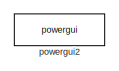
[diagram: root canvas - part 1/4, top right region]
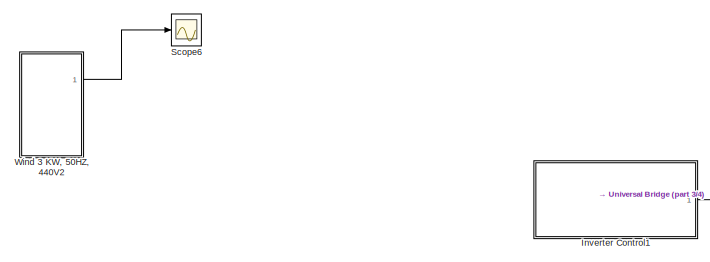
[diagram: root canvas - part 2/4, top left region]
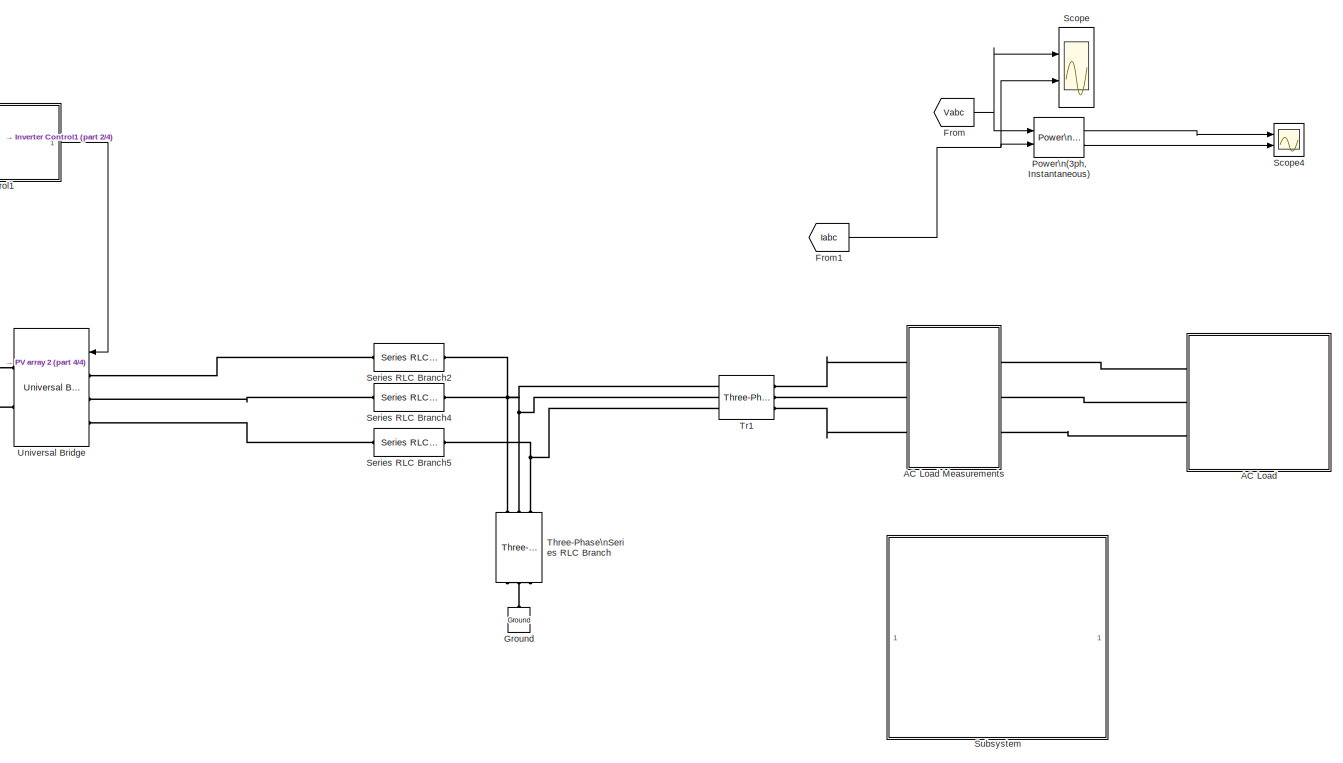
[diagram: root canvas - part 3/4, middle right region]
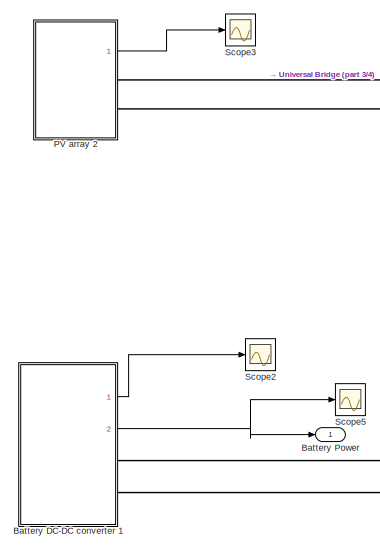
[diagram: root canvas - part 4/4, bottom left region]
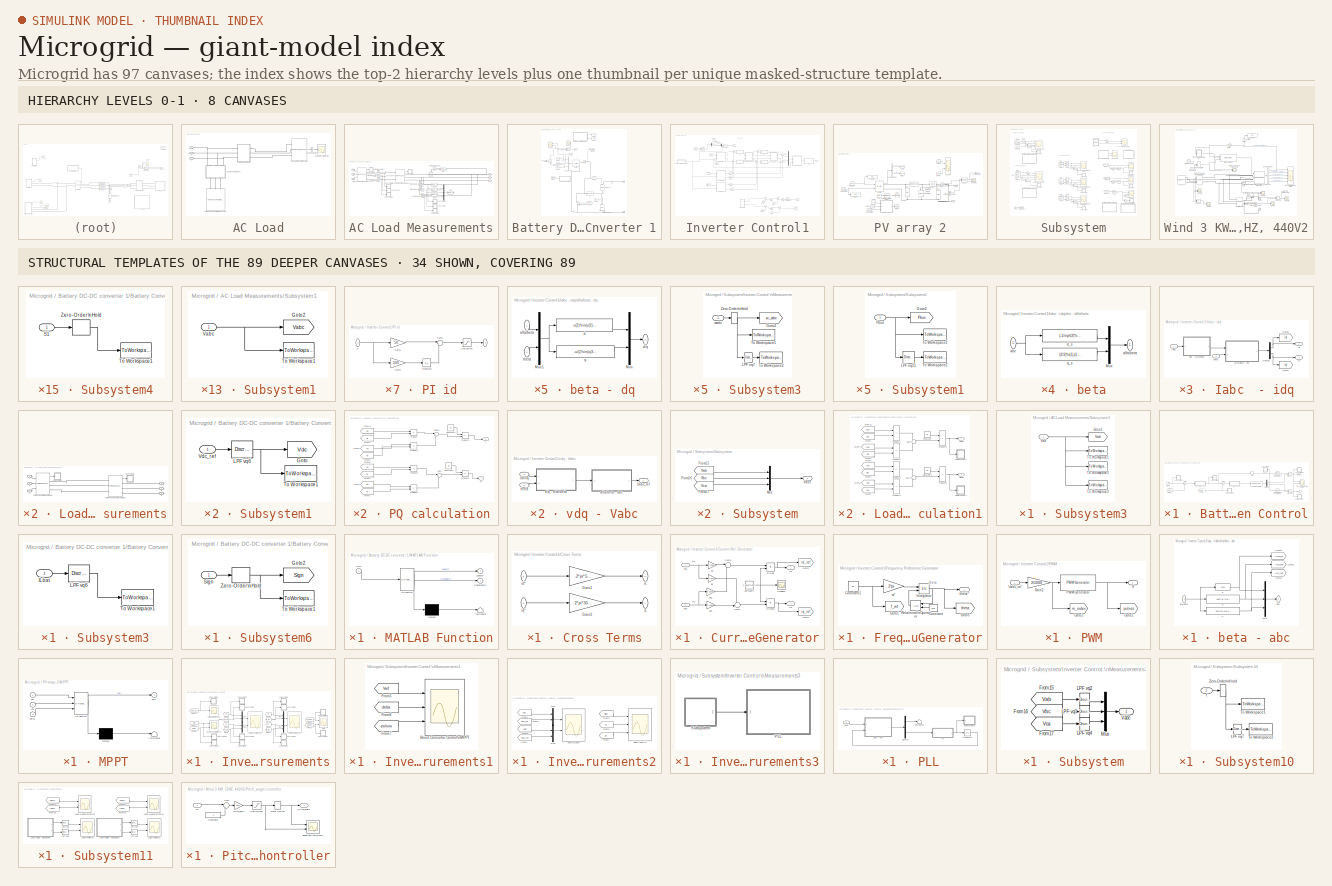
[diagram: thumbnail index - top-2 hierarchy levels (8 canvases) + 34 structural-template representatives of the remaining 89 canvases]
MODEL Microgrid
KIND model
BLOCK [SubSystem] AC Load
  Ports = [0, 0, 0, 0, 0, 3]
  RequestExecContextInheritance = off
  SID = 3802
BLOCK [SubSystem] AC Load Measurements
  Ports = [0, 0, 0, 0, 0, 3, 3]
  RequestExecContextInheritance = off
  SID = 4270
BLOCK [PMIOPort] AC Load Measurements/A
  SID = 4321
  Side = Left
BLOCK [PMIOPort] AC Load Measurements/A 
  Port = 2
  SID = 4322
  Side = Right
BLOCK [PMIOPort] AC Load Measurements/B
  Port = 3
  SID = 4323
  Side = Left
BLOCK [PMIOPort] AC Load Measurements/B 
  Port = 4
  SID = 4324
  Side = Right
BLOCK [PMIOPort] AC Load Measurements/C
  Port = 5
  SID = 4325
  Side = Left
BLOCK [PMIOPort] AC Load Measurements/C 
  Port = 6
  SID = 4326
  Side = Right
BLOCK [Reference] AC Load Measurements/Current Measurement1  REF=powerlib/Measurements/Current Measurement
  OutputType = Complex
  PSBequivalent = 0
  PhasorSimulation = off
  Ports = [0, 1, 0, 0, 0, 1, 1]
  SID = 4271
  SourceBlock = powerlib/Measurements/Current Measurement
  SourceProductBaseCode = PS
  SourceProductName = Simscape Electrical
  SourceType = Current Measurement
BLOCK [Reference] AC Load Measurements/Current Measurement2  REF=powerlib/Measurements/Current Measurement
  OutputType = Complex
  PSBequivalent = 0
  PhasorSimulation = off
  Ports = [0, 1, 0, 0, 0, 1, 1]
  SID = 4272
  SourceBlock = powerlib/Measurements/Current Measurement
  SourceProductBaseCode = PS
  SourceProductName = Simscape Electrical
  SourceType = Current Measurement
BLOCK [Reference] AC Load Measurements/Current Measurement3  REF=powerlib/Measurements/Current Measurement
  OutputType = Complex
  PSBequivalent = 0
  PhasorSimulation = off
  Ports = [0, 1, 0, 0, 0, 1, 1]
  SID = 4273
  SourceBlock = powerlib/Measurements/Current Measurement
  SourceProductBaseCode = PS
  SourceProductName = Simscape Electrical
  SourceType = Current Measurement
BLOCK [Goto] AC Load Measurements/Goto1
  GotoTag = Vload_a
  SID = 4274
  TagVisibility = global
BLOCK [Goto] AC Load Measurements/Goto5
  GotoTag = Vload_ab
  SID = 4275
  TagVisibility = global
BLOCK [Goto] AC Load Measurements/Goto7
  GotoTag = Vload_bc
  SID = 4276
  TagVisibility = global
BLOCK [Goto] AC Load Measurements/Goto8
  GotoTag = Vload_ca
  SID = 4277
  TagVisibility = global
BLOCK [Goto] AC Load Measurements/Goto9
  GotoTag = Vload_pp
  SID = 4278
  TagVisibility = global
BLOCK [Reference] AC Load Measurements/Ground  REF=powerlib/Elements/Ground
  LConnTagsString = a
  Ports = [0, 0, 0, 0, 0, 1]
  SID = 4279
  SourceBlock = powerlib/Elements/Ground
  SourceProductBaseCode = PS
  SourceProductName = Simscape Electrical
  SourceType = Ground
BLOCK [Mux] AC Load Measurements/Mux2
  DisplayOption = bar
  Inputs = 3
  Ports = [3, 1]
  SID = 4280
BLOCK [SubSystem] AC Load Measurements/Subsystem1
  Ports = [1]
  RequestExecContextInheritance = off
  SID = 4281
BLOCK [Goto] AC Load Measurements/Subsystem1/Goto2
  GotoTag = Vabc
  SID = 4283
  TagVisibility = global
BLOCK [ToWorkspace] AC Load Measurements/Subsystem1/To Workspace1
  MaxDataPoints = inf
  Ports = [1]
  SID = 4284
  SampleTime = -1
  VariableName = Vabc
BLOCK [Inport] AC Load Measurements/Subsystem1/Vabc
  IconDisplay = Port number
  SID = 4282
BLOCK [SubSystem] AC Load Measurements/Subsystem2
  Ports = [1]
  RequestExecContextInheritance = off
  SID = 4285
BLOCK [Goto] AC Load Measurements/Subsystem2/Goto2
  GotoTag = Iabc
  SID = 4287
  TagVisibility = global
BLOCK [Inport] AC Load Measurements/Subsystem2/Iabc
  IconDisplay = Port number
  SID = 4286
BLOCK [ToWorkspace] AC Load Measurements/Subsystem2/To Workspace1
  MaxDataPoints = inf
  Ports = [1]
  SID = 4288
  SampleTime = -1
  VariableName = Iabc
BLOCK [SubSystem] AC Load Measurements/Subsystem3
  Ports = [1]
  RequestExecContextInheritance = off
  SID = 4289
BLOCK [Goto] AC Load Measurements/Subsystem3/Goto2
  GotoTag = Vab
  SID = 4291
  TagVisibility = global
BLOCK [ToWorkspace] AC Load Measurements/Subsystem3/To Workspace1
  MaxDataPoints = inf
  Ports = [1]
  SID = 4292
  SampleTime = -1
  VariableName = Vab
BLOCK [ToWorkspace] AC Load Measurements/Subsystem3/To Workspace2
  MaxDataPoints = inf
  Ports = [1]
  SID = 4293
  SampleTime = -1
  SaveFormat = Structure
  VariableName = Vab_s
BLOCK [ToWorkspace] AC Load Measurements/Subsystem3/To Workspace3
  MaxDataPoints = inf
  Ports = [1]
  SID = 4294
  SampleTime = -1
  SaveFormat = Structure With Time
  VariableName = Vab_st
BLOCK [Inport] AC Load Measurements/Subsystem3/Vab
  IconDisplay = Port number
  SID = 4290
BLOCK [SubSystem] AC Load Measurements/Subsystem4
  Ports = [1]
  RequestExecContextInheritance = off
  SID = 4295
BLOCK [Goto] AC Load Measurements/Subsystem4/Goto2
  GotoTag = Vbc
  SID = 4297
  TagVisibility = global
BLOCK [ToWorkspace] AC Load Measurements/Subsystem4/To Workspace1
  MaxDataPoints = inf
  Ports = [1]
  SID = 4298
  SampleTime = -1
  VariableName = Vbc
BLOCK [Inport] AC Load Measurements/Subsystem4/Vbc
  IconDisplay = Port number
  SID = 4296
BLOCK [SubSystem] AC Load Measurements/Subsystem5
  Ports = [1]
  RequestExecContextInheritance = off
  SID = 4299
BLOCK [Goto] AC Load Measurements/Subsystem5/Goto2
  GotoTag = Vca
  SID = 4301
  TagVisibility = global
BLOCK [ToWorkspace] AC Load Measurements/Subsystem5/To Workspace1
  MaxDataPoints = inf
  Ports = [1]
  SID = 4302
  SampleTime = -1
  VariableName = Vca
BLOCK [Inport] AC Load Measurements/Subsystem5/Vca
  IconDisplay = Port number
  SID = 4300
BLOCK [SubSystem] AC Load Measurements/Subsystem6
  Ports = [1]
  RequestExecContextInheritance = off
  SID = 4303
BLOCK [Goto] AC Load Measurements/Subsystem6/Goto2
  GotoTag = Ia
  SID = 4305
  TagVisibility = global
BLOCK [Inport] AC Load Measurements/Subsystem6/Ia
  IconDisplay = Port number
  SID = 4304
BLOCK [ToWorkspace] AC Load Measurements/Subsystem6/To Workspace1
  MaxDataPoints = inf
  Ports = [1]
  SID = 4306
  SampleTime = -1
  VariableName = Ia
BLOCK [SubSystem] AC Load Measurements/Subsystem7
  Ports = [1]
  RequestExecContextInheritance = off
  SID = 4307
BLOCK [Goto] AC Load Measurements/Subsystem7/Goto2
  GotoTag = Ib
  SID = 4309
  TagVisibility = global
BLOCK [Inport] AC Load Measurements/Subsystem7/Ib
  IconDisplay = Port number
  SID = 4308
BLOCK [ToWorkspace] AC Load Measurements/Subsystem7/To Workspace1
  MaxDataPoints = inf
  Ports = [1]
  SID = 4310
  SampleTime = -1
  VariableName = Ib
BLOCK [SubSystem] AC Load Measurements/Subsystem8
  Ports = [1]
  RequestExecContextInheritance = off
  SID = 4311
BLOCK [Goto] AC Load Measurements/Subsystem8/Goto2
  GotoTag = Ic
  SID = 4313
  TagVisibility = global
BLOCK [Inport] AC Load Measurements/Subsystem8/Ic
  IconDisplay = Port number
  SID = 4312
BLOCK [ToWorkspace] AC Load Measurements/Subsystem8/To Workspace1
  MaxDataPoints = inf
  Ports = [1]
  SID = 4314
  SampleTime = -1
  VariableName = Ic
BLOCK [Reference] AC Load Measurements/Three-Phase \nI Measurement  REF=powerlib/Measurements/Three-Phase\nV-I Measurement
  CurrentMeasurement = yes
  Ipu = off
  LabelI = Iabc
  LabelV = Vabc
  OutputType = Complex
  PSBequivalent = 0
  Pbase = 100e6
  PhasorSimulation = off
  Ports = [0, 1, 0, 0, 0, 3, 3]
  SID = 4316
  SetLabelI = off
  SetLabelV = off
  SourceBlock = powerlib/Measurements/Three-Phase\nV-I Measurement
  SourceProductBaseCode = PS
  SourceProductName = Simscape Electrical
  SourceType = Three-Phase VI Measurement
  Vbase = 500e3
  VoltageMeasurement = no
  Vpu = off
  VpuLL = off
BLOCK [Reference] AC Load Measurements/Three-Phase\nV Measurement  REF=powerlib/Measurements/Three-Phase\nV-I Measurement
  CurrentMeasurement = no
  Ipu = off
  LabelI = Iabc
  LabelV = Vabc
  OutputType = Complex
  PSBequivalent = 0
  Pbase = 100e6
  PhasorSimulation = off
  Ports = [0, 1, 0, 0, 0, 3, 3]
  SID = 4315
  SetLabelI = off
  SetLabelV = off
  SourceBlock = powerlib/Measurements/Three-Phase\nV-I Measurement
  SourceProductBaseCode = PS
  SourceProductName = Simscape Electrical
  SourceType = Three-Phase VI Measurement
  Vbase = 500e3
  VoltageMeasurement = phase-to-ground
  Vpu = off
  VpuLL = off
BLOCK [Reference] AC Load Measurements/Voltage Measurement1  REF=powerlib/Measurements/Voltage Measurement
  OutputType = Complex
  PSBequivalent = 0
  PhasorSimulation = off
  Ports = [0, 1, 0, 0, 0, 2]
  SID = 4317
  SourceBlock = powerlib/Measurements/Voltage Measurement
  SourceProductBaseCode = PS
  SourceProductName = Simscape Electrical
  SourceType = Voltage Measurement
BLOCK [Reference] AC Load Measurements/Voltage Measurement2  REF=powerlib/Measurements/Voltage Measurement
  OutputType = Complex
  PSBequivalent = 0
  PhasorSimulation = off
  Ports = [0, 1, 0, 0, 0, 2]
  SID = 4318
  SourceBlock = powerlib/Measurements/Voltage Measurement
  SourceProductBaseCode = PS
  SourceProductName = Simscape Electrical
  SourceType = Voltage Measurement
BLOCK [Reference] AC Load Measurements/Voltage Measurement6  REF=powerlib/Measurements/Voltage Measurement
  OutputType = Complex
  PSBequivalent = 0
  PhasorSimulation = off
  Ports = [0, 1, 0, 0, 0, 2]
  SID = 4319
  SourceBlock = powerlib/Measurements/Voltage Measurement
  SourceProductBaseCode = PS
  SourceProductName = Simscape Electrical
  SourceType = Voltage Measurement
BLOCK [Reference] AC Load Measurements/Voltage Measurement7  REF=powerlib/Measurements/Voltage Measurement
  OutputType = Complex
  PSBequivalent = 0
  PhasorSimulation = off
  Ports = [0, 1, 0, 0, 0, 2]
  SID = 4320
  SourceBlock = powerlib/Measurements/Voltage Measurement
  SourceProductBaseCode = PS
  SourceProductName = Simscape Electrical
  SourceType = Voltage Measurement
BLOCK [Reference] AC Load/3-Phase\nDynamic Load  REF=powerlib/Elements/Three-Phase\nDynamic Load
  ActiveReactivePowers = [500e3 0]
  ExternalControl = off
  LoadFlowParameters = [4 50000000 0 0 25000000]
  MinimumVoltage = 0.7
  NominalVoltage = [ 25e3 50 ]
  NpNq = [1  1]
  Ports = [0, 1, 0, 0, 0, 3]
  PositiveSequence = [1 0]
  SID = 5677
  SourceBlock = powerlib/Elements/Three-Phase\nDynamic Load
  SourceProductBaseCode = PS
  SourceProductName = Simscape Electrical
  SourceType = Three-Phase Dynamic Load
  Tfilter = 1e-4
  TimeConstants = [0  0  0  0]
BLOCK [PMIOPort] AC Load/A
  SID = 3841
  Side = Left
BLOCK [PMIOPort] AC Load/B
  Port = 2
  SID = 3842
  Side = Left
BLOCK [BusSelector] AC Load/Bus\nSelector1
  OutputAsBus = on
  OutputSignals = Active power P (W),Reactive power Q (var)
  Ports = [1, 1]
  SID = 5678
BLOCK [PMIOPort] AC Load/C
  Port = 3
  SID = 3843
  Side = Left
BLOCK [SubSystem] AC Load/Load Measurements
  Ports = [0, 0, 0, 0, 0, 3, 3]
  RequestExecContextInheritance = off
  SID = 3805
BLOCK [PMIOPort] AC Load/Load Measurements/A
  SID = 3816
  Side = Left
BLOCK [PMIOPort] AC Load/Load Measurements/A 
  Port = 2
  SID = 3817
  Side = Right
BLOCK [PMIOPort] AC Load/Load Measurements/B
  Port = 3
  SID = 3818
  Side = Left
BLOCK [PMIOPort] AC Load/Load Measurements/B 
  Port = 4
  SID = 3819
  Side = Right
BLOCK [PMIOPort] AC Load/Load Measurements/C
  Port = 5
  SID = 3820
  Side = Left
BLOCK [PMIOPort] AC Load/Load Measurements/C 
  Port = 6
  SID = 3821
  Side = Right
BLOCK [SubSystem] AC Load/Load Measurements/Subsystem1
  Ports = [1]
  RequestExecContextInheritance = off
  SID = 3806
BLOCK [Goto] AC Load/Load Measurements/Subsystem1/Goto2
  GotoTag = Vabc2
  SID = 3808
  TagVisibility = global
BLOCK [ToWorkspace] AC Load/Load Measurements/Subsystem1/To Workspace1
  MaxDataPoints = inf
  Ports = [1]
  SID = 3809
  SampleTime = -1
  VariableName = Vabc2
BLOCK [Inport] AC Load/Load Measurements/Subsystem1/Vabc
  IconDisplay = Port number
  SID = 3807
BLOCK [SubSystem] AC Load/Load Measurements/Subsystem2
  Ports = [1]
  RequestExecContextInheritance = off
  SID = 3810
BLOCK [Goto] AC Load/Load Measurements/Subsystem2/Goto2
  GotoTag = Iabc2
  SID = 3812
  TagVisibility = global
BLOCK [Inport] AC Load/Load Measurements/Subsystem2/Iabc
  IconDisplay = Port number
  SID = 3811
BLOCK [ToWorkspace] AC Load/Load Measurements/Subsystem2/To Workspace1
  MaxDataPoints = inf
  Ports = [1]
  SID = 3813
  SampleTime = -1
  VariableName = Iabc2
BLOCK [Reference] AC Load/Load Measurements/Three-Phase \nI Measurement  REF=powerlib/Measurements/Three-Phase\nV-I Measurement
  CurrentMeasurement = yes
  Ipu = off
  LabelI = Iabc
  LabelV = Vabc
  OutputType = Complex
  PSBequivalent = 0
  Pbase = 100e6
  PhasorSimulation = off
  Ports = [0, 1, 0, 0, 0, 3, 3]
  SID = 3815
  SetLabelI = off
  SetLabelV = off
  SourceBlock = powerlib/Measurements/Three-Phase\nV-I Measurement
  SourceProductBaseCode = PS
  SourceProductName = Simscape Electrical
  SourceType = Three-Phase VI Measurement
  Vbase = 500e3
  VoltageMeasurement = no
  Vpu = off
  VpuLL = off
BLOCK [Reference] AC Load/Load Measurements/Three-Phase\nV Measurement  REF=powerlib/Measurements/Three-Phase\nV-I Measurement
  CurrentMeasurement = no
  Ipu = off
  LabelI = Iabc
  LabelV = Vabc
  OutputType = Complex
  PSBequivalent = 0
  Pbase = 100e6
  PhasorSimulation = off
  Ports = [0, 1, 0, 0, 0, 3, 3]
  SID = 3814
  SetLabelI = off
  SetLabelV = off
  SourceBlock = powerlib/Measurements/Three-Phase\nV-I Measurement
  SourceProductBaseCode = PS
  SourceProductName = Simscape Electrical
  SourceType = Three-Phase VI Measurement
  Vbase = 500e3
  VoltageMeasurement = phase-to-ground
  Vpu = off
  VpuLL = off
BLOCK [SubSystem] AC Load/Load Measurements1
  Ports = [0, 0, 0, 0, 0, 3, 3]
  RequestExecContextInheritance = off
  SID = 3822
BLOCK [PMIOPort] AC Load/Load Measurements1/A 
  Port = 2
  SID = 3834
  Side = Right
BLOCK [PMIOPort] AC Load/Load Measurements1/B
  Port = 3
  SID = 3835
  Side = Left
BLOCK [PMIOPort] AC Load/Load Measurements1/B 
  Port = 4
  SID = 3836
  Side = Right
BLOCK [PMIOPort] AC Load/Load Measurements1/C
  Port = 5
  SID = 3837
  Side = Left
BLOCK [PMIOPort] AC Load/Load Measurements1/C 
  Port = 6
  SID = 3838
  Side = Right
BLOCK [SubSystem] AC Load/Load Measurements1/Subsystem1
  Ports = [1]
  RequestExecContextInheritance = off
  SID = 3823
BLOCK [Goto] AC Load/Load Measurements1/Subsystem1/Goto2
  GotoTag = Vabc3
  SID = 3825
  TagVisibility = global
BLOCK [ToWorkspace] AC Load/Load Measurements1/Subsystem1/To Workspace1
  MaxDataPoints = inf
  Ports = [1]
  SID = 3826
  SampleTime = -1
  VariableName = Vabc3
BLOCK [Inport] AC Load/Load Measurements1/Subsystem1/Vabc
  IconDisplay = Port number
  SID = 3824
BLOCK [SubSystem] AC Load/Load Measurements1/Subsystem2
  Ports = [1]
  RequestExecContextInheritance = off
  SID = 3827
BLOCK [Goto] AC Load/Load Measurements1/Subsystem2/Goto2
  GotoTag = Iabc3
  SID = 3829
  TagVisibility = global
BLOCK [Inport] AC Load/Load Measurements1/Subsystem2/Iabc3
  IconDisplay = Port number
  SID = 3828
BLOCK [ToWorkspace] AC Load/Load Measurements1/Subsystem2/To Workspace1
  MaxDataPoints = inf
  Ports = [1]
  SID = 3830
  SampleTime = -1
  VariableName = Iabc3
BLOCK [Reference] AC Load/Load Measurements1/Three-Phase \nI Measurement  REF=powerlib/Measurements/Three-Phase\nV-I Measurement
  CurrentMeasurement = yes
  Ipu = off
  LabelI = Iabc
  LabelV = Vabc
  OutputType = Complex
  PSBequivalent = 0
  Pbase = 100e6
  PhasorSimulation = off
  Ports = [0, 1, 0, 0, 0, 3, 3]
  SID = 3832
  SetLabelI = off
  SetLabelV = off
  SourceBlock = powerlib/Measurements/Three-Phase\nV-I Measurement
  SourceProductBaseCode = PS
  SourceProductName = Simscape Electrical
  SourceType = Three-Phase VI Measurement
  Vbase = 500e3
  VoltageMeasurement = no
  Vpu = off
  VpuLL = off
BLOCK [Reference] AC Load/Load Measurements1/Three-Phase\nV Measurement  REF=powerlib/Measurements/Three-Phase\nV-I Measurement
  CurrentMeasurement = no
  Ipu = off
  LabelI = Iabc
  LabelV = Vabc
  OutputType = Complex
  PSBequivalent = 0
  Pbase = 100e6
  PhasorSimulation = off
  Ports = [0, 1, 0, 0, 0, 3, 3]
  SID = 3831
  SetLabelI = off
  SetLabelV = off
  SourceBlock = powerlib/Measurements/Three-Phase\nV-I Measurement
  SourceProductBaseCode = PS
  SourceProductName = Simscape Electrical
  SourceType = Three-Phase VI Measurement
  Vbase = 500e3
  VoltageMeasurement = phase-to-ground
  Vpu = off
  VpuLL = off
BLOCK [PMIOPort] AC Load/Load Measurements1/a
  SID = 3833
  Side = Left
BLOCK [Scope] AC Load/Load Measurements2
  Floating = off
  NumInputPorts = 1
  Ports = [1]
  SID = 5679
  ScopeSpecificationString = Simulink.scopes.TimeScopeBlockCfg('CurrentConfiguration', extmgr.ConfigurationSet(extmgr.Configuration('Core','General UI',true),extmgr.Configuration('Core','Source UI',true),extmgr.Configuration('Sources','WiredSimulink',true,'DataLoggingVariableName','ScopeData1','DataLoggingSaveFormat','StructureWithTime','DataLoggingDecimation','1','DataLoggingDecimateData',true),extmgr.Configuration('Visuals'...<+1693ch>
BLOCK [Reference] AC Load/Three-Phase\nParallel RLC Load1  REF=powerlib/Elements/Three-Phase\nParallel RLC Load
  ActivePower = 500e3
  AttributesFormatString = \\n
  CapacitivePower = 0
  Configuration = Y (grounded)
  InductivePower = 0
  LConnTagsString = A|B|C
  LoadType = constant Z
  Measurements = None
  NominalFrequency = 50
  NominalVoltage = 25e3
  Pabc = [10e3 9e3 11e3]
  Pabcp = [10e3 9e3 11e3]
  Ports = [0, 0, 0, 0, 0, 3]
  QCabc = [100 90 110]
  QCabcp = [100 90 110]
  QLabc = [100 90 110]
  QLabcp = [100 90 110]
  SID = 3840
  SourceBlock = powerlib/Elements/Three-Phase\nParallel RLC Load
  SourceProductBaseCode = PS
  SourceProductName = Simscape Electrical
  SourceType = Three-Phase Parallel RLC Load
  UnbalancedPower = off
  Vabc = [1e3 1e3 1e3]
  Vabcp = [1e3 1e3 1e3]
BLOCK [SubSystem] Battery DC-DC converter 1
  Ports = [0, 2, 0, 0, 0, 0, 2]
  RequestExecContextInheritance = off
  SID = 5181
BLOCK [PMIOPort] Battery DC-DC converter 1/+1
  SID = 5608
  Side = Right
BLOCK [PMIOPort] Battery DC-DC converter 1/-1
  Port = 2
  SID = 5609
  Side = Right
BLOCK [Reference] Battery DC-DC converter 1/Analog\nFilter Design  REF=dsparch4/Analog\nFilter Design
  N = 8
  Ports = [1, 1]
  Rp = 2
  Rs = 40
  SID = 5182
  SourceBlock = dsparch4/Analog\nFilter Design
  SourceProductBaseCode = DS
  SourceProductName = DSP System Toolbox
  SourceType = Analog Filter Design
  Whi = 80
  Wlo = 30
  filttype = Lowpass
  method = Butterworth
BLOCK [Reference] Battery DC-DC converter 1/Battery  REF=electricdrivelib/Extra Sources/Battery
  BatType = Lead-Acid
  Batt_Tr = 30
  Char_age = [2.3478, 3]
  Dis_age = [2.3478, 10]
  Dis_rate = 100
  Dp = 0
  FullV = 272.2039
  FullV2 = 7.1
  MaxQ = 520.8333
  MaxQ2 = 4.8
  MinV = 187.5
  N1 = 1500
  N2 = 10500
  N3 = 1000
  N4 = 1400
  N5 = 950
  Neq0 = 0
  NomQ = 500
  NomT = 20
  NomV = 250
  Normal_OP = 155.1389
  Normal_OP2 = 5.655
  Ports = [0, 1, 0, 0, 0, 2]
  PresetModel = on
  Qeol = 5.4*0.9
  R = 0.005
  Rca = 0.6
  Reol = 0.013333*1.2
  SID = 5183
  SOC = 80
  ShowAgeParam = off
  ShowTempParam = off
  SourceBlock = electricdrivelib/Extra Sources/Battery
  SourceProductBaseCode = PS
  SourceProductName = Simscape Electrical
  SourceType = Battery
  T2 = -30
  Ta1 = 25
  Ta2 = 45
  Tci = 20
  ThermalPreset = no
  Tsim = 1e6
  Units = Time
  current = [6.5 13 32.5]
  expZone = [254.523      1.666667]
  expZone2 = [6.58           1]
  ti = 2000
BLOCK [SubSystem] Battery DC-DC converter 1/Battery Converter\n Control
  Ports = [0, 2]
  RequestExecContextInheritance = off
  SID = 5184
BLOCK [Reference] Battery DC-DC converter 1/Battery Converter\n Control/Compare\nTo Constant  REF=simulink/Logic and Bit\nOperations/Compare\nTo Constant
  OutDataTypeStr = uint8
  Ports = [1, 1]
  SID = 5185
  SourceBlock = simulink/Logic and Bit\nOperations/Compare\nTo Constant
  SourceProductBaseCode = SL
  SourceProductName = Simulink
  SourceType = Compare To Constant
  ZeroCross = on
  const = 1
  relop = ==
BLOCK [Reference] Battery DC-DC converter 1/Battery Converter\n Control/Compare\nTo Constant1  REF=simulink/Logic and Bit\nOperations/Compare\nTo Constant
  OutDataTypeStr = uint8
  Ports = [1, 1]
  SID = 5186
  SourceBlock = simulink/Logic and Bit\nOperations/Compare\nTo Constant
  SourceProductBaseCode = SL
  SourceProductName = Simulink
  SourceType = Compare To Constant
  ZeroCross = on
  const = -1
  relop = ==
BLOCK [Scope] Battery DC-DC converter 1/Battery Converter\n Control/DC Bus Measurements4
  Floating = off
  NumInputPorts = 2
  Ports = [2]
  SID = 5187
  ScopeSpecificationString = C++SS(StrPVP('Location','[6, 48, 1372, 727]'),StrPVP('Open','off'),StrPVP('ZoomMode','xonly'),MxPVP('AxesTitles',53,'struct(''axes1'',''Phase to Ground Load Voltages, Vabc (V)'',''axes2'',''Load Currents, Iabc (A)'')'),MxPVP('ScopeGraphics',56,'struct(''FigureColor'',''[0.5 0.5 0.5]'',''AxesColor'',''[0 0 0]'',''AxesTickColor'',''[1 1 1]'',''LineColors'',''[1 1 0;1 0 1;0 1 1;1 0 0;0 1 0;0 0 1]'','...<+436ch>
BLOCK [Demux] Battery DC-DC converter 1/Battery Converter\n Control/Demux
  DisplayOption = bar
  Outputs = 2
  Ports = [1, 2]
  SID = 5188
BLOCK [From] Battery DC-DC converter 1/Battery Converter\n Control/From1
  GotoTag = Vdc
  SID = 5189
  TagVisibility = global
BLOCK [From] Battery DC-DC converter 1/Battery Converter\n Control/From2
  GotoTag = ILbat
  SID = 5190
  TagVisibility = global
BLOCK [SubSystem] Battery DC-DC converter 1/Battery Converter\n Control/PI 1
  Ports = [1, 1]
  RequestExecContextInheritance = off
  SID = 5191
BLOCK [Outport] Battery DC-DC converter 1/Battery Converter\n Control/PI 1/ 
  IconDisplay = Port number
  SID = 5198
BLOCK [Gain] Battery DC-DC converter 1/Battery Converter\n Control/PI 1/Gain1
  Gain = 0.65
  OutDataTypeStr = Inherit: Inherit via internal rule
  ParamDataTypeStr = Inherit: Inherit via internal rule
  SID = 5193
  SaturateOnIntegerOverflow = off
BLOCK [Gain] Battery DC-DC converter 1/Battery Converter\n Control/PI 1/Gain2
  Gain = 150
  OutDataTypeStr = Inherit: Inherit via internal rule
  ParamDataTypeStr = Inherit: Inherit via internal rule
  SID = 5194
  SaturateOnIntegerOverflow = off
BLOCK [Integrator] Battery DC-DC converter 1/Battery Converter\n Control/PI 1/Integrator
  Ports = [1, 1]
  SID = 5195
BLOCK [Saturate] Battery DC-DC converter 1/Battery Converter\n Control/PI 1/Saturation
  InputPortMap = u0
  LowerLimit = -100
  Ports = [1, 1]
  SID = 5196
  UpperLimit = 500
BLOCK [Sum] Battery DC-DC converter 1/Battery Converter\n Control/PI 1/Sum1
  IconShape = round
  InputSameDT = off
  Inputs = |++
  OutDataTypeStr = Inherit: Inherit via internal rule
  Ports = [2, 1]
  SID = 5197
  SaturateOnIntegerOverflow = off
BLOCK [Inport] Battery DC-DC converter 1/Battery Converter\n Control/PI 1/e
  IconDisplay = Port number
  SID = 5192
BLOCK [SubSystem] Battery DC-DC converter 1/Battery Converter\n Control/PI 2
  Ports = [1, 1]
  RequestExecContextInheritance = off
  SID = 5199
BLOCK [Outport] Battery DC-DC converter 1/Battery Converter\n Control/PI 2/ 
  IconDisplay = Port number
  SID = 5206
BLOCK [Gain] Battery DC-DC converter 1/Battery Converter\n Control/PI 2/Gain1
  OutDataTypeStr = Inherit: Inherit via internal rule
  ParamDataTypeStr = Inherit: Inherit via internal rule
  SID = 5201
  SaturateOnIntegerOverflow = off
BLOCK [Gain] Battery DC-DC converter 1/Battery Converter\n Control/PI 2/Gain2
  OutDataTypeStr = Inherit: Inherit via internal rule
  ParamDataTypeStr = Inherit: Inherit via internal rule
  SID = 5202
  SaturateOnIntegerOverflow = off
BLOCK [Integrator] Battery DC-DC converter 1/Battery Converter\n Control/PI 2/Integrator
  Ports = [1, 1]
  SID = 5203
BLOCK [Saturate] Battery DC-DC converter 1/Battery Converter\n Control/PI 2/Saturation
  InputPortMap = u0
  LowerLimit = -1
  Ports = [1, 1]
  SID = 5204
  UpperLimit = 1
BLOCK [Sum] Battery DC-DC converter 1/Battery Converter\n Control/PI 2/Sum1
  IconShape = round
  InputSameDT = off
  Inputs = |++
  OutDataTypeStr = Inherit: Inherit via internal rule
  Ports = [2, 1]
  SID = 5205
  SaturateOnIntegerOverflow = off
BLOCK [Inport] Battery DC-DC converter 1/Battery Converter\n Control/PI 2/e
  IconDisplay = Port number
  SID = 5200
BLOCK [Reference] Battery DC-DC converter 1/Battery Converter\n Control/PWM Generator2  REF=powerlib_extras/Control \nBlocks/PWM Generator
  Fc = 10000
  Freq = 0
  GeneratorMode = 1-arm  bridge (2 pulses)
  Internal = off
  Phase = 0
  Ports = [1, 1]
  SID = 5207
  SourceBlock = powerlib_extras/Control \nBlocks/PWM Generator
  SourceProductBaseCode = PS
  SourceProductName = Simscape Electrical
  SourceType = PWM Generator
  mIndex = 0.2
BLOCK [Product] Battery DC-DC converter 1/Battery Converter\n Control/Product
  InputSameDT = off
  OutDataTypeStr = Inherit: Inherit via internal rule
  Ports = [2, 1]
  SID = 5208
  SaturateOnIntegerOverflow = off
BLOCK [Product] Battery DC-DC converter 1/Battery Converter\n Control/Product1
  InputSameDT = off
  OutDataTypeStr = Inherit: Inherit via internal rule
  Ports = [2, 1]
  SID = 5209
  SaturateOnIntegerOverflow = off
BLOCK [Outport] Battery DC-DC converter 1/Battery Converter\n Control/S1
  IconDisplay = Port number
  SID = 5241
BLOCK [Outport] Battery DC-DC converter 1/Battery Converter\n Control/S2
  IconDisplay = Port number
  Port = 2
  SID = 5242
BLOCK [Signum] Battery DC-DC converter 1/Battery Converter\n Control/Sign
  SID = 5210
  SampleTime = 5e-6
BLOCK [Step] Battery DC-DC converter 1/Battery Converter\n Control/Step1
  After = 1000
  SID = 5211
  SampleTime = 0
  Time = 0
BLOCK [SubSystem] Battery DC-DC converter 1/Battery Converter\n Control/Subsystem1
  Ports = [1]
  RequestExecContextInheritance = off
  SID = 5212
BLOCK [Goto] Battery DC-DC converter 1/Battery Converter\n Control/Subsystem1/Goto
  GotoTag = Vdc
  SID = 5214
BLOCK [Reference] Battery DC-DC converter 1/Battery Converter\n Control/Subsystem1/LPF vq6  REF=powerlib_extras/Discrete \nControl Blocks/Discrete\n1st-Order\nFilter
  FilterType = Lowpass
  Initialize = off
  PlotResponse = off
  Ports = [1, 1]
  SID = 5215
  SourceBlock = powerlib_extras/Discrete \nControl Blocks/Discrete\n1st-Order\nFilter
  SourceProductBaseCode = PS
  SourceProductName = Simscape Electrical
  SourceType = Discrete 1st-Order Filter
  Tc = 10e-3
  Ts = Tss
  Vac_Init = [0.8 -25 50]
  Vdc_Init = 0
  param1 = [1 100 0.1]
BLOCK [ToWorkspace] Battery DC-DC converter 1/Battery Converter\n Control/Subsystem1/To Workspace1
  MaxDataPoints = inf
  Ports = [1]
  SID = 5216
  SampleTime = -1
  VariableName = Vdc_ref
BLOCK [Inport] Battery DC-DC converter 1/Battery Converter\n Control/Subsystem1/Vdc_ref
  IconDisplay = Port number
  SID = 5213
BLOCK [SubSystem] Battery DC-DC converter 1/Battery Converter\n Control/Subsystem2
  Ports = [1]
  RequestExecContextInheritance = off
  SID = 5217
BLOCK [Goto] Battery DC-DC converter 1/Battery Converter\n Control/Subsystem2/Goto2
  GotoTag = Ibat_ref
  SID = 5219
  TagVisibility = global
BLOCK [Inport] Battery DC-DC converter 1/Battery Converter\n Control/Subsystem2/Ibat_ref
  IconDisplay = Port number
  SID = 5218
BLOCK [Reference] Battery DC-DC converter 1/Battery Converter\n Control/Subsystem2/LPF vq6  REF=powerlib_extras/Discrete \nControl Blocks/Discrete\n1st-Order\nFilter
  FilterType = Lowpass
  Initialize = off
  PlotResponse = off
  Ports = [1, 1]
  SID = 5220
  SourceBlock = powerlib_extras/Discrete \nControl Blocks/Discrete\n1st-Order\nFilter
  SourceProductBaseCode = PS
  SourceProductName = Simscape Electrical
  SourceType = Discrete 1st-Order Filter
  Tc = 10e-3
  Ts = Tss
  Vac_Init = [0.8 -25 50]
  Vdc_Init = 0
  param1 = [1 100 0.1]
BLOCK [ToWorkspace] Battery DC-DC converter 1/Battery Converter\n Control/Subsystem2/To Workspace1
  MaxDataPoints = inf
  Ports = [1]
  SID = 5221
  SampleTime = -1
  VariableName = Ibat_ref
BLOCK [SubSystem] Battery DC-DC converter 1/Battery Converter\n Control/Subsystem3
  Ports = [1]
  RequestExecContextInheritance = off
  SID = 5222
BLOCK [Inport] Battery DC-DC converter 1/Battery Converter\n Control/Subsystem3/ILbat
  IconDisplay = Port number
  SID = 5223
BLOCK [Reference] Battery DC-DC converter 1/Battery Converter\n Control/Subsystem3/LPF vq6  REF=powerlib_extras/Discrete \nControl Blocks/Discrete\n1st-Order\nFilter
  FilterType = Lowpass
  Initialize = off
  PlotResponse = off
  Ports = [1, 1]
  SID = 5224
  SourceBlock = powerlib_extras/Discrete \nControl Blocks/Discrete\n1st-Order\nFilter
  SourceProductBaseCode = PS
  SourceProductName = Simscape Electrical
  SourceType = Discrete 1st-Order Filter
  Tc = 10e-3
  Ts = Tss
  Vac_Init = [0.8 -25 50]
  Vdc_Init = 0
  param1 = [1 100 0.1]
BLOCK [ToWorkspace] Battery DC-DC converter 1/Battery Converter\n Control/Subsystem3/To Workspace1
  MaxDataPoints = inf
  Ports = [1]
  SID = 5225
  SampleTime = -1
  VariableName = ILbat
BLOCK [SubSystem] Battery DC-DC converter 1/Battery Converter\n Control/Subsystem4
  Ports = [1]
  RequestExecContextInheritance = off
  SID = 5226
BLOCK [Inport] Battery DC-DC converter 1/Battery Converter\n Control/Subsystem4/S1
  IconDisplay = Port number
  SID = 5227
BLOCK [ToWorkspace] Battery DC-DC converter 1/Battery Converter\n Control/Subsystem4/To Workspace1
  MaxDataPoints = inf
  Ports = [1]
  SID = 5228
  SampleTime = -1
  VariableName = S1
BLOCK [ZeroOrderHold] Battery DC-DC converter 1/Battery Converter\n Control/Subsystem4/Zero-Order\nHold
  SID = 5229
  SampleTime = Tss
BLOCK [SubSystem] Battery DC-DC converter 1/Battery Converter\n Control/Subsystem5
  Ports = [1]
  RequestExecContextInheritance = off
  SID = 5230
BLOCK [Inport] Battery DC-DC converter 1/Battery Converter\n Control/Subsystem5/S2
  IconDisplay = Port number
  SID = 5231
BLOCK [ToWorkspace] Battery DC-DC converter 1/Battery Converter\n Control/Subsystem5/To Workspace1
  MaxDataPoints = inf
  Ports = [1]
  SID = 5232
  SampleTime = -1
  VariableName = S2
BLOCK [ZeroOrderHold] Battery DC-DC converter 1/Battery Converter\n Control/Subsystem5/Zero-Order\nHold
  SID = 5233
  SampleTime = Tss
BLOCK [SubSystem] Battery DC-DC converter 1/Battery Converter\n Control/Subsystem6
  Ports = [1]
  RequestExecContextInheritance = off
  SID = 5234
BLOCK [Goto] Battery DC-DC converter 1/Battery Converter\n Control/Subsystem6/Goto2
  GotoTag = Sign
  SID = 5236
  TagVisibility = global
BLOCK [Inport] Battery DC-DC converter 1/Battery Converter\n Control/Subsystem6/Sign
  IconDisplay = Port number
  SID = 5235
BLOCK [ToWorkspace] Battery DC-DC converter 1/Battery Converter\n Control/Subsystem6/To Workspace1
  MaxDataPoints = inf
  Ports = [1]
  SID = 5237
  SampleTime = -1
  VariableName = Sign
BLOCK [ZeroOrderHold] Battery DC-DC converter 1/Battery Converter\n Control/Subsystem6/Zero-Order\nHold
  SID = 5238
  SampleTime = Tss
BLOCK [Sum] Battery DC-DC converter 1/Battery Converter\n Control/Sum1
  IconShape = round
  InputSameDT = off
  Inputs = |+-
  OutDataTypeStr = Inherit: Inherit via internal rule
  Ports = [2, 1]
  SID = 5239
  SaturateOnIntegerOverflow = off
BLOCK [Sum] Battery DC-DC converter 1/Battery Converter\n Control/Sum3
  IconShape = round
  InputSameDT = off
  Inputs = |+-
  OutDataTypeStr = Inherit: Inherit via internal rule
  Ports = [2, 1]
  SID = 5240
  SaturateOnIntegerOverflow = off
BLOCK [Outport] Battery DC-DC converter 1/Bp
  IconDisplay = Port number
  Port = 2
  SID = 5268
BLOCK [BusSelector] Battery DC-DC converter 1/Bus\nSelector
  OutputAsBus = off
  OutputSignals = Voltage (V),SOC (%),Current (A)
  Ports = [1, 3]
  SID = 5243
BLOCK [From] Battery DC-DC converter 1/From
  GotoTag = S1
  SID = 5246
  TagVisibility = global
BLOCK [From] Battery DC-DC converter 1/From1
  GotoTag = S2
  SID = 5247
  TagVisibility = global
BLOCK [From] Battery DC-DC converter 1/From2
  GotoTag = SOC
  SID = 5248
BLOCK [Goto] Battery DC-DC converter 1/Goto
  GotoTag = VB
  SID = 5249
BLOCK [Goto] Battery DC-DC converter 1/Goto1
  GotoTag = SOC
  SID = 5250
BLOCK [Goto] Battery DC-DC converter 1/Goto2
  GotoTag = IB
  SID = 5251
BLOCK [Goto] Battery DC-DC converter 1/Goto3
  GotoTag = S1
  SID = 5252
  TagVisibility = global
BLOCK [Goto] Battery DC-DC converter 1/Goto4
  GotoTag = S2
  SID = 5253
  TagVisibility = global
BLOCK [Goto] Battery DC-DC converter 1/Goto5
  GotoTag = ILbat
  SID = 5254
  TagVisibility = global
BLOCK [Goto] Battery DC-DC converter 1/Goto6
  GotoTag = Vdc
  SID = 5255
  TagVisibility = global
BLOCK [Reference] Battery DC-DC converter 1/IGBT//Diode  REF=powerlib/Power\nElectronics/IGBT//Diode
  Cs = inf
  Measurements = on
  Ports = [1, 1, 0, 0, 0, 1, 1]
  Ron = 1e-3
  Rs = 1e5
  SID = 5256
  SourceBlock = powerlib/Power\nElectronics/IGBT//Diode
  SourceProductBaseCode = PS
  SourceProductName = Simscape Electrical
  SourceType = IGBT/Diode
BLOCK [Reference] Battery DC-DC converter 1/IGBT//Diode1  REF=powerlib/Power\nElectronics/IGBT//Diode
  Cs = inf
  Measurements = on
  Ports = [1, 1, 0, 0, 0, 1, 1]
  Ron = 1e-3
  Rs = 1e5
  SID = 5257
  SourceBlock = powerlib/Power\nElectronics/IGBT//Diode
  SourceProductBaseCode = PS
  SourceProductName = Simscape Electrical
  SourceType = IGBT/Diode
BLOCK [Reference] Battery DC-DC converter 1/IL6  REF=powerlib/Measurements/Current Measurement
  OutputType = Complex
  PSBequivalent = 0
  PhasorSimulation = off
  Ports = [0, 1, 0, 0, 0, 1, 1]
  SID = 5258
  SourceBlock = powerlib/Measurements/Current Measurement
  SourceProductBaseCode = PS
  SourceProductName = Simscape Electrical
  SourceType = Current Measurement
  UserDataPersistent = on
BLOCK [Reference] Battery DC-DC converter 1/L  REF=powerlib/Elements/Series RLC Branch
  BranchType = L
  Capacitance = 1e-6
  Inductance = 1e-3
  InitialCurrent = 0
  InitialVoltage = 0
  LConnTagsString = __new0
  Measurements = None
  Ports = [0, 0, 0, 0, 0, 1, 1]
  RConnTagsString = __new0
  Resistance = 0.1
  SID = 5259
  SetiL0 = off
  Setx0 = off
  SourceBlock = powerlib/Elements/Series RLC Branch
  SourceProductBaseCode = PS
  SourceProductName = Simscape Electrical
  SourceType = Series RLC Branch
BLOCK [SubSystem] Battery DC-DC converter 1/MATLAB Function
  ErrorFcn = Stateflow.Translate.translate
  PermitHierarchicalResolution = ExplicitOnly
  Ports = [1, 2]
  RequestExecContextInheritance = off
  SFBlockType = MATLAB Function
  SID = 5260
  TreatAsAtomicUnit = on
BLOCK [Demux] Battery DC-DC converter 1/MATLAB Function/ Demux 
  Outputs = 1
  Ports = [1, 1]
  SID = 5260::28
BLOCK [S-Function] Battery DC-DC converter 1/MATLAB Function/ SFunction 
  EnableBusSupport = on
  FunctionName = sf_sfun
  PortCounts = [1 3]
  Ports = [1, 3]
  SFcnIsStateOwnerBlock = off
  SFunctionDeploymentMode = off
  SID = 5260::27
  Tag = Stateflow S-Function Microgrid 3
BLOCK [Terminator] Battery DC-DC converter 1/MATLAB Function/ Terminator 
  SID = 5260::29
BLOCK [Outport] Battery DC-DC converter 1/MATLAB Function/ChargingOn
  IconDisplay = Port number
  Port = 2
  SID = 5260::23
BLOCK [Outport] Battery DC-DC converter 1/MATLAB Function/LoadOn
  IconDisplay = Port number
  SID = 5260::5
BLOCK [Inport] Battery DC-DC converter 1/MATLAB Function/SOC
  IconDisplay = Port number
  SID = 5260::1
BLOCK [Product] Battery DC-DC converter 1/Product
  InputSameDT = off
  OutDataTypeStr = Inherit: Inherit via internal rule
  Ports = [2, 1]
  RndMeth = Floor
  SID = 5261
  SaturateOnIntegerOverflow = off
BLOCK [Outport] Battery DC-DC converter 1/SOC
  IconDisplay = Port number
  SID = 5267
BLOCK [Scope] Battery DC-DC converter 1/Scope1
  Floating = off
  NumInputPorts = 1
  Ports = [1]
  SID = 5262
  ScopeSpecificationString = Simulink.scopes.TimeScopeBlockCfg('CurrentConfiguration', extmgr.ConfigurationSet(extmgr.Configuration('Core','General UI',true),extmgr.Configuration('Core','Source UI',true),extmgr.Configuration('Sources','WiredSimulink',true,'DataLoggingVariableName','ScopeData1'),extmgr.Configuration('Visuals','Time Domain',true,'SerializedDisplays',{struct('MinYLimReal','-2.90985','MaxYLimReal','26.18867','YLa...<+2734ch>
BLOCK [Scope] Battery DC-DC converter 1/Scope5
  Floating = off
  NumInputPorts = 2
  Ports = [2]
  SID = 5263
  ScopeSpecificationString = Simulink.scopes.TimeScopeBlockCfg('CurrentConfiguration', extmgr.ConfigurationSet(extmgr.Configuration('Core','General UI',true),extmgr.Configuration('Core','Source UI',true),extmgr.Configuration('Sources','WiredSimulink',true,'DataLoggingVariableName','ScopeData2'),extmgr.Configuration('Visuals','Time Domain',true,'SerializedDisplays',{struct('MinYLimReal','286.967','MaxYLimReal','292.65024','YLa...<+2763ch>
BLOCK [Reference] Battery DC-DC converter 1/Voltage Measurement  REF=powerlib/Measurements/Voltage Measurement
  OutputType = Complex
  PSBequivalent = 0
  PhasorSimulation = off
  Ports = [0, 1, 0, 0, 0, 2]
  SID = 5264
  SourceBlock = powerlib/Measurements/Voltage Measurement
  SourceProductBaseCode = PS
  SourceProductName = Simscape Electrical
  SourceType = Voltage Measurement
  UserDataPersistent = on
BLOCK [Outport] Battery Power
  IconDisplay = Port number
  SID = 1497
BLOCK [From] From
  GotoTag = Vabc
  SID = 3725
  TagVisibility = global
BLOCK [From] From1
  GotoTag = Iabc
  SID = 3726
  TagVisibility = global
BLOCK [Reference] Ground  REF=powerlib/Elements/Ground
  LConnTagsString = a
  Ports = [0, 0, 0, 0, 0, 1]
  SID = 5310
  SourceBlock = powerlib/Elements/Ground
  SourceProductBaseCode = PS
  SourceProductName = Simscape Electrical
  SourceType = Ground
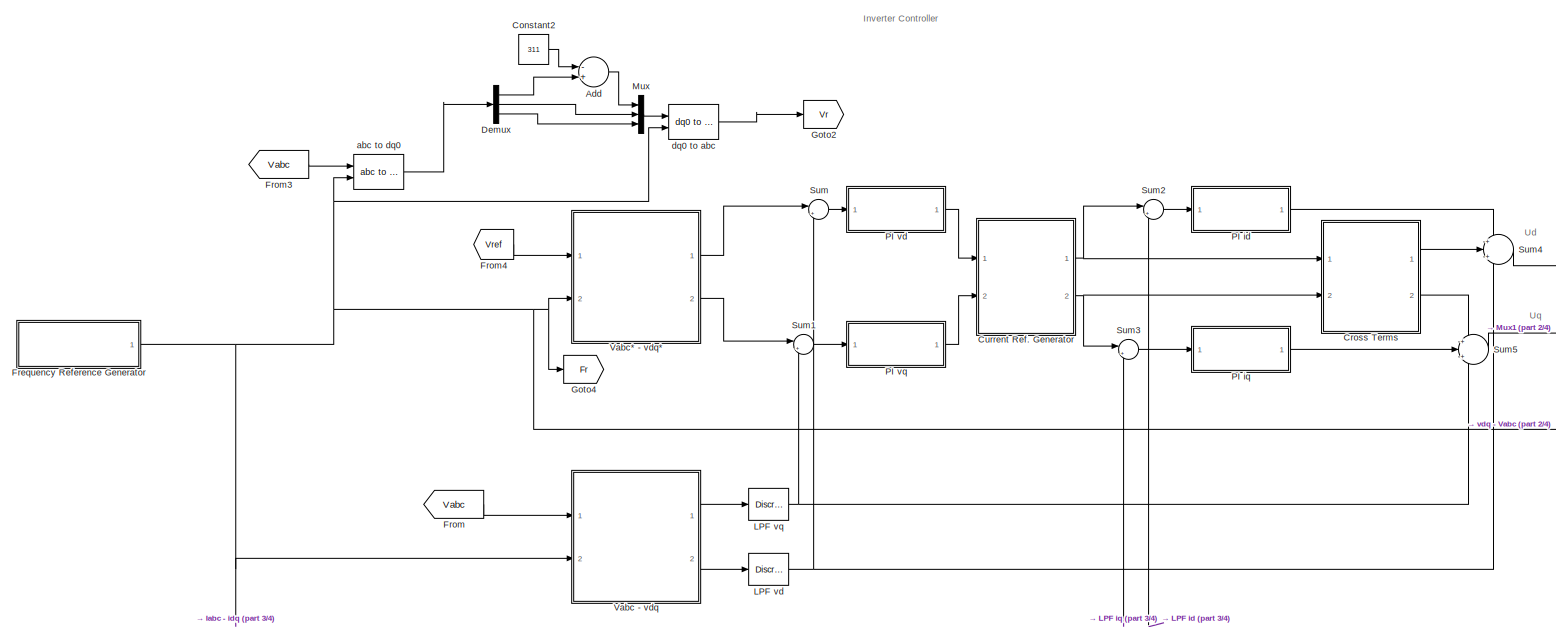
[diagram: Inverter Control1 - part 1/4, full width, top band]
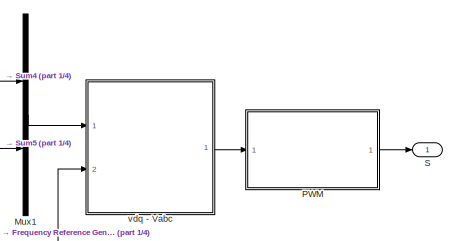
[diagram: Inverter Control1 - part 2/4, top right region]
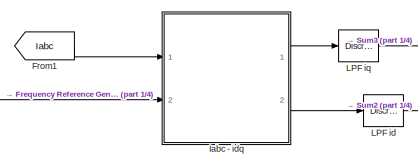
[diagram: Inverter Control1 - part 3/4, middle left region]
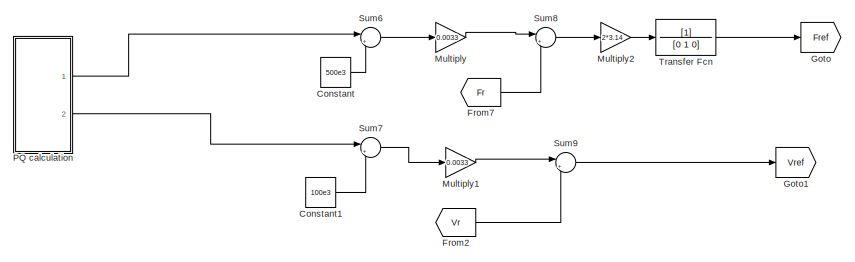
[diagram: Inverter Control1 - part 4/4, bottom center region]
BLOCK [SubSystem] Inverter Control1
  Ports = [0, 1]
  RequestExecContextInheritance = off
  SID = 4643
BLOCK [Sum] Inverter Control1/Add
  InputSameDT = off
  Inputs = -+
  OutDataTypeStr = Inherit: Inherit via internal rule
  Ports = [2, 1]
  SID = 4644
  SaturateOnIntegerOverflow = off
BLOCK [Constant] Inverter Control1/Constant
  SID = 4645
  Value = 500e3
BLOCK [Constant] Inverter Control1/Constant1
  SID = 4646
  Value = 100e3
BLOCK [Constant] Inverter Control1/Constant2
  SID = 4647
  Value = 311
BLOCK [SubSystem] Inverter Control1/Cross Terms
  Ports = [2, 2]
  RequestExecContextInheritance = off
  SID = 4648
BLOCK [Outport] Inverter Control1/Cross Terms/ d
  IconDisplay = Port number
  Port = 2
  SID = 4654
BLOCK [Outport] Inverter Control1/Cross Terms/ q
  IconDisplay = Port number
  SID = 4653
BLOCK [Gain] Inverter Control1/Cross Terms/Gain1
  Gain = -2*pi*50*3e-3
  OutDataTypeStr = Inherit: Inherit via internal rule
  ParamDataTypeStr = Inherit: Inherit via internal rule
  SID = 4651
  SaturateOnIntegerOverflow = off
BLOCK [Gain] Inverter Control1/Cross Terms/Gain2
  Gain = 2*pi*50*3e-3
  OutDataTypeStr = Inherit: Inherit via internal rule
  ParamDataTypeStr = Inherit: Inherit via internal rule
  SID = 4652
  SaturateOnIntegerOverflow = off
BLOCK [Inport] Inverter Control1/Cross Terms/id*
  IconDisplay = Port number
  SID = 4649
BLOCK [Inport] Inverter Control1/Cross Terms/iq*
  IconDisplay = Port number
  Port = 2
  SID = 4650
BLOCK [SubSystem] Inverter Control1/Current Ref. Generator
  Ports = [2, 2]
  RequestExecContextInheritance = off
  SID = 4655
BLOCK [Product] Inverter Control1/Current Ref. Generator/Divide
  InputSameDT = off
  Inputs = */
  OutDataTypeStr = Inherit: Inherit via internal rule
  Ports = [2, 1]
  RndMeth = Floor
  SID = 4658
  SaturateOnIntegerOverflow = off
BLOCK [Product] Inverter Control1/Current Ref. Generator/Divide1
  InputSameDT = off
  Inputs = /*
  OutDataTypeStr = Inherit: Inherit via internal rule
  Ports = [2, 1]
  RndMeth = Floor
  SID = 4659
  SaturateOnIntegerOverflow = off
BLOCK [Goto] Inverter Control1/Current Ref. Generator/Goto1
  GotoTag = id_ref
  SID = 4660
  TagVisibility = global
BLOCK [Goto] Inverter Control1/Current Ref. Generator/Goto4
  GotoTag = iq_ref
  SID = 4661
  TagVisibility = global
BLOCK [Scope] Inverter Control1/Current Ref. Generator/Scope24
  Floating = off
  NumInputPorts = 1
  Ports = [1]
  SID = 4662
  ScopeSpecificationString = C++SS(StrPVP('Location','[463, 149, 1247, 945]'),StrPVP('Open','off'),StrPVP('ZoomMode','yonly'),MxPVP('AxesTitles',53,'struct(''axes1'',''Icons / I   inversor'')'),StrPVP('ShowLegends','off'),StrPVP('TimeRange','0.09'),StrPVP('YMin','0.699626'),StrPVP('YMax','0.699626'),StrPVP('SaveName','ScopeData53'),StrPVP('DataFormat','StructureWithTime'),StrPVP('LimitDataPoints','off'),StrPVP('BlockParamSamp...<+76ch>
BLOCK [Sum] Inverter Control1/Current Ref. Generator/Sum1
  IconShape = round
  InputSameDT = off
  Inputs = -+|
  OutDataTypeStr = Inherit: Inherit via internal rule
  Ports = [2, 1]
  SID = 4663
  SaturateOnIntegerOverflow = off
BLOCK [Sum] Inverter Control1/Current Ref. Generator/Sum3
  IconShape = round
  InputSameDT = off
  Inputs = |++
  OutDataTypeStr = Inherit: Inherit via internal rule
  Ports = [2, 1]
  SID = 4664
  SaturateOnIntegerOverflow = off
BLOCK [Gain] Inverter Control1/Current Ref. Generator/Zd
  Gain = 0.4559
  OutDataTypeStr = Inherit: Inherit via internal rule
  ParamDataTypeStr = Inherit: Inherit via internal rule
  SID = 4665
  SaturateOnIntegerOverflow = off
BLOCK [Gain] Inverter Control1/Current Ref. Generator/Zd1
  Gain = 0.4559
  OutDataTypeStr = Inherit: Inherit via internal rule
  ParamDataTypeStr = Inherit: Inherit via internal rule
  SID = 4666
  SaturateOnIntegerOverflow = off
BLOCK [Constant] Inverter Control1/Current Ref. Generator/Zd^2+Zq^2
  SID = 4667
  Value = 0.4559^2+0.1824^2
BLOCK [Gain] Inverter Control1/Current Ref. Generator/Zq
  Gain = 0.1824
  OutDataTypeStr = Inherit: Inherit via internal rule
  ParamDataTypeStr = Inherit: Inherit via internal rule
  SID = 4668
  SaturateOnIntegerOverflow = off
BLOCK [Gain] Inverter Control1/Current Ref. Generator/Zq1
  Gain = 0.1824
  OutDataTypeStr = Inherit: Inherit via internal rule
  ParamDataTypeStr = Inherit: Inherit via internal rule
  SID = 4669
  SaturateOnIntegerOverflow = off
BLOCK [Inport] Inverter Control1/Current Ref. Generator/evd
  IconDisplay = Port number
  SID = 4656
BLOCK [Inport] Inverter Control1/Current Ref. Generator/evq
  IconDisplay = Port number
  Port = 2
  SID = 4657
BLOCK [Outport] Inverter Control1/Current Ref. Generator/id*
  IconDisplay = Port number
  SID = 4670
BLOCK [Outport] Inverter Control1/Current Ref. Generator/iq*
  IconDisplay = Port number
  Port = 2
  SID = 4671
BLOCK [Demux] Inverter Control1/Demux
  DisplayOption = bar
  Outputs = 3
  Ports = [1, 3]
  SID = 4674
BLOCK [SubSystem] Inverter Control1/Frequency Reference Generator
  Ports = [0, 1]
  RequestExecContextInheritance = off
  SID = 4675
BLOCK [Constant] Inverter Control1/Frequency Reference Generator/Constant
  SID = 4677
  Value = 2*pi
BLOCK [Constant] Inverter Control1/Frequency Reference Generator/Constant1
  SID = 5077
  Value = 50
BLOCK [Goto] Inverter Control1/Frequency Reference Generator/Goto1
  GotoTag = f_ref
  SID = 4678
  TagVisibility = global
BLOCK [Goto] Inverter Control1/Frequency Reference Generator/Goto3
  GotoTag = theta
  SID = 4679
  TagVisibility = global
BLOCK [Integrator] Inverter Control1/Frequency Reference Generator/Integrator
  ExternalReset = rising
  Ports = [2, 1]
  SID = 4680
BLOCK [RelationalOperator] Inverter Control1/Frequency Reference Generator/Relational\nOperator
  InputSameDT = off
  OutDataTypeStr = boolean
  Ports = [2, 1]
  SID = 4681
BLOCK [Outport] Inverter Control1/Frequency Reference Generator/theta*
  IconDisplay = Port number
  SID = 4683
BLOCK [Gain] Inverter Control1/Frequency Reference Generator/w*
  Gain = 2*pi
  OutDataTypeStr = Inherit: Inherit via internal rule
  ParamDataTypeStr = Inherit: Inherit via internal rule
  SID = 4682
  SaturateOnIntegerOverflow = off
BLOCK [From] Inverter Control1/From
  GotoTag = Vabc
  SID = 4685
  TagVisibility = global
BLOCK [From] Inverter Control1/From1
  GotoTag = Iabc
  SID = 4686
  TagVisibility = global
BLOCK [From] Inverter Control1/From2
  GotoTag = Vr
  SID = 5404
BLOCK [From] Inverter Control1/From3
  GotoTag = Vabc
  SID = 5406
  TagVisibility = global
BLOCK [From] Inverter Control1/From4
  GotoTag = Vref
  SID = 4689
BLOCK [From] Inverter Control1/From7
  GotoTag = Fr
  SID = 5399
BLOCK [Goto] Inverter Control1/Goto
  GotoTag = Fref
  SID = 4690
BLOCK [Goto] Inverter Control1/Goto1
  GotoTag = Vref
  SID = 4691
BLOCK [Goto] Inverter Control1/Goto2
  GotoTag = Vr
  SID = 5401
BLOCK [Goto] Inverter Control1/Goto4
  GotoTag = Fr
  SID = 5402
BLOCK [SubSystem] Inverter Control1/Iabc  - idq
  Ports = [2, 2]
  RequestExecContextInheritance = off
  SID = 4694
BLOCK [Demux] Inverter Control1/Iabc  - idq/Demux
  DisplayOption = bar
  Outputs = 2
  Ports = [1, 2]
  SID = 4697
BLOCK [Goto] Inverter Control1/Iabc  - idq/Goto6
  GotoTag = id
  SID = 4698
  TagVisibility = global
BLOCK [Goto] Inverter Control1/Iabc  - idq/Goto7
  GotoTag = iq
  SID = 4699
  TagVisibility = global
BLOCK [Inport] Inverter Control1/Iabc  - idq/Iabc
  IconDisplay = Port number
  SID = 4695
BLOCK [SubSystem] Inverter Control1/Iabc  - idq/abc  - alfa//beta
  Ports = [1, 1]
  RequestExecContextInheritance = off
  SID = 4700
BLOCK [Mux] Inverter Control1/Iabc  - idq/abc  - alfa//beta/Mux
  DisplayOption = bar
  Inputs = 2
  Ports = [2, 1]
  SID = 4702
BLOCK [Inport] Inverter Control1/Iabc  - idq/abc  - alfa//beta/abc
  IconDisplay = Port number
  SID = 4701
BLOCK [Outport] Inverter Control1/Iabc  - idq/abc  - alfa//beta/alfa//beta
  IconDisplay = Port number
  SID = 4705
BLOCK [Fcn] Inverter Control1/Iabc  - idq/abc  - alfa//beta/d_s
  Expr = (-1/sqrt(3)*u(2))+(1/sqrt(3)*u(3))
  SID = 4703
BLOCK [Fcn] Inverter Control1/Iabc  - idq/abc  - alfa//beta/q_s
  Expr = (2/3)*u(1)-(1/3)*u(2)-(1/3)*u(3)
  SID = 4704
BLOCK [SubSystem] Inverter Control1/Iabc  - idq/alfa//beta - dq
  Ports = [2, 1]
  RequestExecContextInheritance = off
  SID = 4706
BLOCK [Mux] Inverter Control1/Iabc  - idq/alfa//beta - dq/Mux
  DisplayOption = bar
  Inputs = 2
  Ports = [2, 1]
  SID = 4709
BLOCK [Mux] Inverter Control1/Iabc  - idq/alfa//beta - dq/Mux1
  DisplayOption = bar
  Inputs = 2
  Ports = [2, 1]
  SID = 4710
BLOCK [Inport] Inverter Control1/Iabc  - idq/alfa//beta - dq/alfa//beta
  IconDisplay = Port number
  SID = 4707
BLOCK [Fcn] Inverter Control1/Iabc  - idq/alfa//beta - dq/d
  Expr = u(2)*sin(u(3)) + u(1)*cos(u(3))
  SID = 4711
BLOCK [Outport] Inverter Control1/Iabc  - idq/alfa//beta - dq/d//q
  IconDisplay = Port number
  SID = 4713
BLOCK [Fcn] Inverter Control1/Iabc  - idq/alfa//beta - dq/q
  Expr = -u(1)*sin(u(3)) + u(2)*cos(u(3))
  SID = 4712
BLOCK [Inport] Inverter Control1/Iabc  - idq/alfa//beta - dq/theta
  IconDisplay = Port number
  Port = 2
  SID = 4708
BLOCK [Outport] Inverter Control1/Iabc  - idq/id
  IconDisplay = Port number
  Port = 2
  SID = 4715
BLOCK [Outport] Inverter Control1/Iabc  - idq/iq
  IconDisplay = Port number
  SID = 4714
BLOCK [Inport] Inverter Control1/Iabc  - idq/theta
  IconDisplay = Port number
  Port = 2
  SID = 4696
BLOCK [Reference] Inverter Control1/LPF id  REF=powerlib_extras/Discrete \nControl Blocks/Discrete\n1st-Order\nFilter
  FilterType = Lowpass
  Initialize = off
  PlotResponse = off
  Ports = [1, 1]
  SID = 4716
  SourceBlock = powerlib_extras/Discrete \nControl Blocks/Discrete\n1st-Order\nFilter
  SourceProductBaseCode = PS
  SourceProductName = Simscape Electrical
  SourceType = Discrete 1st-Order Filter
  Tc = 1e-3
  Ts = 5e-6
  Vac_Init = [0.8 -25 50]
  Vdc_Init = 0
  param1 = [1 100 0.1]
BLOCK [Reference] Inverter Control1/LPF iq  REF=powerlib_extras/Discrete \nControl Blocks/Discrete\n1st-Order\nFilter
  FilterType = Lowpass
  Initialize = off
  PlotResponse = off
  Ports = [1, 1]
  SID = 4717
  SourceBlock = powerlib_extras/Discrete \nControl Blocks/Discrete\n1st-Order\nFilter
  SourceProductBaseCode = PS
  SourceProductName = Simscape Electrical
  SourceType = Discrete 1st-Order Filter
  Tc = 1e-3
  Ts = 5e-6
  Vac_Init = [0.8 -25 50]
  Vdc_Init = 0
  param1 = [1 100 0.1]
BLOCK [Reference] Inverter Control1/LPF vd  REF=powerlib_extras/Discrete \nControl Blocks/Discrete\n1st-Order\nFilter
  FilterType = Lowpass
  Initialize = off
  PlotResponse = off
  Ports = [1, 1]
  SID = 4718
  SourceBlock = powerlib_extras/Discrete \nControl Blocks/Discrete\n1st-Order\nFilter
  SourceProductBaseCode = PS
  SourceProductName = Simscape Electrical
  SourceType = Discrete 1st-Order Filter
  Tc = 10e-3
  Ts = 5e-6
  Vac_Init = [0.8 -25 50]
  Vdc_Init = -0.4
  param1 = [1 100 0.1]
BLOCK [Reference] Inverter Control1/LPF vq  REF=powerlib_extras/Discrete \nControl Blocks/Discrete\n1st-Order\nFilter
  FilterType = Lowpass
  Initialize = off
  PlotResponse = off
  Ports = [1, 1]
  SID = 4719
  SourceBlock = powerlib_extras/Discrete \nControl Blocks/Discrete\n1st-Order\nFilter
  SourceProductBaseCode = PS
  SourceProductName = Simscape Electrical
  SourceType = Discrete 1st-Order Filter
  Tc = 10e-3
  Ts = 5e-6
  Vac_Init = [0.8 -25 50]
  Vdc_Init = 0
  param1 = [1 100 0.1]
BLOCK [Gain] Inverter Control1/Multiply
  Gain = 0.0033
  OutDataTypeStr = Inherit: Inherit via internal rule
  ParamDataTypeStr = Inherit: Inherit via internal rule
  SID = 4720
  SaturateOnIntegerOverflow = off
BLOCK [Gain] Inverter Control1/Multiply1
  Gain = 0.0033
  OutDataTypeStr = Inherit: Inherit via internal rule
  ParamDataTypeStr = Inherit: Inherit via internal rule
  SID = 4721
  SaturateOnIntegerOverflow = off
BLOCK [Gain] Inverter Control1/Multiply2
  Gain = 2*3.14
  OutDataTypeStr = Inherit: Inherit via internal rule
  ParamDataTypeStr = Inherit: Inherit via internal rule
  SID = 4722
  SaturateOnIntegerOverflow = off
BLOCK [Mux] Inverter Control1/Mux
  DisplayOption = bar
  Inputs = 3
  Ports = [3, 1]
  SID = 4723
BLOCK [Mux] Inverter Control1/Mux1
  DisplayOption = bar
  Inputs = 2
  Ports = [2, 1]
  SID = 4724
BLOCK [SubSystem] Inverter Control1/PI id
  Ports = [1, 1]
  RequestExecContextInheritance = off
  SID = 4725
BLOCK [Outport] Inverter Control1/PI id/ 
  IconDisplay = Port number
  SID = 4732
BLOCK [Gain] Inverter Control1/PI id/Gain1
  Gain = 50
  OutDataTypeStr = Inherit: Inherit via internal rule
  ParamDataTypeStr = Inherit: Inherit via internal rule
  SID = 4727
  SaturateOnIntegerOverflow = off
BLOCK [Gain] Inverter Control1/PI id/Gain2
  Gain = 500
  OutDataTypeStr = Inherit: Inherit via internal rule
  ParamDataTypeStr = Inherit: Inherit via internal rule
  SID = 4728
  SaturateOnIntegerOverflow = off
BLOCK [Integrator] Inverter Control1/PI id/Integrator
  Ports = [1, 1]
  SID = 4729
BLOCK [Saturate] Inverter Control1/PI id/Saturation
  InputPortMap = u0
  LowerLimit = -inf
  Ports = [1, 1]
  SID = 4730
  UpperLimit = inf
BLOCK [Sum] Inverter Control1/PI id/Sum1
  IconShape = round
  InputSameDT = off
  Inputs = |++
  OutDataTypeStr = Inherit: Inherit via internal rule
  Ports = [2, 1]
  SID = 4731
  SaturateOnIntegerOverflow = off
BLOCK [Inport] Inverter Control1/PI id/e
  IconDisplay = Port number
  SID = 4726
BLOCK [SubSystem] Inverter Control1/PI iq
  Ports = [1, 1]
  RequestExecContextInheritance = off
  SID = 4733
BLOCK [Outport] Inverter Control1/PI iq/ 
  IconDisplay = Port number
  SID = 4740
BLOCK [Gain] Inverter Control1/PI iq/Gain1
  Gain = 50
  OutDataTypeStr = Inherit: Inherit via internal rule
  ParamDataTypeStr = Inherit: Inherit via internal rule
  SID = 4735
  SaturateOnIntegerOverflow = off
BLOCK [Gain] Inverter Control1/PI iq/Gain2
  Gain = 500
  OutDataTypeStr = Inherit: Inherit via internal rule
  ParamDataTypeStr = Inherit: Inherit via internal rule
  SID = 4736
  SaturateOnIntegerOverflow = off
BLOCK [Integrator] Inverter Control1/PI iq/Integrator
  Ports = [1, 1]
  SID = 4737
BLOCK [Saturate] Inverter Control1/PI iq/Saturation
  InputPortMap = u0
  LowerLimit = -inf
  Ports = [1, 1]
  SID = 4738
  UpperLimit = inf
BLOCK [Sum] Inverter Control1/PI iq/Sum1
  IconShape = round
  InputSameDT = off
  Inputs = |++
  OutDataTypeStr = Inherit: Inherit via internal rule
  Ports = [2, 1]
  SID = 4739
  SaturateOnIntegerOverflow = off
BLOCK [Inport] Inverter Control1/PI iq/e
  IconDisplay = Port number
  SID = 4734
BLOCK [SubSystem] Inverter Control1/PI vd
  Ports = [1, 1]
  RequestExecContextInheritance = off
  SID = 4741
BLOCK [Outport] Inverter Control1/PI vd/ 
  IconDisplay = Port number
  SID = 4748
BLOCK [Gain] Inverter Control1/PI vd/Gain1
  Gain = 2
  OutDataTypeStr = Inherit: Inherit via internal rule
  ParamDataTypeStr = Inherit: Inherit via internal rule
  SID = 4743
  SaturateOnIntegerOverflow = off
BLOCK [Gain] Inverter Control1/PI vd/Gain2
  Gain = 20
  OutDataTypeStr = Inherit: Inherit via internal rule
  ParamDataTypeStr = Inherit: Inherit via internal rule
  SID = 4744
  SaturateOnIntegerOverflow = off
BLOCK [Integrator] Inverter Control1/PI vd/Integrator
  Ports = [1, 1]
  SID = 4745
BLOCK [Saturate] Inverter Control1/PI vd/Saturation
  InputPortMap = u0
  LowerLimit = -inf
  Ports = [1, 1]
  SID = 4746
  UpperLimit = inf
BLOCK [Sum] Inverter Control1/PI vd/Sum1
  IconShape = round
  InputSameDT = off
  Inputs = |++
  OutDataTypeStr = Inherit: Inherit via internal rule
  Ports = [2, 1]
  SID = 4747
  SaturateOnIntegerOverflow = off
BLOCK [Inport] Inverter Control1/PI vd/e
  IconDisplay = Port number
  SID = 4742
BLOCK [SubSystem] Inverter Control1/PI vq
  Ports = [1, 1]
  RequestExecContextInheritance = off
  SID = 4749
BLOCK [Outport] Inverter Control1/PI vq/ 
  IconDisplay = Port number
  SID = 4756
BLOCK [Gain] Inverter Control1/PI vq/Gain1
  Gain = 2
  OutDataTypeStr = Inherit: Inherit via internal rule
  ParamDataTypeStr = Inherit: Inherit via internal rule
  SID = 4751
  SaturateOnIntegerOverflow = off
BLOCK [Gain] Inverter Control1/PI vq/Gain2
  Gain = 2
  OutDataTypeStr = Inherit: Inherit via internal rule
  ParamDataTypeStr = Inherit: Inherit via internal rule
  SID = 4752
  SaturateOnIntegerOverflow = off
BLOCK [Integrator] Inverter Control1/PI vq/Integrator
  Ports = [1, 1]
  SID = 4753
BLOCK [Saturate] Inverter Control1/PI vq/Saturation
  InputPortMap = u0
  LowerLimit = -inf
  Ports = [1, 1]
  SID = 4754
  UpperLimit = inf
BLOCK [Sum] Inverter Control1/PI vq/Sum1
  IconShape = round
  InputSameDT = off
  Inputs = |++
  OutDataTypeStr = Inherit: Inherit via internal rule
  Ports = [2, 1]
  SID = 4755
  SaturateOnIntegerOverflow = off
BLOCK [Inport] Inverter Control1/PI vq/e
  IconDisplay = Port number
  SID = 4750
BLOCK [SubSystem] Inverter Control1/PQ calculation
  Ports = [0, 2]
  RequestExecContextInheritance = off
  SID = 5124
BLOCK [Constant] Inverter Control1/PQ calculation/Constant1
  SID = 5170
  Value = 3/2
BLOCK [Constant] Inverter Control1/PQ calculation/Constant2
  SID = 5171
  Value = 3/2
BLOCK [From] Inverter Control1/PQ calculation/From1
  GotoTag = id
  SID = 5348
  TagVisibility = global
BLOCK [From] Inverter Control1/PQ calculation/From11
  GotoTag = vd
  SID = 5349
  TagVisibility = global
BLOCK [From] Inverter Control1/PQ calculation/From2
  GotoTag = vq
  SID = 5350
  TagVisibility = global
BLOCK [From] Inverter Control1/PQ calculation/From3
  GotoTag = iq
  SID = 5351
  TagVisibility = global
BLOCK [From] Inverter Control1/PQ calculation/From4
  GotoTag = id
  SID = 5352
  TagVisibility = global
BLOCK [From] Inverter Control1/PQ calculation/From5
  GotoTag = vq
  SID = 5353
  TagVisibility = global
BLOCK [From] Inverter Control1/PQ calculation/From6
  GotoTag = vd
  SID = 5354
  TagVisibility = global
BLOCK [From] Inverter Control1/PQ calculation/From7
  GotoTag = iq
  SID = 5355
  TagVisibility = global
BLOCK [Outport] Inverter Control1/PQ calculation/P
  IconDisplay = Port number
  SID = 5135
BLOCK [Product] Inverter Control1/PQ calculation/Product
  InputSameDT = off
  OutDataTypeStr = Inherit: Inherit via internal rule
  Ports = [2, 1]
  RndMeth = Floor
  SID = 5129
  SaturateOnIntegerOverflow = off
BLOCK [Product] Inverter Control1/PQ calculation/Product1
  InputSameDT = off
  OutDataTypeStr = Inherit: Inherit via internal rule
  Ports = [2, 1]
  RndMeth = Floor
  SID = 5130
  SaturateOnIntegerOverflow = off
BLOCK [Product] Inverter Control1/PQ calculation/Product2
  InputSameDT = off
  OutDataTypeStr = Inherit: Inherit via internal rule
  Ports = [2, 1]
  RndMeth = Floor
  SID = 5131
  SaturateOnIntegerOverflow = off
BLOCK [Product] Inverter Control1/PQ calculation/Product3
  InputSameDT = off
  OutDataTypeStr = Inherit: Inherit via internal rule
  Ports = [2, 1]
  RndMeth = Floor
  SID = 5132
  SaturateOnIntegerOverflow = off
BLOCK [Product] Inverter Control1/PQ calculation/Product4
  InputSameDT = off
  OutDataTypeStr = Inherit: Inherit via internal rule
  Ports = [2, 1]
  RndMeth = Floor
  SID = 5168
  SaturateOnIntegerOverflow = off
BLOCK [Product] Inverter Control1/PQ calculation/Product5
  InputSameDT = off
  OutDataTypeStr = Inherit: Inherit via internal rule
  Ports = [2, 1]
  RndMeth = Floor
  SID = 5169
  SaturateOnIntegerOverflow = off
BLOCK [Outport] Inverter Control1/PQ calculation/Q
  IconDisplay = Port number
  Port = 2
  SID = 5136
BLOCK [Sum] Inverter Control1/PQ calculation/Sum
  IconShape = round
  InputSameDT = off
  Inputs = |+-
  OutDataTypeStr = Inherit: Inherit via internal rule
  Ports = [2, 1]
  SID = 5173
  SaturateOnIntegerOverflow = off
BLOCK [Sum] Inverter Control1/PQ calculation/Sum6
  IconShape = round
  InputSameDT = off
  Inputs = |++
  OutDataTypeStr = Inherit: Inherit via internal rule
  Ports = [2, 1]
  SID = 5133
  SaturateOnIntegerOverflow = off
BLOCK [SubSystem] Inverter Control1/PWM
  Ports = [1, 1]
  RequestExecContextInheritance = off
  SID = 4770
BLOCK [Gain] Inverter Control1/PWM/Gain2
  Gain = 2/1000
  OutDataTypeStr = Inherit: Inherit via internal rule
  ParamDataTypeStr = Inherit: Inherit via internal rule
  SID = 4772
  SaturateOnIntegerOverflow = off
BLOCK [Goto] Inverter Control1/PWM/Goto1
  GotoTag = m_index
  SID = 4773
  TagVisibility = global
BLOCK [Goto] Inverter Control1/PWM/Goto2
  GotoTag = pulses
  SID = 4774
  TagVisibility = global
BLOCK [Reference] Inverter Control1/PWM/PWM Generator  REF=powerlib_extras/Control \nBlocks/PWM Generator
  Fc = 10000
  Freq = 60
  GeneratorMode = 3-arm  bridge (6 pulses)
  Internal = off
  Phase = 0
  Ports = [1, 1]
  SID = 4775
  SourceBlock = powerlib_extras/Control \nBlocks/PWM Generator
  SourceProductBaseCode = PS
  SourceProductName = Simscape Electrical
  SourceType = PWM Generator
  mIndex = 0.4
BLOCK [Outport] Inverter Control1/PWM/S
  IconDisplay = Port number
  SID = 4776
BLOCK [Inport] Inverter Control1/PWM/Uabc_ref
  IconDisplay = Port number
  SID = 4771
BLOCK [Outport] Inverter Control1/S
  IconDisplay = Port number
  SID = 4857
BLOCK [Sum] Inverter Control1/Sum
  IconShape = round
  InputSameDT = off
  Inputs = |+-
  OutDataTypeStr = Inherit: Inherit via internal rule
  Ports = [2, 1]
  SID = 4777
  SaturateOnIntegerOverflow = off
BLOCK [Sum] Inverter Control1/Sum1
  IconShape = round
  InputSameDT = off
  Inputs = |+-
  OutDataTypeStr = Inherit: Inherit via internal rule
  Ports = [2, 1]
  SID = 4778
  SaturateOnIntegerOverflow = off
BLOCK [Sum] Inverter Control1/Sum2
  IconShape = round
  InputSameDT = off
  Inputs = |+-
  OutDataTypeStr = Inherit: Inherit via internal rule
  Ports = [2, 1]
  SID = 4779
  SaturateOnIntegerOverflow = off
BLOCK [Sum] Inverter Control1/Sum3
  IconShape = round
  InputSameDT = off
  Inputs = |+-
  OutDataTypeStr = Inherit: Inherit via internal rule
  Ports = [2, 1]
  SID = 4780
  SaturateOnIntegerOverflow = off
BLOCK [Sum] Inverter Control1/Sum4
  IconShape = round
  InputSameDT = off
  Inputs = +|+|+
  OutDataTypeStr = Inherit: Inherit via internal rule
  Ports = [3, 1]
  SID = 4781
  SaturateOnIntegerOverflow = off
BLOCK [Sum] Inverter Control1/Sum5
  IconShape = round
  InputSameDT = off
  Inputs = +|+|+
  OutDataTypeStr = Inherit: Inherit via internal rule
  Ports = [3, 1]
  SID = 4782
  SaturateOnIntegerOverflow = off
BLOCK [Sum] Inverter Control1/Sum6
  IconShape = round
  InputSameDT = off
  Inputs = |+-
  OutDataTypeStr = Inherit: Inherit via internal rule
  Ports = [2, 1]
  SID = 4783
  SaturateOnIntegerOverflow = off
BLOCK [Sum] Inverter Control1/Sum7
  IconShape = round
  InputSameDT = off
  Inputs = |+-
  OutDataTypeStr = Inherit: Inherit via internal rule
  Ports = [2, 1]
  SID = 5312
  SaturateOnIntegerOverflow = off
BLOCK [Sum] Inverter Control1/Sum8
  IconShape = round
  InputSameDT = off
  Inputs = |++
  OutDataTypeStr = Inherit: Inherit via internal rule
  Ports = [2, 1]
  SID = 4785
  SaturateOnIntegerOverflow = off
BLOCK [Sum] Inverter Control1/Sum9
  IconShape = round
  InputSameDT = off
  Inputs = |++
  OutDataTypeStr = Inherit: Inherit via internal rule
  Ports = [2, 1]
  SID = 4786
  SaturateOnIntegerOverflow = off
BLOCK [TransferFcn] Inverter Control1/Transfer Fcn
  Denominator = [0 1 0]
  SID = 4787
BLOCK [SubSystem] Inverter Control1/Vabc  - vdq
  Ports = [2, 2]
  RequestExecContextInheritance = off
  SID = 4788
BLOCK [Demux] Inverter Control1/Vabc  - vdq/Demux
  DisplayOption = bar
  Outputs = 2
  Ports = [1, 2]
  SID = 4791
BLOCK [Goto] Inverter Control1/Vabc  - vdq/Goto1
  GotoTag = vq
  SID = 4792
  TagVisibility = global
BLOCK [Goto] Inverter Control1/Vabc  - vdq/Goto3
  GotoTag = vd
  SID = 4793
  TagVisibility = global
BLOCK [Inport] Inverter Control1/Vabc  - vdq/Vabc
  IconDisplay = Port number
  SID = 4789
BLOCK [SubSystem] Inverter Control1/Vabc  - vdq/abc  - alfa//beta
  Ports = [1, 1]
  RequestExecContextInheritance = off
  SID = 4794
BLOCK [Mux] Inverter Control1/Vabc  - vdq/abc  - alfa//beta/Mux
  DisplayOption = bar
  Inputs = 2
  Ports = [2, 1]
  SID = 4796
BLOCK [Inport] Inverter Control1/Vabc  - vdq/abc  - alfa//beta/abc
  IconDisplay = Port number
  SID = 4795
BLOCK [Outport] Inverter Control1/Vabc  - vdq/abc  - alfa//beta/alfa//beta
  IconDisplay = Port number
  SID = 4799
BLOCK [Fcn] Inverter Control1/Vabc  - vdq/abc  - alfa//beta/d_s
  Expr = (-1/sqrt(3)*u(2))+(1/sqrt(3)*u(3))
  SID = 4797
BLOCK [Fcn] Inverter Control1/Vabc  - vdq/abc  - alfa//beta/q_s
  Expr = (2/3)*u(1)-(1/3)*u(2)-(1/3)*u(3)
  SID = 4798
BLOCK [SubSystem] Inverter Control1/Vabc  - vdq/alfa//beta - dq
  Ports = [2, 1]
  RequestExecContextInheritance = off
  SID = 4800
BLOCK [Mux] Inverter Control1/Vabc  - vdq/alfa//beta - dq/Mux
  DisplayOption = bar
  Inputs = 2
  Ports = [2, 1]
  SID = 4803
BLOCK [Mux] Inverter Control1/Vabc  - vdq/alfa//beta - dq/Mux1
  DisplayOption = bar
  Inputs = 2
  Ports = [2, 1]
  SID = 4804
BLOCK [Inport] Inverter Control1/Vabc  - vdq/alfa//beta - dq/alfa//beta
  IconDisplay = Port number
  SID = 4801
BLOCK [Fcn] Inverter Control1/Vabc  - vdq/alfa//beta - dq/d
  Expr = u(2)*sin(u(3)) + u(1)*cos(u(3))
  SID = 4805
BLOCK [Outport] Inverter Control1/Vabc  - vdq/alfa//beta - dq/d//q
  IconDisplay = Port number
  SID = 4807
BLOCK [Fcn] Inverter Control1/Vabc  - vdq/alfa//beta - dq/q
  Expr = -u(1)*sin(u(3)) + u(2)*cos(u(3))
  SID = 4806
BLOCK [Inport] Inverter Control1/Vabc  - vdq/alfa//beta - dq/theta
  IconDisplay = Port number
  Port = 2
  SID = 4802
BLOCK [Inport] Inverter Control1/Vabc  - vdq/theta
  IconDisplay = Port number
  Port = 2
  SID = 4790
BLOCK [Outport] Inverter Control1/Vabc  - vdq/vd
  IconDisplay = Port number
  Port = 2
  SID = 4809
BLOCK [Outport] Inverter Control1/Vabc  - vdq/vq
  IconDisplay = Port number
  SID = 4808
BLOCK [SubSystem] Inverter Control1/Vabc*  - vdq*
  Ports = [2, 2]
  RequestExecContextInheritance = off
  SID = 4810
BLOCK [Demux] Inverter Control1/Vabc*  - vdq*/Demux
  DisplayOption = bar
  Outputs = 2
  Ports = [1, 2]
  SID = 4813
BLOCK [Goto] Inverter Control1/Vabc*  - vdq*/Goto1
  GotoTag = vq_ref
  SID = 4814
  TagVisibility = global
BLOCK [Goto] Inverter Control1/Vabc*  - vdq*/Goto3
  GotoTag = vd_ref
  SID = 4815
  TagVisibility = global
BLOCK [Inport] Inverter Control1/Vabc*  - vdq*/Vabc*
  IconDisplay = Port number
  SID = 4811
BLOCK [SubSystem] Inverter Control1/Vabc*  - vdq*/abc  - alfa//beta
  Ports = [1, 1]
  RequestExecContextInheritance = off
  SID = 4816
BLOCK [Mux] Inverter Control1/Vabc*  - vdq*/abc  - alfa//beta/Mux
  DisplayOption = bar
  Inputs = 2
  Ports = [2, 1]
  SID = 4818
BLOCK [Inport] Inverter Control1/Vabc*  - vdq*/abc  - alfa//beta/abc
  IconDisplay = Port number
  SID = 4817
BLOCK [Outport] Inverter Control1/Vabc*  - vdq*/abc  - alfa//beta/alfa//beta
  IconDisplay = Port number
  SID = 4821
BLOCK [Fcn] Inverter Control1/Vabc*  - vdq*/abc  - alfa//beta/d_s
  Expr = (-1/sqrt(3)*u(2))+(1/sqrt(3)*u(3))
  SID = 4819
BLOCK [Fcn] Inverter Control1/Vabc*  - vdq*/abc  - alfa//beta/q_s
  Expr = (2/3)*u(1)-(1/3)*u(2)-(1/3)*u(3)
  SID = 4820
BLOCK [SubSystem] Inverter Control1/Vabc*  - vdq*/alfa//beta - dq
  Ports = [2, 1]
  RequestExecContextInheritance = off
  SID = 4822
BLOCK [Mux] Inverter Control1/Vabc*  - vdq*/alfa//beta - dq/Mux
  DisplayOption = bar
  Inputs = 2
  Ports = [2, 1]
  SID = 4825
BLOCK [Mux] Inverter Control1/Vabc*  - vdq*/alfa//beta - dq/Mux1
  DisplayOption = bar
  Inputs = 2
  Ports = [2, 1]
  SID = 4826
BLOCK [Inport] Inverter Control1/Vabc*  - vdq*/alfa//beta - dq/alfa//beta
  IconDisplay = Port number
  SID = 4823
BLOCK [Fcn] Inverter Control1/Vabc*  - vdq*/alfa//beta - dq/d
  Expr = u(2)*sin(u(3)) + u(1)*cos(u(3))
  SID = 4827
BLOCK [Outport] Inverter Control1/Vabc*  - vdq*/alfa//beta - dq/d//q
  IconDisplay = Port number
  SID = 4829
BLOCK [Fcn] Inverter Control1/Vabc*  - vdq*/alfa//beta - dq/q
  Expr = -u(1)*sin(u(3)) + u(2)*cos(u(3))
  SID = 4828
BLOCK [Inport] Inverter Control1/Vabc*  - vdq*/alfa//beta - dq/theta
  IconDisplay = Port number
  Port = 2
  SID = 4824
BLOCK [Inport] Inverter Control1/Vabc*  - vdq*/theta
  IconDisplay = Port number
  Port = 2
  SID = 4812
BLOCK [Outport] Inverter Control1/Vabc*  - vdq*/vd*
  IconDisplay = Port number
  SID = 4830
BLOCK [Outport] Inverter Control1/Vabc*  - vdq*/vq*
  IconDisplay = Port number
  Port = 2
  SID = 4831
BLOCK [Reference] Inverter Control1/abc to dq0  REF=powerlib_meascontrol/Transformations/abc to dq0
  Alignment = 90 degrees behind phase A axis
  Ports = [2, 1]
  SID = 4832
  SourceBlock = powerlib_meascontrol/Transformations/abc to dq0
  SourceProductBaseCode = PS
  SourceProductName = Simscape Electrical
  SourceType = abc to dq0 Transformation
BLOCK [Reference] Inverter Control1/dq0 to abc  REF=powerlib_meascontrol/Transformations/dq0 to abc
  Alignment = 90 degrees behind phase A axis
  Ports = [2, 1]
  SID = 4833
  SourceBlock = powerlib_meascontrol/Transformations/dq0 to abc
  SourceProductBaseCode = PS
  SourceProductName = Simscape Electrical
  SourceType = dq0 to abc Transformation
BLOCK [SubSystem] Inverter Control1/vdq - Vabc
  Ports = [2, 1]
  RequestExecContextInheritance = off
  SID = 4835
BLOCK [Outport] Inverter Control1/vdq - Vabc/Uabc_ref
  IconDisplay = Port number
  SID = 4856
BLOCK [Inport] Inverter Control1/vdq - Vabc/Ud//Uq
  IconDisplay = Port number
  SID = 4836
BLOCK [SubSystem] Inverter Control1/vdq - Vabc/alfa//beta - abc
  Ports = [1, 1]
  RequestExecContextInheritance = off
  SID = 4838
BLOCK [Goto] Inverter Control1/vdq - Vabc/alfa//beta - abc/Goto1
  GotoTag = Vcc_ref
  SID = 4840
  TagVisibility = global
BLOCK [Goto] Inverter Control1/vdq - Vabc/alfa//beta - abc/Goto2
  GotoTag = Vcb_ref
  SID = 4841
  TagVisibility = global
BLOCK [Goto] Inverter Control1/vdq - Vabc/alfa//beta - abc/Goto3
  GotoTag = Vca_ref
  SID = 4842
  TagVisibility = global
BLOCK [Mux] Inverter Control1/vdq - Vabc/alfa//beta - abc/Mux
  DisplayOption = bar
  Inputs = 3
  Ports = [3, 1]
  SID = 4843
BLOCK [Fcn] Inverter Control1/vdq - Vabc/alfa//beta - abc/a
  Expr = u[2]
  SID = 4844
BLOCK [Outport] Inverter Control1/vdq - Vabc/alfa//beta - abc/abc
  IconDisplay = Port number
  SID = 4847
BLOCK [Inport] Inverter Control1/vdq - Vabc/alfa//beta - abc/alfa//beta
  IconDisplay = Port number
  SID = 4839
BLOCK [Fcn] Inverter Control1/vdq - Vabc/alfa//beta - abc/b
  Expr = -sqrt(3)/2*u[1]-0.5*u[2]
  SID = 4845
BLOCK [Fcn] Inverter Control1/vdq - Vabc/alfa//beta - abc/c
  Expr = sqrt(3)/2*u[1]-0.5*u[2]
  SID = 4846
BLOCK [SubSystem] Inverter Control1/vdq - Vabc/d//q - alfa//beta
  Ports = [2, 1]
  RequestExecContextInheritance = off
  SID = 4848
BLOCK [Mux] Inverter Control1/vdq - Vabc/d//q - alfa//beta/Mux
  DisplayOption = bar
  Inputs = 2
  Ports = [2, 1]
  SID = 4851
BLOCK [Mux] Inverter Control1/vdq - Vabc/d//q - alfa//beta/Mux1
  DisplayOption = bar
  Inputs = 2
  Ports = [2, 1]
  SID = 4852
BLOCK [Fcn] Inverter Control1/vdq - Vabc/d//q - alfa//beta/a
  Expr = -u[2]*sin(u[3]) + u[1]*cos(u[3])
  SID = 4853
BLOCK [Outport] Inverter Control1/vdq - Vabc/d//q - alfa//beta/alfa//beta
  IconDisplay = Port number
  SID = 4855
BLOCK [Fcn] Inverter Control1/vdq - Vabc/d//q - alfa//beta/b
  Expr = u[1]*sin(u[3]) + u[2]*cos(u[3])
  SID = 4854
BLOCK [Inport] Inverter Control1/vdq - Vabc/d//q - alfa//beta/d//q
  IconDisplay = Port number
  SID = 4849
BLOCK [Inport] Inverter Control1/vdq - Vabc/d//q - alfa//beta/tita
  IconDisplay = Port number
  Port = 2
  SID = 4850
BLOCK [Inport] Inverter Control1/vdq - Vabc/theta
  IconDisplay = Port number
  Port = 2
  SID = 4837
BLOCK [SubSystem] PV array 2
  Ports = [0, 1, 0, 0, 0, 0, 2]
  RequestExecContextInheritance = off
  SID = 5269
BLOCK [PMIOPort] PV array 2/+
  SID = 5301
  Side = Right
BLOCK [PMIOPort] PV array 2/-
  Port = 2
  SID = 5302
  Side = Right
BLOCK [BusSelector] PV array 2/Bus\nSelector
  OutputAsBus = off
  OutputSignals = V_PV,I_PV
  Ports = [1, 2]
  SID = 5270
BLOCK [Reference] PV array 2/Ci  REF=powerlib/Elements/Series RLC Branch
  BranchType = RC
  Capacitance = 100E-6
  Inductance = 1e-3
  InitialCurrent = 0
  InitialVoltage = 0
  LConnTagsString = __new0
  Measurements = None
  Ports = [0, 0, 0, 0, 0, 1, 1]
  RConnTagsString = __new0
  Resistance = 1E-4
  SID = 5271
  SetiL0 = off
  Setx0 = off
  SourceBlock = powerlib/Elements/Series RLC Branch
  SourceProductBaseCode = PS
  SourceProductName = Simscape Electrical
  SourceType = Series RLC Branch
BLOCK [Constant] PV array 2/Constant1
  SID = 5272
  Value = 125e-6
BLOCK [Reference] PV array 2/Cout  REF=powerlib/Elements/Series RLC Branch
  BranchType = RC
  Capacitance = 100E-6
  Inductance = 1e-3
  InitialCurrent = 0
  InitialVoltage = 0
  LConnTagsString = __new0
  Measurements = None
  Ports = [0, 0, 0, 0, 0, 1, 1]
  RConnTagsString = __new0
  Resistance = 1E-4
  SID = 5273
  SetiL0 = off
  Setx0 = off
  SourceBlock = powerlib/Elements/Series RLC Branch
  SourceProductBaseCode = PS
  SourceProductName = Simscape Electrical
  SourceType = Series RLC Branch
BLOCK [Reference] PV array 2/Current Measurement  REF=powerlib/Measurements/Current Measurement
  OutputType = Complex
  PSBequivalent = 0
  PhasorSimulation = off
  Ports = [0, 1, 0, 0, 0, 1, 1]
  SID = 5274
  SourceBlock = powerlib/Measurements/Current Measurement
  SourceProductBaseCode = PS
  SourceProductName = Simscape Electrical
  SourceType = Current Measurement
  UserDataPersistent = on
BLOCK [Reference] PV array 2/Diode  REF=powerlib/Power\nElectronics/Diode
  Cs = 250e-9
  IC = 0
  Lon = 0
  Measurements = off
  Ports = [0, 0, 0, 0, 0, 1, 1]
  Ron = 0.001
  Rs = 500
  SID = 5275
  SourceBlock = powerlib/Power\nElectronics/Diode
  SourceProductBaseCode = PS
  SourceProductName = Simscape Electrical
  SourceType = Diode
  UseSnubber = 0
  Vf = 0.8
BLOCK [Display] PV array 2/Display
  Decimation = 1
  Ports = [1]
  SID = 5276
BLOCK [Display] PV array 2/Display1
  Decimation = 1
  Ports = [1]
  SID = 5277
BLOCK [From] PV array 2/From
  GotoTag = pwm
  SID = 5680
BLOCK [From] PV array 2/From1
  GotoTag = duty
  SID = 5279
BLOCK [From] PV array 2/From2
  GotoTag = v_PV
  SID = 5280
BLOCK [From] PV array 2/From3
  GotoTag = I_PV
  SID = 5281
BLOCK [From] PV array 2/From4
  GotoTag = v_PV
  SID = 5282
BLOCK [From] PV array 2/From5
  GotoTag = I_PV
  SID = 5283
BLOCK [Goto] PV array 2/Goto
  GotoTag = v_PV
  SID = 5286
BLOCK [Goto] PV array 2/Goto1
  GotoTag = I_PV
  SID = 5287
BLOCK [Goto] PV array 2/Goto3
  GotoTag = pwm
  SID = 5288
BLOCK [Goto] PV array 2/Goto4
  GotoTag = duty
  SID = 5289
BLOCK [Reference] PV array 2/IGBT//Diode  REF=powerlib/Power\nElectronics/IGBT//Diode
  Cs = inf
  Measurements = off
  Ports = [1, 0, 0, 0, 0, 1, 1]
  Ron = 1e-3
  Rs = 1e5
  SID = 5290
  SourceBlock = powerlib/Power\nElectronics/IGBT//Diode
  SourceProductBaseCode = PS
  SourceProductName = Simscape Electrical
  SourceType = IGBT/Diode
BLOCK [Reference] PV array 2/L  REF=powerlib/Elements/Series RLC Branch
  BranchType = RL
  Capacitance = 100E-6
  Inductance = 2E-3
  InitialCurrent = 0
  InitialVoltage = 0
  LConnTagsString = __new0
  Measurements = None
  Ports = [0, 0, 0, 0, 0, 1, 1]
  RConnTagsString = __new0
  Resistance = 0.1
  SID = 5291
  SetiL0 = off
  Setx0 = off
  SourceBlock = powerlib/Elements/Series RLC Branch
  SourceProductBaseCode = PS
  SourceProductName = Simscape Electrical
  SourceType = Series RLC Branch
BLOCK [SubSystem] PV array 2/MPPT
  ErrorFcn = Stateflow.Translate.translate
  PermitHierarchicalResolution = ExplicitOnly
  Ports = [3, 1]
  RequestExecContextInheritance = off
  SFBlockType = MATLAB Function
  SID = 5292
  TreatAsAtomicUnit = on
BLOCK [Demux] PV array 2/MPPT/ Demux 
  Outputs = 1
  Ports = [1, 1]
  SID = 5292::20
BLOCK [S-Function] PV array 2/MPPT/ SFunction 
  EnableBusSupport = on
  FunctionName = sf_sfun
  PortCounts = [3 2]
  Ports = [3, 2]
  SFcnIsStateOwnerBlock = off
  SFunctionDeploymentMode = off
  SID = 5292::19
  Tag = Stateflow S-Function Microgrid 2
BLOCK [Terminator] PV array 2/MPPT/ Terminator 
  SID = 5292::21
BLOCK [Inport] PV array 2/MPPT/delta
  IconDisplay = Port number
  Port = 3
  SID = 5292::23
BLOCK [Outport] PV array 2/MPPT/duty
  IconDisplay = Port number
  SID = 5292::5
BLOCK [Inport] PV array 2/MPPT/ipv
  IconDisplay = Port number
  Port = 2
  SID = 5292::22
BLOCK [Inport] PV array 2/MPPT/vpv
  IconDisplay = Port number
  SID = 5292::1
BLOCK [Reference] PV array 2/PV Array  REF=re_lib/Solar/PV Array
  BAL = off
  I0 = 3e-11
  IL = 8.9123
  Im = 8.45
  Isc = 8.74
  ModuleName = Shanghai JA Solar Technology JAP6-72-315-3BB
  Ncell = 72
  Npar = 175
  Nser = 10
  PlotType = array @ 1000 W/m2 & specified temperatures
  PlotWhenSelected = off
  Pm = 315.016
  Ports = [2, 1, 0, 0, 0, 0, 2]
  Rs = 0.45827
  Rsh = 1485.5559
  SID = 5293
  S_vec = [ 1000  500  100 ]
  SourceBlock = re_lib/Solar/PV Array
  SourceProductBaseCode = PS
  SourceProductName = Simscape Electrical
  SourceType = PV array
  Tc = 1e-6
  Temp_C_vec = [ 45 25  ]
  Tfilter = 5e-5
  Vm = 37.28
  Voc = 46.42
  alpha_Isc = 0.003496
  alpha_Isc_pc = 0.04
  beta_Voc = -0.13926
  beta_Voc_pc = -0.3
  nI = 0.95004
BLOCK [Reference] PV array 2/PWM Generator\n(DC-DC)  REF=powerlib_meascontrol/Pulse & Signal\nGenerators/PWM Generator\n(DC-DC)
  Fsw = 5000
  Ports = [1, 1]
  SID = 5294
  SourceBlock = powerlib_meascontrol/Pulse & Signal\nGenerators/PWM Generator\n(DC-DC)
  SourceProductBaseCode = PS
  SourceProductName = Simscape Electrical
  SourceType = PWM Generator (DC-DC)
  Ts = 5e-6
BLOCK [Reference] PV array 2/Power  REF=powerlib_meascontrol/Measurements/Power
  Freq = 60
  Iinit = [1, 0]
  Ports = [2, 2]
  SID = 5295
  SourceBlock = powerlib_meascontrol/Measurements/Power
  SourceProductBaseCode = PS
  SourceProductName = Simscape Electrical
  SourceType = Power
  Ts = 0
  Vinit = [1, 0]
BLOCK [Scope] PV array 2/Scope
  Floating = off
  NumInputPorts = 2
  Ports = [2]
  SID = 5296
  ScopeSpecificationString = Simulink.scopes.TimeScopeBlockCfg('CurrentConfiguration', extmgr.ConfigurationSet(extmgr.Configuration('Core','General UI',true,'FigureColor',[1 1 1]),extmgr.Configuration('Core','Source UI',true),extmgr.Configuration('Sources','WiredSimulink',true),extmgr.Configuration('Visuals','Time Domain',true,'SerializedDisplays',{struct('MinYLimReal','-175.7751','MaxYLimReal','373.78722','YLabelReal','','Mi...<+4706ch>
BLOCK [Scope] PV array 2/Scope2
  Floating = off
  NumInputPorts = 2
  Ports = [2]
  SID = 5297
  ScopeSpecificationString = Simulink.scopes.TimeScopeBlockCfg('CurrentConfiguration', extmgr.ConfigurationSet(extmgr.Configuration('Core','General UI',true),extmgr.Configuration('Core','Source UI',true),extmgr.Configuration('Sources','WiredSimulink',true,'DataLoggingVariableName','ScopeData5'),extmgr.Configuration('Visuals','Time Domain',true,'SerializedDisplays',{struct('MinYLimReal','-792.20948','MaxYLimReal','88.57883','Y...<+2042ch>
BLOCK [Outport] PV array 2/Solar Power
  IconDisplay = Port number
  SID = 5303
BLOCK [Reference] PV array 2/Temperature  REF=simulink/Sources/Repeating\nSequence\nInterpolated
  LockScale = off
  LookUpMeth = Interpolation-Use End Values
  OutDataType = fixdt(0,8)
  OutDataTypeStr = double
  OutMax = []
  OutMin = []
  OutScaling = 2^-10
  OutValues = temp
  OutputDataTypeScalingMode = double
  Ports = [0, 1]
  SID = 5298
  SourceBlock = simulink/Sources/Repeating\nSequence\nInterpolated
  SourceProductBaseCode = SL
  SourceProductName = Simulink
  SourceType = Repeating Sequence Interpolated
  TimeValues = timeStamp
  tsamp = 0.1
BLOCK [Reference] PV array 2/Voltage Measurement  REF=powerlib/Measurements/Voltage Measurement
  OutputType = Complex
  PSBequivalent = 0
  PhasorSimulation = off
  Ports = [0, 1, 0, 0, 0, 2]
  SID = 5299
  SourceBlock = powerlib/Measurements/Voltage Measurement
  SourceProductBaseCode = PS
  SourceProductName = Simscape Electrical
  SourceType = Voltage Measurement
  UserDataPersistent = on
BLOCK [Reference] PV array 2/irradiation\n  REF=simulink/Sources/Repeating\nSequence\nInterpolated
  LockScale = off
  LookUpMeth = Interpolation-Use End Values
  OutDataType = fixdt(0,8)
  OutDataTypeStr = double
  OutMax = []
  OutMin = []
  OutScaling = 2^-10
  OutValues = irrad
  OutputDataTypeScalingMode = double
  Ports = [0, 1]
  SID = 5300
  SourceBlock = simulink/Sources/Repeating\nSequence\nInterpolated
  SourceProductBaseCode = SL
  SourceProductName = Simulink
  SourceType = Repeating Sequence Interpolated
  TimeValues = timeStamp
  tsamp = 0.1
BLOCK [Reference] Power\n(3ph, Instantaneous)  REF=powerlib_meascontrol/Measurements/Power\n(3ph, Instantaneous)
  Ports = [2, 2]
  SID = 490
  SourceBlock = powerlib_meascontrol/Measurements/Power\n(3ph, Instantaneous)
  SourceProductBaseCode = PS
  SourceProductName = Simscape Electrical
  SourceType = Power (3ph, Instantaneous)
BLOCK [Scope] Scope
  Floating = off
  NumInputPorts = 2
  Ports = [2]
  SID = 126
  ScopeSpecificationString = Simulink.scopes.TimeScopeBlockCfg('CurrentConfiguration', extmgr.ConfigurationSet(extmgr.Configuration('Core','General UI',true),extmgr.Configuration('Core','Source UI',true),extmgr.Configuration('Sources','WiredSimulink',true,'DataLoggingVariableName','ScopeData4'),extmgr.Configuration('Visuals','Time Domain',true,'SerializedDisplays',{struct('MinYLimReal','-190.45805','MaxYLimReal','190.6094','Y...<+2166ch>
BLOCK [Scope] Scope2
  Floating = off
  NumInputPorts = 1
  Ports = [1]
  SID = 384
  ScopeSpecificationString = Simulink.scopes.TimeScopeBlockCfg('CurrentConfiguration', extmgr.ConfigurationSet(extmgr.Configuration('Core','General UI',true),extmgr.Configuration('Core','Source UI',true),extmgr.Configuration('Sources','WiredSimulink',true,'DataLoggingVariableName','ScopeData1'),extmgr.Configuration('Visuals','Time Domain',true,'SerializedDisplays',{struct('MinYLimReal','79.97693','MaxYLimReal','80.00256','YLa...<+1451ch>
BLOCK [Scope] Scope3
  Floating = off
  NumInputPorts = 1
  Ports = [1]
  SID = 3082
  ScopeSpecificationString = Simulink.scopes.TimeScopeBlockCfg('CurrentConfiguration', extmgr.ConfigurationSet(extmgr.Configuration('Core','General UI',true),extmgr.Configuration('Core','Source UI',true),extmgr.Configuration('Sources','WiredSimulink',true,'DataLoggingVariableName','ScopeData4'),extmgr.Configuration('Visuals','Time Domain',true,'SerializedDisplays',{struct('MinYLimReal','-10618.43655','MaxYLimReal','10996.3622...<+1452ch>
BLOCK [Scope] Scope4
  Floating = off
  NumInputPorts = 2
  Ports = [2]
  SID = 493
  ScopeSpecificationString = Simulink.scopes.TimeScopeBlockCfg('CurrentConfiguration', extmgr.ConfigurationSet(extmgr.Configuration('Core','General UI',true),extmgr.Configuration('Core','Source UI',true),extmgr.Configuration('Sources','WiredSimulink',true,'DataLoggingVariableName','ScopeData2'),extmgr.Configuration('Visuals','Time Domain',true,'SerializedDisplays',{struct('MinYLimReal','-17398.12896','MaxYLimReal','156583.160...<+2176ch>
BLOCK [Scope] Scope5
  Floating = off
  NumInputPorts = 1
  Ports = [1]
  SID = 962
  ScopeSpecificationString = Simulink.scopes.TimeScopeBlockCfg('CurrentConfiguration', extmgr.ConfigurationSet(extmgr.Configuration('Core','General UI',true),extmgr.Configuration('Core','Source UI',true),extmgr.Configuration('Sources','WiredSimulink',true,'DataLoggingVariableName','ScopeData2'),extmgr.Configuration('Visuals','Time Domain',true,'SerializedDisplays',{struct('MinYLimReal','-17459.71022','MaxYLimReal','157137.391...<+1520ch>
BLOCK [Scope] Scope6
  Floating = off
  NumInputPorts = 1
  Ports = [1]
  SID = 3303
  ScopeSpecificationString = Simulink.scopes.TimeScopeBlockCfg('CurrentConfiguration', extmgr.ConfigurationSet(extmgr.Configuration('Core','General UI',true),extmgr.Configuration('Core','Source UI',true),extmgr.Configuration('Sources','WiredSimulink',true,'DataLoggingVariableName','ScopeData2'),extmgr.Configuration('Visuals','Time Domain',true),extmgr.Configuration('Tools','Plot Navigation',true),extmgr.Configuration('Tools',...<+40ch>
BLOCK [Reference] Series RLC Branch2  REF=powerlib/Elements/Series RLC Branch
  BranchType = RL
  Capacitance = 1e-6
  Inductance = L
  InitialCurrent = 0
  InitialVoltage = 0
  LConnTagsString = __new0
  Measurements = None
  Ports = [0, 0, 0, 0, 0, 1, 1]
  RConnTagsString = __new0
  Resistance = R
  SID = 4335
  SetiL0 = off
  Setx0 = off
  SourceBlock = powerlib/Elements/Series RLC Branch
  SourceProductBaseCode = PS
  SourceProductName = Simscape Electrical
  SourceType = Series RLC Branch
BLOCK [Reference] Series RLC Branch4  REF=powerlib/Elements/Series RLC Branch
  BranchType = RL
  Capacitance = 1e-6
  Inductance = L
  InitialCurrent = 0
  InitialVoltage = 0
  LConnTagsString = __new0
  Measurements = None
  Ports = [0, 0, 0, 0, 0, 1, 1]
  RConnTagsString = __new0
  Resistance = R
  SID = 5304
  SetiL0 = off
  Setx0 = off
  SourceBlock = powerlib/Elements/Series RLC Branch
  SourceProductBaseCode = PS
  SourceProductName = Simscape Electrical
  SourceType = Series RLC Branch
BLOCK [Reference] Series RLC Branch5  REF=powerlib/Elements/Series RLC Branch
  BranchType = RL
  Capacitance = 1e-6
  Inductance = L
  InitialCurrent = 0
  InitialVoltage = 0
  LConnTagsString = __new0
  Measurements = None
  Ports = [0, 0, 0, 0, 0, 1, 1]
  RConnTagsString = __new0
  Resistance = R
  SID = 5305
  SetiL0 = off
  Setx0 = off
  SourceBlock = powerlib/Elements/Series RLC Branch
  SourceProductBaseCode = PS
  SourceProductName = Simscape Electrical
  SourceType = Series RLC Branch
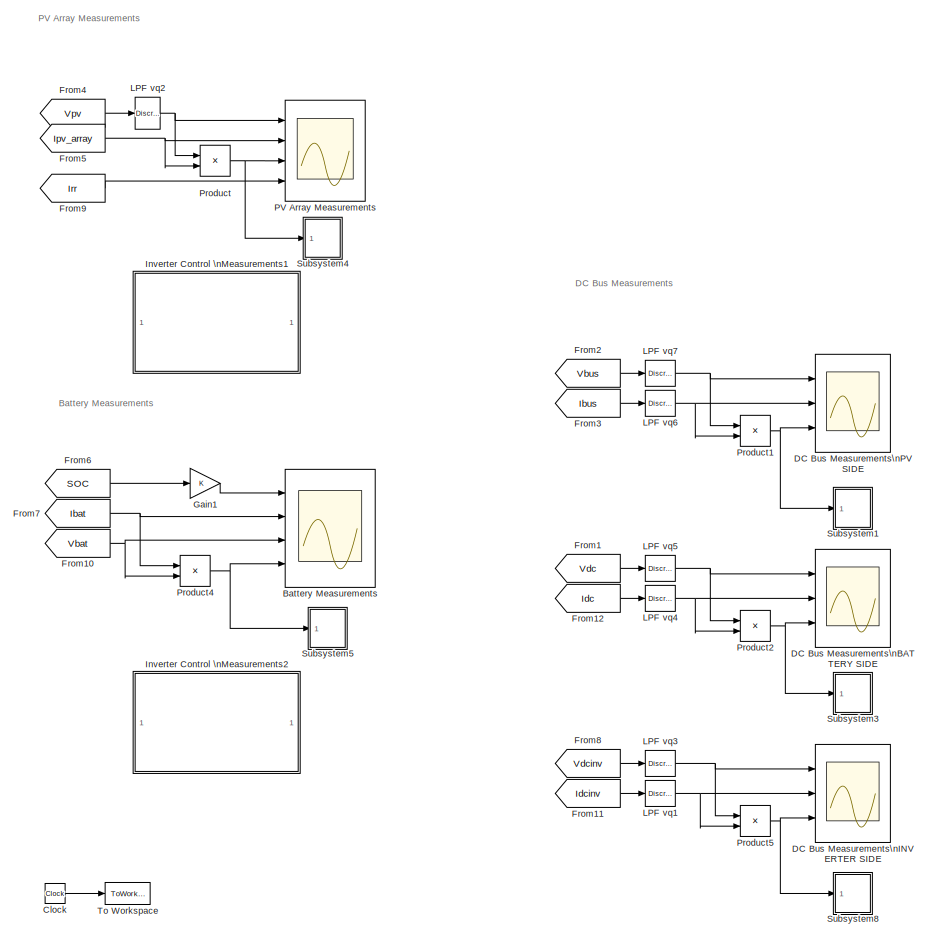
[diagram: Subsystem - part 1/2, left side, full height]
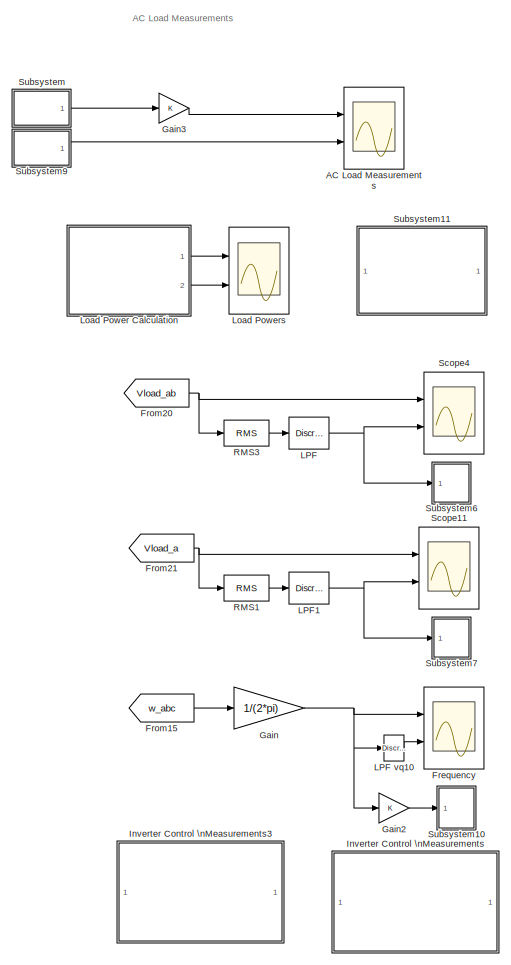
[diagram: Subsystem - part 2/2, right side, full height]
BLOCK [SubSystem] Subsystem
  Ports = []
  RequestExecContextInheritance = off
  SID = 3844
BLOCK [Scope] Subsystem/AC Load Measurements
  Floating = off
  NumInputPorts = 2
  Ports = [2]
  SID = 3845
  ScopeSpecificationString = Simulink.scopes.TimeScopeBlockCfg('CurrentConfiguration', extmgr.ConfigurationSet(extmgr.Configuration('Core','General UI',true),extmgr.Configuration('Core','Source UI',true),extmgr.Configuration('Sources','WiredSimulink',true,'DataLoggingVariableName','ScopeData11','DataLoggingSaveFormat','Array','DataLoggingDecimation','1','DataLoggingDecimateData',true),extmgr.Configuration('Visuals','Time Doma...<+2418ch>
BLOCK [Scope] Subsystem/Battery Measurements
  Floating = off
  NumInputPorts = 4
  Ports = [4]
  SID = 3846
  ScopeSpecificationString = Simulink.scopes.TimeScopeBlockCfg('CurrentConfiguration', extmgr.ConfigurationSet(extmgr.Configuration('Core','General UI',true),extmgr.Configuration('Core','Source UI',true),extmgr.Configuration('Sources','WiredSimulink',true,'DataLoggingVariableName','ScopeData5','DataLoggingSaveFormat','StructureWithTime','DataLoggingDecimation','1','DataLoggingDecimateData',true),extmgr.Configuration('Visuals'...<+3831ch>
BLOCK [Clock] Subsystem/Clock
  SID = 3847
BLOCK [Scope] Subsystem/DC Bus Measurements\nBATTERY SIDE
  Floating = off
  NumInputPorts = 3
  Ports = [3]
  SID = 3848
  ScopeSpecificationString = C++SS(StrPVP('Location','[1, 485, 905, 899]'),StrPVP('Open','off'),StrPVP('ZoomMode','yonly'),MxPVP('AxesTitles',53,'struct(''axes1'',''DC Bus Voltage Battery Side, Vdc (V)'',''axes2'',''DC Bus Current Battery Side, Idc (A)'',''axes3'',''DC Bus Power Battery Side, Pdc (W)'')'),MxPVP('ScopeGraphics',56,'struct(''FigureColor'',''[0.5 0.5 0.5]'',''AxesColor'',''[0 0 0]'',''AxesTickColor'',''[1 1 1]''...<+537ch>
BLOCK [Scope] Subsystem/DC Bus Measurements\nINVERTER SIDE
  Floating = off
  NumInputPorts = 3
  Ports = [3]
  SID = 3849
  ScopeSpecificationString = C++SS(StrPVP('Location','[5, 150, 1609, 1005]'),StrPVP('Open','off'),StrPVP('ZoomMode','yonly'),MxPVP('AxesTitles',53,'struct(''axes1'',''DC Bus Voltage Inverter Side, Vdcinv (V)'',''axes2'',''DC Bus Current Inverter Side, Idcinv (A)'',''axes3'',''DC Bus Power Inverter Side, Pdcinv (W)'')'),MxPVP('ScopeGraphics',56,'struct(''FigureColor'',''[0.5 0.5 0.5]'',''AxesColor'',''[0 0 0]'',''AxesTickColor...<+575ch>
BLOCK [Scope] Subsystem/DC Bus Measurements\nPV SIDE
  Floating = off
  NumInputPorts = 3
  Ports = [3]
  SID = 3850
  ScopeSpecificationString = C++SS(StrPVP('Location','[-70, 81, 1534, 936]'),StrPVP('Open','off'),StrPVP('ZoomMode','yonly'),MxPVP('AxesTitles',53,'struct(''axes1'',''DC Bus Voltage PV Side, Vbus (V)'',''axes2'',''DC Bus Current PV Side, Ibus (A)'',''axes3'',''DC Bus Power PV Side, Pbus (W)'')'),MxPVP('ScopeGraphics',56,'struct(''FigureColor'',''[0.5 0.5 0.5]'',''AxesColor'',''[0 0 0]'',''AxesTickColor'',''[1 1 1]'',''LineCol...<+497ch>
BLOCK [Scope] Subsystem/Frequency
  Floating = off
  NumInputPorts = 2
  Ports = [2]
  SID = 3851
  ScopeSpecificationString = C++SS(StrPVP('Location','[266, 98, 1050, 894]'),StrPVP('Open','off'),StrPVP('ZoomMode','yonly'),MxPVP('AxesTitles',53,'struct(''axes1'',''Frequency (Hz)'',''axes2'',''Frequency Filtered (Hz)'')'),MxPVP('ScopeGraphics',56,'struct(''FigureColor'',''[0.5 0.5 0.5]'',''AxesColor'',''[0 0 0]'',''AxesTickColor'',''[1 1 1]'',''LineColors'',''[1 1 0;1 0 1;0 1 1;1 0 0;0 1 0;0 0 1]'',''LineStyles'',''-|-|-|-...<+422ch>
BLOCK [From] Subsystem/From1
  GotoTag = Vdc
  SID = 3852
  TagVisibility = global
BLOCK [From] Subsystem/From10
  GotoTag = Vbat
  SID = 3853
BLOCK [From] Subsystem/From11
  GotoTag = Idcinv
  SID = 3854
BLOCK [From] Subsystem/From12
  GotoTag = Idc
  SID = 3855
BLOCK [From] Subsystem/From15
  GotoTag = w_abc
  SID = 3856
  TagVisibility = global
BLOCK [From] Subsystem/From2
  GotoTag = Vbus
  SID = 3857
BLOCK [From] Subsystem/From20
  GotoTag = Vload_ab
  SID = 3858
  TagVisibility = global
BLOCK [From] Subsystem/From21
  GotoTag = Vload_a
  SID = 3859
  TagVisibility = global
BLOCK [From] Subsystem/From3
  GotoTag = Ibus
  SID = 3860
BLOCK [From] Subsystem/From4
  GotoTag = Vpv
  SID = 3861
BLOCK [From] Subsystem/From5
  GotoTag = Ipv_array
  SID = 3862
BLOCK [From] Subsystem/From6
  GotoTag = SOC
  SID = 3863
BLOCK [From] Subsystem/From7
  GotoTag = Ibat
  SID = 3864
BLOCK [From] Subsystem/From8
  GotoTag = Vdcinv
  SID = 3865
BLOCK [From] Subsystem/From9
  GotoTag = Irr
  SID = 3866
BLOCK [Gain] Subsystem/Gain
  Gain = 1/(2*pi)
  OutDataTypeStr = Inherit: Inherit via internal rule
  ParamDataTypeStr = Inherit: Inherit via internal rule
  SID = 3867
  SaturateOnIntegerOverflow = off
BLOCK [Gain] Subsystem/Gain1
  OutDataTypeStr = Inherit: Inherit via internal rule
  ParamDataTypeStr = Inherit: Inherit via internal rule
  SID = 3868
  SaturateOnIntegerOverflow = off
BLOCK [Gain] Subsystem/Gain2
  OutDataTypeStr = Inherit: Inherit via internal rule
  ParamDataTypeStr = Inherit: Inherit via internal rule
  SID = 3869
  SaturateOnIntegerOverflow = off
BLOCK [Gain] Subsystem/Gain3
  OutDataTypeStr = Inherit: Inherit via internal rule
  ParamDataTypeStr = Inherit: Inherit via internal rule
  SID = 3870
  SaturateOnIntegerOverflow = off
BLOCK [SubSystem] Subsystem/Inverter Control \nMeasurements
  Ports = []
  RequestExecContextInheritance = off
  SID = 3871
BLOCK [Scope] Subsystem/Inverter Control \nMeasurements/Current Control Loop
  Floating = off
  NumInputPorts = 2
  Ports = [2]
  SID = 3872
  ScopeSpecificationString = C++SS(StrPVP('Location','[729, 165, 1513, 961]'),StrPVP('Open','off'),StrPVP('ZoomMode','yonly'),MxPVP('AxesTitles',53,'struct(''axes1'',''d Reference Frame Current Controller, id / id* (A)'',''axes2'',''q Reference Frame Current Controller, iq / iq* (A)'')'),StrPVP('ShowLegends','off'),StrPVP('TimeRange','1               '),StrPVP('YMin','167.5~-97.5'),StrPVP('YMax','195~-40'),StrPVP('DataFormat'...<+152ch>
BLOCK [Scope] Subsystem/Inverter Control \nMeasurements/Frequency Reference
  Floating = off
  NumInputPorts = 2
  Ports = [2]
  SID = 3873
  ScopeSpecificationString = C++SS(StrPVP('Location','[5, 48, 1921, 1169]'),StrPVP('Open','off'),StrPVP('ZoomMode','xonly'),MxPVP('AxesTitles',53,'struct(''axes1'',''Frequency Reference, f* (Hz)'',''axes2'',''Angle Reference, theta (rad)'')'),StrPVP('ShowLegends','off'),StrPVP('TimeRange','4'),StrPVP('YMin','-100~-5'),StrPVP('YMax','80~5'),StrPVP('SaveName','ScopeData1'),StrPVP('DataFormat','StructureWithTime'),StrPVP('LimitD...<+116ch>
BLOCK [From] Subsystem/Inverter Control \nMeasurements/From11
  GotoTag = f_ref
  SID = 3874
  TagVisibility = global
BLOCK [From] Subsystem/Inverter Control \nMeasurements/From12
  GotoTag = iq_ref
  SID = 3875
  TagVisibility = global
BLOCK [From] Subsystem/Inverter Control \nMeasurements/From13
  GotoTag = theta
  SID = 3876
  TagVisibility = global
BLOCK [From] Subsystem/Inverter Control \nMeasurements/From15
  GotoTag = m_index
  SID = 3877
  TagVisibility = global
BLOCK [From] Subsystem/Inverter Control \nMeasurements/From16
  GotoTag = pulses
  SID = 3878
  TagVisibility = global
BLOCK [From] Subsystem/Inverter Control \nMeasurements/From2
  GotoTag = vd
  SID = 3879
  TagVisibility = global
BLOCK [From] Subsystem/Inverter Control \nMeasurements/From20
  GotoTag = Vabc_ref
  SID = 3880
BLOCK [From] Subsystem/Inverter Control \nMeasurements/From3
  GotoTag = vd_ref
  SID = 3881
  TagVisibility = global
BLOCK [From] Subsystem/Inverter Control \nMeasurements/From4
  GotoTag = vq
  SID = 3882
  TagVisibility = global
BLOCK [From] Subsystem/Inverter Control \nMeasurements/From5
  GotoTag = vq_ref
  SID = 3883
  TagVisibility = global
BLOCK [From] Subsystem/Inverter Control \nMeasurements/From6
  GotoTag = id
  SID = 3884
  TagVisibility = global
BLOCK [From] Subsystem/Inverter Control \nMeasurements/From8
  GotoTag = id_ref
  SID = 3885
  TagVisibility = global
BLOCK [From] Subsystem/Inverter Control \nMeasurements/From9
  GotoTag = iq
  SID = 3886
  TagVisibility = global
BLOCK [Mux] Subsystem/Inverter Control \nMeasurements/Mux
  DisplayOption = bar
  Inputs = 2
  Ports = [2, 1]
  SID = 3887
BLOCK [Mux] Subsystem/Inverter Control \nMeasurements/Mux2
  DisplayOption = bar
  Inputs = 2
  Ports = [2, 1]
  SID = 3888
BLOCK [Mux] Subsystem/Inverter Control \nMeasurements/Mux3
  DisplayOption = bar
  Inputs = 2
  Ports = [2, 1]
  SID = 3889
BLOCK [Mux] Subsystem/Inverter Control \nMeasurements/Mux4
  DisplayOption = bar
  Inputs = 2
  Ports = [2, 1]
  SID = 3890
BLOCK [Scope] Subsystem/Inverter Control \nMeasurements/PWM
  Floating = off
  NumInputPorts = 2
  Ports = [2]
  SID = 3891
  ScopeSpecificationString = C++SS(StrPVP('Location','[495, 254, 1279, 1050]'),StrPVP('Open','off'),StrPVP('ZoomMode','xonly'),MxPVP('AxesTitles',53,'struct(''axes1'',''Modulation Index'',''axes2'',''Pulses'')'),StrPVP('ShowLegends','off'),StrPVP('TimeRange','4'),StrPVP('YMin','-100~-5'),StrPVP('YMax','80~5'),StrPVP('SaveName','ScopeData2'),StrPVP('DataFormat','StructureWithTime'),StrPVP('LimitDataPoints','off'),StrPVP('Block...<+85ch>
BLOCK [SubSystem] Subsystem/Inverter Control \nMeasurements/Subsystem1
  Ports = [1]
  RequestExecContextInheritance = off
  SID = 3892
BLOCK [ToWorkspace] Subsystem/Inverter Control \nMeasurements/Subsystem1/To Workspace1
  MaxDataPoints = inf
  Ports = [1]
  SID = 3894
  SampleTime = -1
  VariableName = vd_ref
BLOCK [ZeroOrderHold] Subsystem/Inverter Control \nMeasurements/Subsystem1/Zero-Order\nHold1
  SID = 3895
  SampleTime = 5e-6
BLOCK [Inport] Subsystem/Inverter Control \nMeasurements/Subsystem1/vd_ref
  IconDisplay = Port number
  SID = 3893
BLOCK [SubSystem] Subsystem/Inverter Control \nMeasurements/Subsystem10
  Ports = [1]
  RequestExecContextInheritance = off
  SID = 3896
BLOCK [ToWorkspace] Subsystem/Inverter Control \nMeasurements/Subsystem10/To Workspace1
  MaxDataPoints = inf
  Ports = [1]
  SID = 3898
  SampleTime = -1
  VariableName = f_ref
BLOCK [ZeroOrderHold] Subsystem/Inverter Control \nMeasurements/Subsystem10/Zero-Order\nHold1
  SID = 3899
  SampleTime = 5e-6
BLOCK [Inport] Subsystem/Inverter Control \nMeasurements/Subsystem10/f_ref
  IconDisplay = Port number
  SID = 3897
BLOCK [SubSystem] Subsystem/Inverter Control \nMeasurements/Subsystem11
  Ports = [1]
  RequestExecContextInheritance = off
  SID = 3900
BLOCK [ToWorkspace] Subsystem/Inverter Control \nMeasurements/Subsystem11/To Workspace1
  MaxDataPoints = inf
  Ports = [1]
  SID = 3902
  SampleTime = -1
  VariableName = theta
BLOCK [ZeroOrderHold] Subsystem/Inverter Control \nMeasurements/Subsystem11/Zero-Order\nHold1
  SID = 3903
  SampleTime = 5e-6
BLOCK [Inport] Subsystem/Inverter Control \nMeasurements/Subsystem11/theta
  IconDisplay = Port number
  SID = 3901
BLOCK [SubSystem] Subsystem/Inverter Control \nMeasurements/Subsystem12
  Ports = [1]
  RequestExecContextInheritance = off
  SID = 3904
BLOCK [ToWorkspace] Subsystem/Inverter Control \nMeasurements/Subsystem12/To Workspace1
  MaxDataPoints = inf
  Ports = [1]
  SID = 3906
  SampleTime = -1
  VariableName = m_index
BLOCK [ZeroOrderHold] Subsystem/Inverter Control \nMeasurements/Subsystem12/Zero-Order\nHold1
  SID = 3907
  SampleTime = 5e-6
BLOCK [Inport] Subsystem/Inverter Control \nMeasurements/Subsystem12/m_index
  IconDisplay = Port number
  SID = 3905
BLOCK [SubSystem] Subsystem/Inverter Control \nMeasurements/Subsystem13
  Ports = [1]
  RequestExecContextInheritance = off
  SID = 3908
BLOCK [ToWorkspace] Subsystem/Inverter Control \nMeasurements/Subsystem13/To Workspace1
  MaxDataPoints = inf
  Ports = [1]
  SID = 3910
  SampleTime = -1
  VariableName = pulses
BLOCK [ZeroOrderHold] Subsystem/Inverter Control \nMeasurements/Subsystem13/Zero-Order\nHold1
  SID = 3911
  SampleTime = 5e-6
BLOCK [Inport] Subsystem/Inverter Control \nMeasurements/Subsystem13/pulses
  IconDisplay = Port number
  SID = 3909
BLOCK [SubSystem] Subsystem/Inverter Control \nMeasurements/Subsystem2
  Ports = [1]
  RequestExecContextInheritance = off
  SID = 3912
BLOCK [ToWorkspace] Subsystem/Inverter Control \nMeasurements/Subsystem2/To Workspace1
  MaxDataPoints = inf
  Ports = [1]
  SID = 3914
  SampleTime = -1
  VariableName = vq_ref
BLOCK [ZeroOrderHold] Subsystem/Inverter Control \nMeasurements/Subsystem2/Zero-Order\nHold1
  SID = 3915
  SampleTime = 5e-6
BLOCK [Inport] Subsystem/Inverter Control \nMeasurements/Subsystem2/vq_ref
  IconDisplay = Port number
  SID = 3913
BLOCK [SubSystem] Subsystem/Inverter Control \nMeasurements/Subsystem3
  Ports = [1]
  RequestExecContextInheritance = off
  SID = 3916
BLOCK [ToWorkspace] Subsystem/Inverter Control \nMeasurements/Subsystem3/To Workspace1
  MaxDataPoints = inf
  Ports = [1]
  SID = 3918
  SampleTime = -1
  VariableName = vd
BLOCK [ZeroOrderHold] Subsystem/Inverter Control \nMeasurements/Subsystem3/Zero-Order\nHold1
  SID = 3919
  SampleTime = 5e-6
BLOCK [Inport] Subsystem/Inverter Control \nMeasurements/Subsystem3/vd
  IconDisplay = Port number
  SID = 3917
BLOCK [SubSystem] Subsystem/Inverter Control \nMeasurements/Subsystem4
  Ports = [1]
  RequestExecContextInheritance = off
  SID = 3920
BLOCK [ToWorkspace] Subsystem/Inverter Control \nMeasurements/Subsystem4/To Workspace1
  MaxDataPoints = inf
  Ports = [1]
  SID = 3922
  SampleTime = -1
  VariableName = vq
BLOCK [ZeroOrderHold] Subsystem/Inverter Control \nMeasurements/Subsystem4/Zero-Order\nHold1
  SID = 3923
  SampleTime = 5e-6
BLOCK [Inport] Subsystem/Inverter Control \nMeasurements/Subsystem4/vq
  IconDisplay = Port number
  SID = 3921
BLOCK [SubSystem] Subsystem/Inverter Control \nMeasurements/Subsystem5
  Ports = [1]
  RequestExecContextInheritance = off
  SID = 3924
BLOCK [ToWorkspace] Subsystem/Inverter Control \nMeasurements/Subsystem5/To Workspace1
  MaxDataPoints = inf
  Ports = [1]
  SID = 3926
  SampleTime = -1
  VariableName = id_ref
BLOCK [ZeroOrderHold] Subsystem/Inverter Control \nMeasurements/Subsystem5/Zero-Order\nHold1
  SID = 3927
  SampleTime = 5e-6
BLOCK [Inport] Subsystem/Inverter Control \nMeasurements/Subsystem5/id_ref
  IconDisplay = Port number
  SID = 3925
BLOCK [SubSystem] Subsystem/Inverter Control \nMeasurements/Subsystem6
  Ports = [1]
  RequestExecContextInheritance = off
  SID = 3928
BLOCK [ToWorkspace] Subsystem/Inverter Control \nMeasurements/Subsystem6/To Workspace1
  MaxDataPoints = inf
  Ports = [1]
  SID = 3930
  SampleTime = -1
  VariableName = id
BLOCK [ZeroOrderHold] Subsystem/Inverter Control \nMeasurements/Subsystem6/Zero-Order\nHold1
  SID = 3931
  SampleTime = 5e-6
BLOCK [Inport] Subsystem/Inverter Control \nMeasurements/Subsystem6/id
  IconDisplay = Port number
  SID = 3929
BLOCK [SubSystem] Subsystem/Inverter Control \nMeasurements/Subsystem7
  Ports = [1]
  RequestExecContextInheritance = off
  SID = 3932
BLOCK [ToWorkspace] Subsystem/Inverter Control \nMeasurements/Subsystem7/To Workspace1
  MaxDataPoints = inf
  Ports = [1]
  SID = 3934
  SampleTime = -1
  VariableName = iq_ref
BLOCK [ZeroOrderHold] Subsystem/Inverter Control \nMeasurements/Subsystem7/Zero-Order\nHold1
  SID = 3935
  SampleTime = 5e-6
BLOCK [Inport] Subsystem/Inverter Control \nMeasurements/Subsystem7/iq_ref
  IconDisplay = Port number
  SID = 3933
BLOCK [SubSystem] Subsystem/Inverter Control \nMeasurements/Subsystem8
  Ports = [1]
  RequestExecContextInheritance = off
  SID = 3936
BLOCK [ToWorkspace] Subsystem/Inverter Control \nMeasurements/Subsystem8/To Workspace1
  MaxDataPoints = inf
  Ports = [1]
  SID = 3938
  SampleTime = -1
  VariableName = iq
BLOCK [ZeroOrderHold] Subsystem/Inverter Control \nMeasurements/Subsystem8/Zero-Order\nHold1
  SID = 3939
  SampleTime = 5e-6
BLOCK [Inport] Subsystem/Inverter Control \nMeasurements/Subsystem8/iq
  IconDisplay = Port number
  SID = 3937
BLOCK [SubSystem] Subsystem/Inverter Control \nMeasurements/Subsystem9
  Ports = [1]
  RequestExecContextInheritance = off
  SID = 3940
BLOCK [ToWorkspace] Subsystem/Inverter Control \nMeasurements/Subsystem9/To Workspace1
  MaxDataPoints = inf
  Ports = [1]
  SID = 3942
  SampleTime = -1
  VariableName = Vabc_ref
BLOCK [Inport] Subsystem/Inverter Control \nMeasurements/Subsystem9/Vabc_ref
  IconDisplay = Port number
  SID = 3941
BLOCK [ZeroOrderHold] Subsystem/Inverter Control \nMeasurements/Subsystem9/Zero-Order\nHold1
  SID = 3943
  SampleTime = 5e-6
BLOCK [Scope] Subsystem/Inverter Control \nMeasurements/Voltage Control Loop
  Floating = off
  NumInputPorts = 2
  Ports = [2]
  SID = 3944
  ScopeSpecificationString = Simulink.scopes.TimeScopeBlockCfg('CurrentConfiguration', extmgr.ConfigurationSet(extmgr.Configuration('Core','General UI',true),extmgr.Configuration('Core','Source UI',true),extmgr.Configuration('Sources','WiredSimulink',true,'DataLoggingVariableName','ScopeData3','DataLoggingSaveFormat','StructureWithTime','DataLoggingDecimation','1','DataLoggingDecimateData',true),extmgr.Configuration('Visuals'...<+2502ch>
BLOCK [Scope] Subsystem/Inverter Control \nMeasurements/Voltage References
  Floating = off
  NumInputPorts = 1
  Ports = [1]
  SID = 3945
  ScopeSpecificationString = C++SS(StrPVP('Location','[712, 253, 1496, 1049]'),StrPVP('Open','off'),StrPVP('ZoomMode','xonly'),MxPVP('AxesTitles',53,'struct(''axes1'',''Voltage References, Vabc* (V)'')'),StrPVP('ShowLegends','off'),StrPVP('TimeRange','4'),StrPVP('YMin','-100'),StrPVP('YMax','80'),StrPVP('SaveName','ScopeData4'),StrPVP('DataFormat','StructureWithTime'),StrPVP('LimitDataPoints','off'),StrPVP('BlockParamSampleTi...<+72ch>
BLOCK [SubSystem] Subsystem/Inverter Control \nMeasurements1
  Ports = []
  RequestExecContextInheritance = off
  SID = 3946
BLOCK [Scope] Subsystem/Inverter Control \nMeasurements1/Boost Converter Control\nMPPT
  Floating = off
  NumInputPorts = 3
  Ports = [3]
  SID = 3947
  ScopeSpecificationString = C++SS(StrPVP('Location','[729, 166, 1513, 962]'),StrPVP('Open','off'),StrPVP('ZoomMode','yonly'),MxPVP('AxesTitles',53,'struct(''axes1'',''Reference Voltage of the PV Array, Vref (V)'',''axes2'',''Modulation Index'',''axes3'',''Switch pulses'')'),StrPVP('ShowLegends','off'),StrPVP('TimeRange','1'),StrPVP('YMin','162.5~-100~-5'),StrPVP('YMax','207.5~100~5'),StrPVP('SaveName','ScopeData16'),StrPVP('...<+163ch>
BLOCK [From] Subsystem/Inverter Control \nMeasurements1/From5
  GotoTag = Vref
  SID = 3948
BLOCK [From] Subsystem/Inverter Control \nMeasurements1/From6
  GotoTag = delta
  SID = 3949
BLOCK [From] Subsystem/Inverter Control \nMeasurements1/From7
  GotoTag = pulsos
  SID = 3950
BLOCK [SubSystem] Subsystem/Inverter Control \nMeasurements2
  Ports = []
  RequestExecContextInheritance = off
  SID = 3951
BLOCK [Scope] Subsystem/Inverter Control \nMeasurements2/Control Loops
  Floating = off
  NumInputPorts = 2
  Ports = [2]
  SID = 3952
  ScopeSpecificationString = C++SS(StrPVP('Location','[729, 166, 1513, 962]'),StrPVP('Open','off'),StrPVP('ZoomMode','yonly'),MxPVP('AxesTitles',53,'struct(''axes1'',''DC Bus Voltage Controller, Vdc / Vdc* (V)'',''axes2'',''Battery Current Controller, Ibat / Ibat* (A)'')'),StrPVP('ShowLegends','off'),StrPVP('TimeRange','1'),StrPVP('YMin','162.5~-100'),StrPVP('YMax','207.5~100'),StrPVP('SaveName','ScopeData3'),StrPVP('DataForm...<+155ch>
BLOCK [From] Subsystem/Inverter Control \nMeasurements2/From1
  GotoTag = Vdc
  SID = 3953
  TagVisibility = global
BLOCK [From] Subsystem/Inverter Control \nMeasurements2/From2
  GotoTag = Vdc_ref
  SID = 3954
BLOCK [From] Subsystem/Inverter Control \nMeasurements2/From3
  GotoTag = Ibat
  SID = 3955
BLOCK [From] Subsystem/Inverter Control \nMeasurements2/From4
  GotoTag = Ibat_ref
  SID = 3956
  TagVisibility = global
BLOCK [From] Subsystem/Inverter Control \nMeasurements2/From5
  GotoTag = Sign
  SID = 3957
  TagVisibility = global
BLOCK [From] Subsystem/Inverter Control \nMeasurements2/From6
  GotoTag = S1
  SID = 3958
  TagVisibility = global
BLOCK [From] Subsystem/Inverter Control \nMeasurements2/From7
  GotoTag = S2
  SID = 3959
  TagVisibility = global
BLOCK [Mux] Subsystem/Inverter Control \nMeasurements2/Mux
  DisplayOption = bar
  Inputs = 2
  Ports = [2, 1]
  SID = 3960
BLOCK [Mux] Subsystem/Inverter Control \nMeasurements2/Mux2
  DisplayOption = bar
  Inputs = 2
  Ports = [2, 1]
  SID = 3961
BLOCK [Scope] Subsystem/Inverter Control \nMeasurements2/Switch Control
  Floating = off
  NumInputPorts = 3
  Ports = [3]
  SID = 3962
  ScopeSpecificationString = C++SS(StrPVP('Location','[729, 166, 1513, 962]'),StrPVP('Open','off'),StrPVP('ZoomMode','yonly'),MxPVP('AxesTitles',53,'struct(''axes1'',''Current Direction, Sign'',''axes2'',''Switch S1 pulses, Buck Mode Charging'',''axes3'',''Switch S2 pulses, Boost Mode Charging'')'),StrPVP('ShowLegends','off'),StrPVP('TimeRange','1'),StrPVP('YMin','162.5~-100~-5'),StrPVP('YMax','207.5~100~5'),StrPVP('SaveName'...<+187ch>
BLOCK [SubSystem] Subsystem/Inverter Control \nMeasurements3
  Ports = []
  RequestExecContextInheritance = off
  SID = 3963
BLOCK [SubSystem] Subsystem/Inverter Control \nMeasurements3/PLL
  Ports = [1]
  RequestExecContextInheritance = off
  SID = 3964
BLOCK [Demux] Subsystem/Inverter Control \nMeasurements3/PLL/Demux
  DisplayOption = bar
  Outputs = 2
  Ports = [1, 2]
  SID = 3966
BLOCK [Integrator] Subsystem/Inverter Control \nMeasurements3/PLL/Integrator
  Ports = [1, 1]
  SID = 3967
BLOCK [SubSystem] Subsystem/Inverter Control \nMeasurements3/PLL/PI
  Ports = [1, 1]
  RequestExecContextInheritance = off
  SID = 3968
BLOCK [Gain] Subsystem/Inverter Control \nMeasurements3/PLL/PI/Gain1
  Gain = 10
  OutDataTypeStr = Inherit: Inherit via internal rule
  ParamDataTypeStr = Inherit: Inherit via internal rule
  SID = 3970
  SaturateOnIntegerOverflow = off
BLOCK [Gain] Subsystem/Inverter Control \nMeasurements3/PLL/PI/Gain2
  Gain = 100
  OutDataTypeStr = Inherit: Inherit via internal rule
  ParamDataTypeStr = Inherit: Inherit via internal rule
  SID = 3971
  SaturateOnIntegerOverflow = off
BLOCK [Integrator] Subsystem/Inverter Control \nMeasurements3/PLL/PI/Integrator
  Ports = [1, 1]
  SID = 3972
BLOCK [Saturate] Subsystem/Inverter Control \nMeasurements3/PLL/PI/Saturation
  InputPortMap = u0
  LowerLimit = -inf
  Ports = [1, 1]
  SID = 3973
  UpperLimit = inf
BLOCK [Sum] Subsystem/Inverter Control \nMeasurements3/PLL/PI/Sum1
  IconShape = round
  InputSameDT = off
  Inputs = |++
  OutDataTypeStr = Inherit: Inherit via internal rule
  Ports = [2, 1]
  SID = 3974
  SaturateOnIntegerOverflow = off
BLOCK [Inport] Subsystem/Inverter Control \nMeasurements3/PLL/PI/e
  IconDisplay = Port number
  SID = 3969
BLOCK [Outport] Subsystem/Inverter Control \nMeasurements3/PLL/PI/w
  IconDisplay = Port number
  SID = 3975
BLOCK [SubSystem] Subsystem/Inverter Control \nMeasurements3/PLL/Subsystem3
  Ports = [1]
  RequestExecContextInheritance = off
  SID = 3976
BLOCK [Goto] Subsystem/Inverter Control \nMeasurements3/PLL/Subsystem3/Goto2
  GotoTag = w_abc
  SID = 3978
  TagVisibility = global
BLOCK [Reference] Subsystem/Inverter Control \nMeasurements3/PLL/Subsystem3/LPF vq7  REF=powerlib_extras/Discrete \nControl Blocks/Discrete\n1st-Order\nFilter
  FilterType = Lowpass
  Initialize = off
  PlotResponse = off
  Ports = [1, 1]
  SID = 3979
  SourceBlock = powerlib_extras/Discrete \nControl Blocks/Discrete\n1st-Order\nFilter
  SourceProductBaseCode = PS
  SourceProductName = Simscape Electrical
  SourceType = Discrete 1st-Order Filter
  Tc = 10e-3
  Ts = 5e-6
  Vac_Init = [0.8 -25 60]
  Vdc_Init = 0
  param1 = [1 100 0.1]
BLOCK [ToWorkspace] Subsystem/Inverter Control \nMeasurements3/PLL/Subsystem3/To Workspace1
  MaxDataPoints = inf
  Ports = [1]
  SID = 3980
  SampleTime = -1
  VariableName = wabc_real
BLOCK [ToWorkspace] Subsystem/Inverter Control \nMeasurements3/PLL/Subsystem3/To Workspace2
  MaxDataPoints = inf
  Ports = [1]
  SID = 3981
  SampleTime = -1
  VariableName = wabc_real_fil
BLOCK [ZeroOrderHold] Subsystem/Inverter Control \nMeasurements3/PLL/Subsystem3/Zero-Order\nHold
  SID = 3982
  SampleTime = 5e-6
BLOCK [Inport] Subsystem/Inverter Control \nMeasurements3/PLL/Subsystem3/wabc
  IconDisplay = Port number
  SID = 3977
BLOCK [Terminator] Subsystem/Inverter Control \nMeasurements3/PLL/Terminator
  SID = 3983
BLOCK [Inport] Subsystem/Inverter Control \nMeasurements3/PLL/Vabc
  IconDisplay = Port number
  SID = 3965
BLOCK [SubSystem] Subsystem/Inverter Control \nMeasurements3/PLL/abc  - d//q
  Ports = [2, 1]
  RequestExecContextInheritance = off
  SID = 3984
BLOCK [Inport] Subsystem/Inverter Control \nMeasurements3/PLL/abc  - d//q/abc
  IconDisplay = Port number
  SID = 3985
BLOCK [SubSystem] Subsystem/Inverter Control \nMeasurements3/PLL/abc  - d//q/abc  - alfa//beta
  Ports = [1, 1]
  RequestExecContextInheritance = off
  SID = 3987
BLOCK [Mux] Subsystem/Inverter Control \nMeasurements3/PLL/abc  - d//q/abc  - alfa//beta/Mux
  DisplayOption = bar
  Inputs = 2
  Ports = [2, 1]
  SID = 3989
BLOCK [Inport] Subsystem/Inverter Control \nMeasurements3/PLL/abc  - d//q/abc  - alfa//beta/abc
  IconDisplay = Port number
  SID = 3988
BLOCK [Outport] Subsystem/Inverter Control \nMeasurements3/PLL/abc  - d//q/abc  - alfa//beta/alfa//beta
  IconDisplay = Port number
  SID = 3992
BLOCK [Fcn] Subsystem/Inverter Control \nMeasurements3/PLL/abc  - d//q/abc  - alfa//beta/d_s
  Expr = (-1/sqrt(3)*u[2])+(1/sqrt(3)*u[3])
  SID = 3990
BLOCK [Fcn] Subsystem/Inverter Control \nMeasurements3/PLL/abc  - d//q/abc  - alfa//beta/q_s
  Expr = (2/3)*u[1]-(1/3)*u[2]-(1/3)*u[3]
  SID = 3991
BLOCK [SubSystem] Subsystem/Inverter Control \nMeasurements3/PLL/abc  - d//q/alfa//beta - dq
  Ports = [2, 1]
  RequestExecContextInheritance = off
  SID = 3993
BLOCK [Mux] Subsystem/Inverter Control \nMeasurements3/PLL/abc  - d//q/alfa//beta - dq/Mux
  DisplayOption = bar
  Inputs = 2
  Ports = [2, 1]
  SID = 3996
BLOCK [Mux] Subsystem/Inverter Control \nMeasurements3/PLL/abc  - d//q/alfa//beta - dq/Mux1
  DisplayOption = bar
  Inputs = 2
  Ports = [2, 1]
  SID = 3997
BLOCK [Inport] Subsystem/Inverter Control \nMeasurements3/PLL/abc  - d//q/alfa//beta - dq/alfa//beta
  IconDisplay = Port number
  SID = 3994
BLOCK [Fcn] Subsystem/Inverter Control \nMeasurements3/PLL/abc  - d//q/alfa//beta - dq/d
  Expr = u[2]*sin(u[3]) + u[1]*cos(u[3])
  SID = 3998
BLOCK [Outport] Subsystem/Inverter Control \nMeasurements3/PLL/abc  - d//q/alfa//beta - dq/d//q
  IconDisplay = Port number
  SID = 4000
BLOCK [Fcn] Subsystem/Inverter Control \nMeasurements3/PLL/abc  - d//q/alfa//beta - dq/q
  Expr = -u[1]*sin(u[3]) + u[2]*cos(u[3])
  SID = 3999
BLOCK [Inport] Subsystem/Inverter Control \nMeasurements3/PLL/abc  - d//q/alfa//beta - dq/tita
  IconDisplay = Port number
  Port = 2
  SID = 3995
BLOCK [Outport] Subsystem/Inverter Control \nMeasurements3/PLL/abc  - d//q/d//q
  IconDisplay = Port number
  SID = 4001
BLOCK [Inport] Subsystem/Inverter Control \nMeasurements3/PLL/abc  - d//q/tita
  IconDisplay = Port number
  Port = 2
  SID = 3986
BLOCK [SubSystem] Subsystem/Inverter Control \nMeasurements3/Subsystem
  Ports = [0, 1]
  RequestExecContextInheritance = off
  SID = 4002
BLOCK [From] Subsystem/Inverter Control \nMeasurements3/Subsystem/From15
  GotoTag = Vab
  SID = 4003
  TagVisibility = global
BLOCK [From] Subsystem/Inverter Control \nMeasurements3/Subsystem/From16
  GotoTag = Vbc
  SID = 4004
  TagVisibility = global
BLOCK [From] Subsystem/Inverter Control \nMeasurements3/Subsystem/From17
  GotoTag = Vca
  SID = 4005
  TagVisibility = global
BLOCK [Reference] Subsystem/Inverter Control \nMeasurements3/Subsystem/LPF vq2  REF=powerlib_extras/Discrete \nControl Blocks/Discrete\n1st-Order\nFilter
  FilterType = Lowpass
  Initialize = off
  PlotResponse = off
  Ports = [1, 1]
  SID = 4006
  SourceBlock = powerlib_extras/Discrete \nControl Blocks/Discrete\n1st-Order\nFilter
  SourceProductBaseCode = PS
  SourceProductName = Simscape Electrical
  SourceType = Discrete 1st-Order Filter
  Tc = 10e-3
  Ts = 5e-6
  Vac_Init = [0.8 -25 60]
  Vdc_Init = 0
  param1 = [1 100 0.1]
BLOCK [Reference] Subsystem/Inverter Control \nMeasurements3/Subsystem/LPF vq3  REF=powerlib_extras/Discrete \nControl Blocks/Discrete\n1st-Order\nFilter
  FilterType = Lowpass
  Initialize = off
  PlotResponse = off
  Ports = [1, 1]
  SID = 4007
  SourceBlock = powerlib_extras/Discrete \nControl Blocks/Discrete\n1st-Order\nFilter
  SourceProductBaseCode = PS
  SourceProductName = Simscape Electrical
  SourceType = Discrete 1st-Order Filter
  Tc = 10e-3
  Ts = 5e-6
  Vac_Init = [0.8 -25 60]
  Vdc_Init = 0
  param1 = [1 100 0.1]
BLOCK [Reference] Subsystem/Inverter Control \nMeasurements3/Subsystem/LPF vq4  REF=powerlib_extras/Discrete \nControl Blocks/Discrete\n1st-Order\nFilter
  FilterType = Lowpass
  Initialize = off
  PlotResponse = off
  Ports = [1, 1]
  SID = 4008
  SourceBlock = powerlib_extras/Discrete \nControl Blocks/Discrete\n1st-Order\nFilter
  SourceProductBaseCode = PS
  SourceProductName = Simscape Electrical
  SourceType = Discrete 1st-Order Filter
  Tc = 10e-3
  Ts = 5e-6
  Vac_Init = [0.8 -25 60]
  Vdc_Init = 0
  param1 = [1 100 0.1]
BLOCK [Mux] Subsystem/Inverter Control \nMeasurements3/Subsystem/Mux
  DisplayOption = bar
  Inputs = 3
  Ports = [3, 1]
  SID = 4009
BLOCK [Outport] Subsystem/Inverter Control \nMeasurements3/Subsystem/Vabc
  IconDisplay = Port number
  SID = 4010
BLOCK [Reference] Subsystem/LPF  REF=powerlib_extras/Discrete \nControl Blocks/Discrete\n1st-Order\nFilter
  FilterType = Lowpass
  Initialize = off
  PlotResponse = off
  Ports = [1, 1]
  SID = 4011
  SourceBlock = powerlib_extras/Discrete \nControl Blocks/Discrete\n1st-Order\nFilter
  SourceProductBaseCode = PS
  SourceProductName = Simscape Electrical
  SourceType = Discrete 1st-Order Filter
  Tc = 10e-3
  Ts = 5e-6
  Vac_Init = [0.8 -25 60]
  Vdc_Init = 0
  param1 = [1 100 0.1]
BLOCK [Reference] Subsystem/LPF vq1  REF=powerlib_extras/Discrete \nControl Blocks/Discrete\n1st-Order\nFilter
  FilterType = Lowpass
  Initialize = off
  PlotResponse = off
  Ports = [1, 1]
  SID = 4012
  SourceBlock = powerlib_extras/Discrete \nControl Blocks/Discrete\n1st-Order\nFilter
  SourceProductBaseCode = PS
  SourceProductName = Simscape Electrical
  SourceType = Discrete 1st-Order Filter
  Tc = 10e-3
  Ts = 5e-6
  Vac_Init = [0.8 -25 60]
  Vdc_Init = 0
  param1 = [1 100 0.1]
BLOCK [Reference] Subsystem/LPF vq10  REF=powerlib_extras/Discrete \nControl Blocks/Discrete\n1st-Order\nFilter
  FilterType = Lowpass
  Initialize = off
  PlotResponse = off
  Ports = [1, 1]
  SID = 4013
  SourceBlock = powerlib_extras/Discrete \nControl Blocks/Discrete\n1st-Order\nFilter
  SourceProductBaseCode = PS
  SourceProductName = Simscape Electrical
  SourceType = Discrete 1st-Order Filter
  Tc = 10e-3
  Ts = 5e-6
  Vac_Init = [0.8 -25 60]
  Vdc_Init = 0
  param1 = [1 100 0.1]
BLOCK [Reference] Subsystem/LPF vq2  REF=powerlib_extras/Discrete \nControl Blocks/Discrete\n1st-Order\nFilter
  FilterType = Lowpass
  Initialize = off
  PlotResponse = off
  Ports = [1, 1]
  SID = 4014
  SourceBlock = powerlib_extras/Discrete \nControl Blocks/Discrete\n1st-Order\nFilter
  SourceProductBaseCode = PS
  SourceProductName = Simscape Electrical
  SourceType = Discrete 1st-Order Filter
  Tc = 10e-3
  Ts = 5e-6
  Vac_Init = [0.8 -25 60]
  Vdc_Init = 0
  param1 = [1 100 0.1]
BLOCK [Reference] Subsystem/LPF vq3  REF=powerlib_extras/Discrete \nControl Blocks/Discrete\n1st-Order\nFilter
  FilterType = Lowpass
  Initialize = off
  PlotResponse = off
  Ports = [1, 1]
  SID = 4015
  SourceBlock = powerlib_extras/Discrete \nControl Blocks/Discrete\n1st-Order\nFilter
  SourceProductBaseCode = PS
  SourceProductName = Simscape Electrical
  SourceType = Discrete 1st-Order Filter
  Tc = 10e-3
  Ts = 5e-6
  Vac_Init = [0.8 -25 60]
  Vdc_Init = 0
  param1 = [1 100 0.1]
BLOCK [Reference] Subsystem/LPF vq4  REF=powerlib_extras/Discrete \nControl Blocks/Discrete\n1st-Order\nFilter
  FilterType = Lowpass
  Initialize = off
  PlotResponse = off
  Ports = [1, 1]
  SID = 4016
  SourceBlock = powerlib_extras/Discrete \nControl Blocks/Discrete\n1st-Order\nFilter
  SourceProductBaseCode = PS
  SourceProductName = Simscape Electrical
  SourceType = Discrete 1st-Order Filter
  Tc = 10e-3
  Ts = 5e-6
  Vac_Init = [0.8 -25 60]
  Vdc_Init = 0
  param1 = [1 100 0.1]
BLOCK [Reference] Subsystem/LPF vq5  REF=powerlib_extras/Discrete \nControl Blocks/Discrete\n1st-Order\nFilter
  FilterType = Lowpass
  Initialize = off
  PlotResponse = off
  Ports = [1, 1]
  SID = 4017
  SourceBlock = powerlib_extras/Discrete \nControl Blocks/Discrete\n1st-Order\nFilter
  SourceProductBaseCode = PS
  SourceProductName = Simscape Electrical
  SourceType = Discrete 1st-Order Filter
  Tc = 10e-3
  Ts = 5e-6
  Vac_Init = [0.8 -25 60]
  Vdc_Init = 0
  param1 = [1 100 0.1]
BLOCK [Reference] Subsystem/LPF vq6  REF=powerlib_extras/Discrete \nControl Blocks/Discrete\n1st-Order\nFilter
  FilterType = Lowpass
  Initialize = off
  PlotResponse = off
  Ports = [1, 1]
  SID = 4018
  SourceBlock = powerlib_extras/Discrete \nControl Blocks/Discrete\n1st-Order\nFilter
  SourceProductBaseCode = PS
  SourceProductName = Simscape Electrical
  SourceType = Discrete 1st-Order Filter
  Tc = 10e-3
  Ts = 5e-6
  Vac_Init = [0.8 -25 60]
  Vdc_Init = 0
  param1 = [1 100 0.1]
BLOCK [Reference] Subsystem/LPF vq7  REF=powerlib_extras/Discrete \nControl Blocks/Discrete\n1st-Order\nFilter
  FilterType = Lowpass
  Initialize = off
  PlotResponse = off
  Ports = [1, 1]
  SID = 4019
  SourceBlock = powerlib_extras/Discrete \nControl Blocks/Discrete\n1st-Order\nFilter
  SourceProductBaseCode = PS
  SourceProductName = Simscape Electrical
  SourceType = Discrete 1st-Order Filter
  Tc = 10e-3
  Ts = 5e-6
  Vac_Init = [0.8 -25 60]
  Vdc_Init = 0
  param1 = [1 100 0.1]
BLOCK [Reference] Subsystem/LPF1  REF=powerlib_extras/Discrete \nControl Blocks/Discrete\n1st-Order\nFilter
  FilterType = Lowpass
  Initialize = off
  PlotResponse = off
  Ports = [1, 1]
  SID = 4020
  SourceBlock = powerlib_extras/Discrete \nControl Blocks/Discrete\n1st-Order\nFilter
  SourceProductBaseCode = PS
  SourceProductName = Simscape Electrical
  SourceType = Discrete 1st-Order Filter
  Tc = 10e-3
  Ts = 5e-6
  Vac_Init = [0.8 -25 60]
  Vdc_Init = 0
  param1 = [1 100 0.1]
BLOCK [SubSystem] Subsystem/Load Power Calculation
  Ports = [0, 2]
  RequestExecContextInheritance = off
  SID = 4021
BLOCK [Constant] Subsystem/Load Power Calculation/Constant
  SID = 4022
  Value = 3/2
BLOCK [Constant] Subsystem/Load Power Calculation/Constant1
  SID = 4023
  Value = 3/2
BLOCK [From] Subsystem/Load Power Calculation/From1
  GotoTag = id
  SID = 4024
  TagVisibility = global
BLOCK [From] Subsystem/Load Power Calculation/From11
  GotoTag = vd
  SID = 4025
  TagVisibility = global
BLOCK [From] Subsystem/Load Power Calculation/From2
  GotoTag = vq
  SID = 4026
  TagVisibility = global
BLOCK [From] Subsystem/Load Power Calculation/From3
  GotoTag = iq
  SID = 4027
  TagVisibility = global
BLOCK [From] Subsystem/Load Power Calculation/From4
  GotoTag = id
  SID = 4028
  TagVisibility = global
BLOCK [From] Subsystem/Load Power Calculation/From5
  GotoTag = vq
  SID = 4029
  TagVisibility = global
BLOCK [From] Subsystem/Load Power Calculation/From6
  GotoTag = vd
  SID = 4030
  TagVisibility = global
BLOCK [From] Subsystem/Load Power Calculation/From7
  GotoTag = iq
  SID = 4031
  TagVisibility = global
BLOCK [Outport] Subsystem/Load Power Calculation/Pload
  IconDisplay = Port number
  SID = 4054
BLOCK [Product] Subsystem/Load Power Calculation/Product1
  InputSameDT = off
  OutDataTypeStr = Inherit: Inherit via internal rule
  Ports = [2, 1]
  SID = 4032
  SaturateOnIntegerOverflow = off
BLOCK [Product] Subsystem/Load Power Calculation/Product2
  InputSameDT = off
  OutDataTypeStr = Inherit: Inherit via internal rule
  Ports = [2, 1]
  SID = 4033
  SaturateOnIntegerOverflow = off
BLOCK [Product] Subsystem/Load Power Calculation/Product3
  InputSameDT = off
  OutDataTypeStr = Inherit: Inherit via internal rule
  Ports = [2, 1]
  SID = 4034
  SaturateOnIntegerOverflow = off
BLOCK [Product] Subsystem/Load Power Calculation/Product4
  InputSameDT = off
  OutDataTypeStr = Inherit: Inherit via internal rule
  Ports = [2, 1]
  SID = 4035
  SaturateOnIntegerOverflow = off
BLOCK [Product] Subsystem/Load Power Calculation/Product5
  InputSameDT = off
  OutDataTypeStr = Inherit: Inherit via internal rule
  Ports = [2, 1]
  SID = 4036
  SaturateOnIntegerOverflow = off
BLOCK [Product] Subsystem/Load Power Calculation/Product6
  InputSameDT = off
  OutDataTypeStr = Inherit: Inherit via internal rule
  Ports = [2, 1]
  SID = 4037
  SaturateOnIntegerOverflow = off
BLOCK [Outport] Subsystem/Load Power Calculation/Qload
  IconDisplay = Port number
  Port = 2
  SID = 4055
BLOCK [Sum] Subsystem/Load Power Calculation/Sum
  IconShape = round
  InputSameDT = off
  Inputs = +|+
  OutDataTypeStr = Inherit: Inherit via internal rule
  Ports = [2, 1]
  SID = 4052
  SaturateOnIntegerOverflow = off
BLOCK [Sum] Subsystem/Load Power Calculation/Sum1
  IconShape = round
  InputSameDT = off
  Inputs = +|-
  OutDataTypeStr = Inherit: Inherit via internal rule
  Ports = [2, 1]
  SID = 4053
  SaturateOnIntegerOverflow = off
BLOCK [Scope] Subsystem/Load Powers
  Floating = off
  NumInputPorts = 2
  Ports = [2]
  SID = 4056
  ScopeSpecificationString = Simulink.scopes.TimeScopeBlockCfg('CurrentConfiguration', extmgr.ConfigurationSet(extmgr.Configuration('Core','General UI',true),extmgr.Configuration('Core','Source UI',true),extmgr.Configuration('Sources','WiredSimulink',true,'DataLoggingVariableName','ScopeData6','DataLoggingSaveFormat','StructureWithTime','DataLoggingDecimation','1','DataLoggingDecimateData',true),extmgr.Configuration('Visuals'...<+2571ch>
BLOCK [Scope] Subsystem/PV Array Measurements
  Floating = off
  NumInputPorts = 4
  Ports = [4]
  SID = 4057
  ScopeSpecificationString = Simulink.scopes.TimeScopeBlockCfg('CurrentConfiguration', extmgr.ConfigurationSet(extmgr.Configuration('Core','General UI',true),extmgr.Configuration('Core','Source UI',true),extmgr.Configuration('Sources','WiredSimulink',true,'DataLoggingVariableName','ScopeData13','DataLoggingSaveFormat','StructureWithTime','DataLoggingDecimation','1','DataLoggingDecimateData',true),extmgr.Configuration('Visuals...<+3769ch>
BLOCK [Product] Subsystem/Product
  InputSameDT = off
  OutDataTypeStr = Inherit: Inherit via internal rule
  Ports = [2, 1]
  SID = 4058
  SaturateOnIntegerOverflow = off
BLOCK [Product] Subsystem/Product1
  InputSameDT = off
  OutDataTypeStr = Inherit: Inherit via internal rule
  Ports = [2, 1]
  SID = 4059
  SaturateOnIntegerOverflow = off
BLOCK [Product] Subsystem/Product2
  InputSameDT = off
  OutDataTypeStr = Inherit: Inherit via internal rule
  Ports = [2, 1]
  SID = 4060
  SaturateOnIntegerOverflow = off
BLOCK [Product] Subsystem/Product4
  InputSameDT = off
  OutDataTypeStr = Inherit: Inherit via internal rule
  Ports = [2, 1]
  SID = 4061
  SaturateOnIntegerOverflow = off
BLOCK [Product] Subsystem/Product5
  InputSameDT = off
  OutDataTypeStr = Inherit: Inherit via internal rule
  Ports = [2, 1]
  SID = 4062
  SaturateOnIntegerOverflow = off
BLOCK [Reference] Subsystem/RMS1  REF=powerlib_extras/Measurements/RMS
  Ports = [1, 1]
  SID = 4063
  SourceBlock = powerlib_extras/Measurements/RMS
  SourceProductBaseCode = PS
  SourceProductName = Simscape Electrical
  SourceType = RMS
  f1 = 60
BLOCK [Reference] Subsystem/RMS3  REF=powerlib_extras/Measurements/RMS
  Ports = [1, 1]
  SID = 4064
  SourceBlock = powerlib_extras/Measurements/RMS
  SourceProductBaseCode = PS
  SourceProductName = Simscape Electrical
  SourceType = RMS
  f1 = 60
BLOCK [Scope] Subsystem/Scope11
  Floating = off
  NumInputPorts = 2
  Ports = [2]
  SID = 4065
  ScopeSpecificationString = C++SS(StrPVP('Location','[266, 98, 1050, 894]'),StrPVP('Open','off'),StrPVP('ZoomMode','yonly'),MxPVP('AxesTitles',53,'struct(''axes1'',''AC Load Voltage Phase A, Vload_a (V)'',''axes2'',''RMS'')'),MxPVP('ScopeGraphics',56,'struct(''FigureColor'',''[0.5 0.5 0.5]'',''AxesColor'',''[0 0 0]'',''AxesTickColor'',''[1 1 1]'',''LineColors'',''[1 1 0;1 0 1;0 1 1;1 0 0;0 1 0;0 0 1]'',''LineStyles'',''-|-|-...<+412ch>
BLOCK [Scope] Subsystem/Scope4
  Floating = off
  NumInputPorts = 2
  Ports = [2]
  SID = 4066
  ScopeSpecificationString = C++SS(StrPVP('Location','[478, 98, 1262, 894]'),StrPVP('Open','off'),StrPVP('ZoomMode','yonly'),MxPVP('AxesTitles',53,'struct(''axes1'',''AC Load Voltage Phase to Phase,  Vab (V)'',''axes2'',''RMS'')'),MxPVP('ScopeGraphics',56,'struct(''FigureColor'',''[0.5 0.5 0.5]'',''AxesColor'',''[0 0 0]'',''AxesTickColor'',''[1 1 1]'',''LineColors'',''[1 1 0;1 0 1;0 1 1;1 0 0;0 1 0;0 0 1]'',''LineStyles'',''-...<+415ch>
BLOCK [SubSystem] Subsystem/Subsystem
  Ports = [0, 1]
  RequestExecContextInheritance = off
  SID = 4067
BLOCK [From] Subsystem/Subsystem/From15
  GotoTag = Vab
  SID = 4068
  TagVisibility = global
BLOCK [From] Subsystem/Subsystem/From16
  GotoTag = Vbc
  SID = 4069
  TagVisibility = global
BLOCK [From] Subsystem/Subsystem/From17
  GotoTag = Vca
  SID = 4070
  TagVisibility = global
BLOCK [Mux] Subsystem/Subsystem/Mux
  DisplayOption = bar
  Inputs = 3
  Ports = [3, 1]
  SID = 4071
BLOCK [Outport] Subsystem/Subsystem/Vabc
  IconDisplay = Port number
  SID = 4072
BLOCK [SubSystem] Subsystem/Subsystem1
  Ports = [1]
  RequestExecContextInheritance = off
  SID = 4073
BLOCK [Goto] Subsystem/Subsystem1/Goto2
  GotoTag = Pbus
  SID = 4075
  TagVisibility = global
BLOCK [Reference] Subsystem/Subsystem1/LPF vq11  REF=powerlib_extras/Discrete \nControl Blocks/Discrete\n1st-Order\nFilter
  FilterType = Lowpass
  Initialize = off
  PlotResponse = off
  Ports = [1, 1]
  SID = 4076
  SourceBlock = powerlib_extras/Discrete \nControl Blocks/Discrete\n1st-Order\nFilter
  SourceProductBaseCode = PS
  SourceProductName = Simscape Electrical
  SourceType = Discrete 1st-Order Filter
  Tc = 10e-3
  Ts = 5e-6
  Vac_Init = [0.8 -25 60]
  Vdc_Init = 0
  param1 = [1 100 0.1]
BLOCK [Inport] Subsystem/Subsystem1/Pbus
  IconDisplay = Port number
  SID = 4074
BLOCK [ToWorkspace] Subsystem/Subsystem1/To Workspace1
  MaxDataPoints = inf
  Ports = [1]
  SID = 4077
  SampleTime = -1
  VariableName = Pbus
BLOCK [ToWorkspace] Subsystem/Subsystem1/To Workspace2
  MaxDataPoints = inf
  Ports = [1]
  SID = 4078
  SampleTime = -1
  VariableName = Pbus1
BLOCK [SubSystem] Subsystem/Subsystem10
  Ports = [1]
  RequestExecContextInheritance = off
  SID = 4079
BLOCK [Reference] Subsystem/Subsystem10/LPF vq7  REF=powerlib_extras/Discrete \nControl Blocks/Discrete\n1st-Order\nFilter
  FilterType = Lowpass
  Initialize = off
  PlotResponse = off
  Ports = [1, 1]
  SID = 4081
  SourceBlock = powerlib_extras/Discrete \nControl Blocks/Discrete\n1st-Order\nFilter
  SourceProductBaseCode = PS
  SourceProductName = Simscape Electrical
  SourceType = Discrete 1st-Order Filter
  Tc = 10e-3
  Ts = 5e-6
  Vac_Init = [0.8 -25 60]
  Vdc_Init = 0
  param1 = [1 100 0.1]
BLOCK [ToWorkspace] Subsystem/Subsystem10/To Workspace1
  MaxDataPoints = inf
  Ports = [1]
  SID = 4082
  SampleTime = -1
  VariableName = fabc_real
BLOCK [ToWorkspace] Subsystem/Subsystem10/To Workspace2
  MaxDataPoints = inf
  Ports = [1]
  SID = 4083
  SampleTime = -1
  VariableName = fabc_real_fil
BLOCK [ZeroOrderHold] Subsystem/Subsystem10/Zero-Order\nHold
  SID = 4084
  SampleTime = 5e-6
BLOCK [Inport] Subsystem/Subsystem10/f
  IconDisplay = Port number
  SID = 4080
BLOCK [SubSystem] Subsystem/Subsystem11
  Ports = []
  RequestExecContextInheritance = off
  SID = 4085
BLOCK [From] Subsystem/Subsystem11/From14
  GotoTag = Vabc3
  SID = 4086
  TagVisibility = global
BLOCK [From] Subsystem/Subsystem11/From17
  GotoTag = Vabc2
  SID = 4087
  TagVisibility = global
BLOCK [From] Subsystem/Subsystem11/From18
  GotoTag = Iabc3
  SID = 4088
  TagVisibility = global
BLOCK [From] Subsystem/Subsystem11/From19
  GotoTag = Iabc2
  SID = 4089
  TagVisibility = global
BLOCK [Reference] Subsystem/Subsystem11/LPF vq2  REF=powerlib_extras/Discrete \nControl Blocks/Discrete\n1st-Order\nFilter
  FilterType = Lowpass
  Initialize = off
  PlotResponse = off
  Ports = [1, 1]
  SID = 4090
  SourceBlock = powerlib_extras/Discrete \nControl Blocks/Discrete\n1st-Order\nFilter
  SourceProductBaseCode = PS
  SourceProductName = Simscape Electrical
  SourceType = Discrete 1st-Order Filter
  Tc = 10e-3
  Ts = 5e-6
  Vac_Init = [0.8 -25 60]
  Vdc_Init = 0
  param1 = [1 100 0.1]
BLOCK [Reference] Subsystem/Subsystem11/LPF vq3  REF=powerlib_extras/Discrete \nControl Blocks/Discrete\n1st-Order\nFilter
  FilterType = Lowpass
  Initialize = off
  PlotResponse = off
  Ports = [1, 1]
  SID = 4091
  SourceBlock = powerlib_extras/Discrete \nControl Blocks/Discrete\n1st-Order\nFilter
  SourceProductBaseCode = PS
  SourceProductName = Simscape Electrical
  SourceType = Discrete 1st-Order Filter
  Tc = 10e-3
  Ts = 5e-6
  Vac_Init = [0.8 -25 60]
  Vdc_Init = 0
  param1 = [1 100 0.1]
BLOCK [Reference] Subsystem/Subsystem11/LPF vq8  REF=powerlib_extras/Discrete \nControl Blocks/Discrete\n1st-Order\nFilter
  FilterType = Lowpass
  Initialize = off
  PlotResponse = off
  Ports = [1, 1]
  SID = 4092
  SourceBlock = powerlib_extras/Discrete \nControl Blocks/Discrete\n1st-Order\nFilter
  SourceProductBaseCode = PS
  SourceProductName = Simscape Electrical
  SourceType = Discrete 1st-Order Filter
  Tc = 10e-3
  Ts = 5e-6
  Vac_Init = [0.8 -25 60]
  Vdc_Init = 0
  param1 = [1 100 0.1]
BLOCK [Reference] Subsystem/Subsystem11/LPF vq9  REF=powerlib_extras/Discrete \nControl Blocks/Discrete\n1st-Order\nFilter
  FilterType = Lowpass
  Initialize = off
  PlotResponse = off
  Ports = [1, 1]
  SID = 4093
  SourceBlock = powerlib_extras/Discrete \nControl Blocks/Discrete\n1st-Order\nFilter
  SourceProductBaseCode = PS
  SourceProductName = Simscape Electrical
  SourceType = Discrete 1st-Order Filter
  Tc = 10e-3
  Ts = 5e-6
  Vac_Init = [0.8 -25 60]
  Vdc_Init = 0
  param1 = [1 100 0.1]
BLOCK [Scope] Subsystem/Subsystem11/Load Measurements1
  Floating = off
  NumInputPorts = 2
  Ports = [2]
  SID = 4094
  ScopeSpecificationString = C++SS(StrPVP('Location','[534, 255, 1318, 1051]'),StrPVP('Open','off'),StrPVP('ZoomMode','yonly'),MxPVP('AxesTitles',53,'struct(''axes1'',''Phase to Ground Load Voltages, Vabc (V)'',''axes2'',''Load Currents, Iabc (A)'')'),StrPVP('ShowLegends','off'),StrPVP('TimeRange','1'),StrPVP('YMin','-450~-25'),StrPVP('YMax','450~25'),StrPVP('SaveName','ScopeData18'),StrPVP('DataFormat','StructureWithTime'),S...<+129ch>
BLOCK [Scope] Subsystem/Subsystem11/Load Measurements3
  Floating = off
  NumInputPorts = 2
  Ports = [2]
  SID = 4095
  ScopeSpecificationString = C++SS(StrPVP('Location','[534, 255, 1318, 1051]'),StrPVP('Open','off'),StrPVP('ZoomMode','yonly'),MxPVP('AxesTitles',53,'struct(''axes1'',''Phase to Ground Load Voltages, Vabc (V)'',''axes2'',''Load Currents, Iabc (A)'')'),StrPVP('ShowLegends','off'),StrPVP('TimeRange','1'),StrPVP('YMin','-200~-12.5'),StrPVP('YMax','200~15'),StrPVP('SaveName','ScopeData19'),StrPVP('DataFormat','StructureWithTime')...<+131ch>
BLOCK [SubSystem] Subsystem/Subsystem11/Load Power Calculation1
  Ports = [0, 2]
  RequestExecContextInheritance = off
  SID = 4096
BLOCK [Constant] Subsystem/Subsystem11/Load Power Calculation1/Constant
  SID = 4097
  Value = 3/2
BLOCK [Constant] Subsystem/Subsystem11/Load Power Calculation1/Constant1
  SID = 4098
  Value = 3/2
BLOCK [From] Subsystem/Subsystem11/Load Power Calculation1/From1
  GotoTag = id2
  SID = 4099
BLOCK [From] Subsystem/Subsystem11/Load Power Calculation1/From11
  GotoTag = vd2
  SID = 4100
BLOCK [From] Subsystem/Subsystem11/Load Power Calculation1/From2
  GotoTag = vq2
  SID = 4101
BLOCK [From] Subsystem/Subsystem11/Load Power Calculation1/From3
  GotoTag = iq2
  SID = 4102
BLOCK [From] Subsystem/Subsystem11/Load Power Calculation1/From4
  GotoTag = id2
  SID = 4103
BLOCK [From] Subsystem/Subsystem11/Load Power Calculation1/From5
  GotoTag = vq2
  SID = 4104
BLOCK [From] Subsystem/Subsystem11/Load Power Calculation1/From6
  GotoTag = vd2
  SID = 4105
BLOCK [From] Subsystem/Subsystem11/Load Power Calculation1/From7
  GotoTag = iq2
  SID = 4106
BLOCK [Outport] Subsystem/Subsystem11/Load Power Calculation1/Pload
  IconDisplay = Port number
  SID = 4129
BLOCK [Product] Subsystem/Subsystem11/Load Power Calculation1/Product1
  InputSameDT = off
  OutDataTypeStr = Inherit: Inherit via internal rule
  Ports = [2, 1]
  SID = 4107
  SaturateOnIntegerOverflow = off
BLOCK [Product] Subsystem/Subsystem11/Load Power Calculation1/Product2
  InputSameDT = off
  OutDataTypeStr = Inherit: Inherit via internal rule
  Ports = [2, 1]
  SID = 4108
  SaturateOnIntegerOverflow = off
BLOCK [Product] Subsystem/Subsystem11/Load Power Calculation1/Product3
  InputSameDT = off
  OutDataTypeStr = Inherit: Inherit via internal rule
  Ports = [2, 1]
  SID = 4109
  SaturateOnIntegerOverflow = off
BLOCK [Product] Subsystem/Subsystem11/Load Power Calculation1/Product4
  InputSameDT = off
  OutDataTypeStr = Inherit: Inherit via internal rule
  Ports = [2, 1]
  SID = 4110
  SaturateOnIntegerOverflow = off
BLOCK [Product] Subsystem/Subsystem11/Load Power Calculation1/Product5
  InputSameDT = off
  OutDataTypeStr = Inherit: Inherit via internal rule
  Ports = [2, 1]
  SID = 4111
  SaturateOnIntegerOverflow = off
BLOCK [Product] Subsystem/Subsystem11/Load Power Calculation1/Product6
  InputSameDT = off
  OutDataTypeStr = Inherit: Inherit via internal rule
  Ports = [2, 1]
  SID = 4112
  SaturateOnIntegerOverflow = off
BLOCK [Outport] Subsystem/Subsystem11/Load Power Calculation1/Qload
  IconDisplay = Port number
  Port = 2
  SID = 4130
BLOCK [SubSystem] Subsystem/Subsystem11/Load Power Calculation1/Subsystem1
  Ports = [1]
  RequestExecContextInheritance = off
  SID = 4113
BLOCK [Goto] Subsystem/Subsystem11/Load Power Calculation1/Subsystem1/Goto2
  GotoTag = Qacload3
  SID = 4115
  TagVisibility = global
BLOCK [Reference] Subsystem/Subsystem11/Load Power Calculation1/Subsystem1/LPF vq7  REF=powerlib_extras/Discrete \nControl Blocks/Discrete\n1st-Order\nFilter
  FilterType = Lowpass
  Initialize = off
  PlotResponse = off
  Ports = [1, 1]
  SID = 4116
  SourceBlock = powerlib_extras/Discrete \nControl Blocks/Discrete\n1st-Order\nFilter
  SourceProductBaseCode = PS
  SourceProductName = Simscape Electrical
  SourceType = Discrete 1st-Order Filter
  Tc = 10e-3
  Ts = 5e-6
  Vac_Init = [0.8 -25 60]
  Vdc_Init = 0
  param1 = [1 100 0.1]
BLOCK [Inport] Subsystem/Subsystem11/Load Power Calculation1/Subsystem1/Qacload
  IconDisplay = Port number
  SID = 4114
BLOCK [ToWorkspace] Subsystem/Subsystem11/Load Power Calculation1/Subsystem1/To Workspace1
  MaxDataPoints = inf
  Ports = [1]
  SID = 4117
  SampleTime = -1
  VariableName = Qacload3
BLOCK [ToWorkspace] Subsystem/Subsystem11/Load Power Calculation1/Subsystem1/To Workspace2
  MaxDataPoints = inf
  Ports = [1]
  SID = 4118
  SampleTime = -1
  VariableName = Qacload_3
BLOCK [ZeroOrderHold] Subsystem/Subsystem11/Load Power Calculation1/Subsystem1/Zero-Order\nHold
  SID = 4119
  SampleTime = 5e-6
BLOCK [SubSystem] Subsystem/Subsystem11/Load Power Calculation1/Subsystem2
  Ports = [1]
  RequestExecContextInheritance = off
  SID = 4120
BLOCK [Goto] Subsystem/Subsystem11/Load Power Calculation1/Subsystem2/Goto2
  GotoTag = Pacload3
  SID = 4122
  TagVisibility = global
BLOCK [Reference] Subsystem/Subsystem11/Load Power Calculation1/Subsystem2/LPF vq7  REF=powerlib_extras/Discrete \nControl Blocks/Discrete\n1st-Order\nFilter
  FilterType = Lowpass
  Initialize = off
  PlotResponse = off
  Ports = [1, 1]
  SID = 4123
  SourceBlock = powerlib_extras/Discrete \nControl Blocks/Discrete\n1st-Order\nFilter
  SourceProductBaseCode = PS
  SourceProductName = Simscape Electrical
  SourceType = Discrete 1st-Order Filter
  Tc = 10e-3
  Ts = 5e-6
  Vac_Init = [0.8 -25 60]
  Vdc_Init = 0
  param1 = [1 100 0.1]
BLOCK [Inport] Subsystem/Subsystem11/Load Power Calculation1/Subsystem2/Pload
  IconDisplay = Port number
  SID = 4121
BLOCK [ToWorkspace] Subsystem/Subsystem11/Load Power Calculation1/Subsystem2/To Workspace1
  MaxDataPoints = inf
  Ports = [1]
  SID = 4124
  SampleTime = -1
  VariableName = Pacload3
BLOCK [ToWorkspace] Subsystem/Subsystem11/Load Power Calculation1/Subsystem2/To Workspace2
  MaxDataPoints = inf
  Ports = [1]
  SID = 4125
  SampleTime = -1
  VariableName = Pacload_3
BLOCK [ZeroOrderHold] Subsystem/Subsystem11/Load Power Calculation1/Subsystem2/Zero-Order\nHold
  SID = 4126
  SampleTime = 5e-6
BLOCK [Sum] Subsystem/Subsystem11/Load Power Calculation1/Sum
  IconShape = round
  InputSameDT = off
  Inputs = +|+
  OutDataTypeStr = Inherit: Inherit via internal rule
  Ports = [2, 1]
  SID = 4127
  SaturateOnIntegerOverflow = off
BLOCK [Sum] Subsystem/Subsystem11/Load Power Calculation1/Sum1
  IconShape = round
  InputSameDT = off
  Inputs = +|-
  OutDataTypeStr = Inherit: Inherit via internal rule
  Ports = [2, 1]
  SID = 4128
  SaturateOnIntegerOverflow = off
BLOCK [SubSystem] Subsystem/Subsystem11/Load Power Calculation2
  Ports = [0, 2]
  RequestExecContextInheritance = off
  SID = 4131
BLOCK [Constant] Subsystem/Subsystem11/Load Power Calculation2/Constant
  SID = 4132
  Value = 3/2
BLOCK [Constant] Subsystem/Subsystem11/Load Power Calculation2/Constant1
  SID = 4133
  Value = 3/2
BLOCK [From] Subsystem/Subsystem11/Load Power Calculation2/From1
  GotoTag = id3
  SID = 4134
BLOCK [From] Subsystem/Subsystem11/Load Power Calculation2/From11
  GotoTag = vd3
  SID = 4135
BLOCK [From] Subsystem/Subsystem11/Load Power Calculation2/From2
  GotoTag = vq3
  SID = 4136
BLOCK [From] Subsystem/Subsystem11/Load Power Calculation2/From3
  GotoTag = iq3
  SID = 4137
BLOCK [From] Subsystem/Subsystem11/Load Power Calculation2/From4
  GotoTag = id3
  SID = 4138
BLOCK [From] Subsystem/Subsystem11/Load Power Calculation2/From5
  GotoTag = vq3
  SID = 4139
BLOCK [From] Subsystem/Subsystem11/Load Power Calculation2/From6
  GotoTag = vd3
  SID = 4140
BLOCK [From] Subsystem/Subsystem11/Load Power Calculation2/From7
  GotoTag = iq3
  SID = 4141
BLOCK [Outport] Subsystem/Subsystem11/Load Power Calculation2/Pload
  IconDisplay = Port number
  SID = 4164
BLOCK [Product] Subsystem/Subsystem11/Load Power Calculation2/Product1
  InputSameDT = off
  OutDataTypeStr = Inherit: Inherit via internal rule
  Ports = [2, 1]
  SID = 4142
  SaturateOnIntegerOverflow = off
BLOCK [Product] Subsystem/Subsystem11/Load Power Calculation2/Product2
  InputSameDT = off
  OutDataTypeStr = Inherit: Inherit via internal rule
  Ports = [2, 1]
  SID = 4143
  SaturateOnIntegerOverflow = off
BLOCK [Product] Subsystem/Subsystem11/Load Power Calculation2/Product3
  InputSameDT = off
  OutDataTypeStr = Inherit: Inherit via internal rule
  Ports = [2, 1]
  SID = 4144
  SaturateOnIntegerOverflow = off
BLOCK [Product] Subsystem/Subsystem11/Load Power Calculation2/Product4
  InputSameDT = off
  OutDataTypeStr = Inherit: Inherit via internal rule
  Ports = [2, 1]
  SID = 4145
  SaturateOnIntegerOverflow = off
BLOCK [Product] Subsystem/Subsystem11/Load Power Calculation2/Product5
  InputSameDT = off
  OutDataTypeStr = Inherit: Inherit via internal rule
  Ports = [2, 1]
  SID = 4146
  SaturateOnIntegerOverflow = off
BLOCK [Product] Subsystem/Subsystem11/Load Power Calculation2/Product6
  InputSameDT = off
  OutDataTypeStr = Inherit: Inherit via internal rule
  Ports = [2, 1]
  SID = 4147
  SaturateOnIntegerOverflow = off
BLOCK [Outport] Subsystem/Subsystem11/Load Power Calculation2/Qload
  IconDisplay = Port number
  Port = 2
  SID = 4165
BLOCK [SubSystem] Subsystem/Subsystem11/Load Power Calculation2/Subsystem1
  Ports = [1]
  RequestExecContextInheritance = off
  SID = 4148
BLOCK [Goto] Subsystem/Subsystem11/Load Power Calculation2/Subsystem1/Goto2
  GotoTag = Qacload2
  SID = 4150
  TagVisibility = global
BLOCK [Reference] Subsystem/Subsystem11/Load Power Calculation2/Subsystem1/LPF vq7  REF=powerlib_extras/Discrete \nControl Blocks/Discrete\n1st-Order\nFilter
  FilterType = Lowpass
  Initialize = off
  PlotResponse = off
  Ports = [1, 1]
  SID = 4151
  SourceBlock = powerlib_extras/Discrete \nControl Blocks/Discrete\n1st-Order\nFilter
  SourceProductBaseCode = PS
  SourceProductName = Simscape Electrical
  SourceType = Discrete 1st-Order Filter
  Tc = 10e-3
  Ts = 5e-6
  Vac_Init = [0.8 -25 60]
  Vdc_Init = 0
  param1 = [1 100 0.1]
BLOCK [Inport] Subsystem/Subsystem11/Load Power Calculation2/Subsystem1/Qacload
  IconDisplay = Port number
  SID = 4149
BLOCK [ToWorkspace] Subsystem/Subsystem11/Load Power Calculation2/Subsystem1/To Workspace1
  MaxDataPoints = inf
  Ports = [1]
  SID = 4152
  SampleTime = -1
  VariableName = Qacload2
BLOCK [ToWorkspace] Subsystem/Subsystem11/Load Power Calculation2/Subsystem1/To Workspace2
  MaxDataPoints = inf
  Ports = [1]
  SID = 4153
  SampleTime = -1
  VariableName = Qacload_2
BLOCK [ZeroOrderHold] Subsystem/Subsystem11/Load Power Calculation2/Subsystem1/Zero-Order\nHold
  SID = 4154
  SampleTime = 5e-6
BLOCK [SubSystem] Subsystem/Subsystem11/Load Power Calculation2/Subsystem2
  Ports = [1]
  RequestExecContextInheritance = off
  SID = 4155
BLOCK [Goto] Subsystem/Subsystem11/Load Power Calculation2/Subsystem2/Goto2
  GotoTag = Pacload2
  SID = 4157
  TagVisibility = global
BLOCK [Reference] Subsystem/Subsystem11/Load Power Calculation2/Subsystem2/LPF vq7  REF=powerlib_extras/Discrete \nControl Blocks/Discrete\n1st-Order\nFilter
  FilterType = Lowpass
  Initialize = off
  PlotResponse = off
  Ports = [1, 1]
  SID = 4158
  SourceBlock = powerlib_extras/Discrete \nControl Blocks/Discrete\n1st-Order\nFilter
  SourceProductBaseCode = PS
  SourceProductName = Simscape Electrical
  SourceType = Discrete 1st-Order Filter
  Tc = 10e-3
  Ts = 5e-6
  Vac_Init = [0.8 -25 60]
  Vdc_Init = 0
  param1 = [1 100 0.1]
BLOCK [Inport] Subsystem/Subsystem11/Load Power Calculation2/Subsystem2/Pload
  IconDisplay = Port number
  SID = 4156
BLOCK [ToWorkspace] Subsystem/Subsystem11/Load Power Calculation2/Subsystem2/To Workspace1
  MaxDataPoints = inf
  Ports = [1]
  SID = 4159
  SampleTime = -1
  VariableName = Pacload2
BLOCK [ToWorkspace] Subsystem/Subsystem11/Load Power Calculation2/Subsystem2/To Workspace2
  MaxDataPoints = inf
  Ports = [1]
  SID = 4160
  SampleTime = -1
  VariableName = Pacload_2
BLOCK [ZeroOrderHold] Subsystem/Subsystem11/Load Power Calculation2/Subsystem2/Zero-Order\nHold
  SID = 4161
  SampleTime = 5e-6
BLOCK [Sum] Subsystem/Subsystem11/Load Power Calculation2/Sum
  IconShape = round
  InputSameDT = off
  Inputs = +|+
  OutDataTypeStr = Inherit: Inherit via internal rule
  Ports = [2, 1]
  SID = 4162
  SaturateOnIntegerOverflow = off
BLOCK [Sum] Subsystem/Subsystem11/Load Power Calculation2/Sum1
  IconShape = round
  InputSameDT = off
  Inputs = +|-
  OutDataTypeStr = Inherit: Inherit via internal rule
  Ports = [2, 1]
  SID = 4163
  SaturateOnIntegerOverflow = off
BLOCK [Scope] Subsystem/Subsystem11/Load Powers1
  Floating = off
  NumInputPorts = 2
  Ports = [2]
  SID = 4166
  ScopeSpecificationString = C++SS(StrPVP('Location','[958, 288, 1742, 1084]'),StrPVP('Open','off'),StrPVP('ZoomMode','yonly'),MxPVP('AxesTitles',53,'struct(''axes1'',''Load Active Power, Pload (W)'',''axes2'',''Load Reactive power, Qload (VAr)'')'),StrPVP('ShowLegends','off'),StrPVP('TimeRange','1'),StrPVP('YMin','9320~3722.5'),StrPVP('YMax','9362.5~3750'),StrPVP('SaveName','ScopeData20'),StrPVP('DataFormat','StructureWithTi...<+135ch>
BLOCK [Scope] Subsystem/Subsystem11/Load Powers2
  Floating = off
  NumInputPorts = 2
  Ports = [2]
  SID = 4167
  ScopeSpecificationString = C++SS(StrPVP('Location','[469, 210, 1253, 1006]'),StrPVP('Open','off'),StrPVP('ZoomMode','yonly'),MxPVP('AxesTitles',53,'struct(''axes1'',''Load Active Power, Pload (W)'',''axes2'',''Load Reactive power, Qload (VAr)'')'),StrPVP('ShowLegends','off'),StrPVP('TimeRange','1               '),StrPVP('YMin','3330~9.6e-007'),StrPVP('YMax','3339.5~1.06e-006'),StrPVP('SaveName','ScopeData21'),StrPVP('DataFo...<+157ch>
BLOCK [SubSystem] Subsystem/Subsystem3
  Ports = [1]
  RequestExecContextInheritance = off
  SID = 4168
BLOCK [Goto] Subsystem/Subsystem3/Goto2
  GotoTag = Pdc
  SID = 4170
  TagVisibility = global
BLOCK [Reference] Subsystem/Subsystem3/LPF vq7  REF=powerlib_extras/Discrete \nControl Blocks/Discrete\n1st-Order\nFilter
  FilterType = Lowpass
  Initialize = off
  PlotResponse = off
  Ports = [1, 1]
  SID = 4171
  SourceBlock = powerlib_extras/Discrete \nControl Blocks/Discrete\n1st-Order\nFilter
  SourceProductBaseCode = PS
  SourceProductName = Simscape Electrical
  SourceType = Discrete 1st-Order Filter
  Tc = 10e-3
  Ts = 5e-6
  Vac_Init = [0.8 -25 60]
  Vdc_Init = 0
  param1 = [1 100 0.1]
BLOCK [Inport] Subsystem/Subsystem3/Pdc
  IconDisplay = Port number
  SID = 4169
BLOCK [ToWorkspace] Subsystem/Subsystem3/To Workspace1
  MaxDataPoints = inf
  Ports = [1]
  SID = 4172
  SampleTime = -1
  VariableName = Pdc
BLOCK [ToWorkspace] Subsystem/Subsystem3/To Workspace2
  MaxDataPoints = inf
  Ports = [1]
  SID = 4173
  SampleTime = -1
  VariableName = Pdc1
BLOCK [SubSystem] Subsystem/Subsystem4
  Ports = [1]
  RequestExecContextInheritance = off
  SID = 4174
BLOCK [Goto] Subsystem/Subsystem4/Goto2
  GotoTag = Ppv
  SID = 4176
  TagVisibility = global
BLOCK [Reference] Subsystem/Subsystem4/LPF vq7  REF=powerlib_extras/Discrete \nControl Blocks/Discrete\n1st-Order\nFilter
  FilterType = Lowpass
  Initialize = off
  PlotResponse = off
  Ports = [1, 1]
  SID = 4177
  SourceBlock = powerlib_extras/Discrete \nControl Blocks/Discrete\n1st-Order\nFilter
  SourceProductBaseCode = PS
  SourceProductName = Simscape Electrical
  SourceType = Discrete 1st-Order Filter
  Tc = 10e-3
  Ts = 5e-6
  Vac_Init = [0.8 -25 60]
  Vdc_Init = 0
  param1 = [1 100 0.1]
BLOCK [Inport] Subsystem/Subsystem4/Ppv
  IconDisplay = Port number
  SID = 4175
BLOCK [ToWorkspace] Subsystem/Subsystem4/To Workspace1
  MaxDataPoints = inf
  Ports = [1]
  SID = 4178
  SampleTime = -1
  VariableName = Ppv
BLOCK [ToWorkspace] Subsystem/Subsystem4/To Workspace2
  MaxDataPoints = inf
  Ports = [1]
  SID = 4179
  SampleTime = -1
  VariableName = Ppv1
BLOCK [SubSystem] Subsystem/Subsystem5
  Ports = [1]
  RequestExecContextInheritance = off
  SID = 4180
BLOCK [Goto] Subsystem/Subsystem5/Goto2
  GotoTag = Pbat
  SID = 4182
  TagVisibility = global
BLOCK [Reference] Subsystem/Subsystem5/LPF vq7  REF=powerlib_extras/Discrete \nControl Blocks/Discrete\n1st-Order\nFilter
  FilterType = Lowpass
  Initialize = off
  PlotResponse = off
  Ports = [1, 1]
  SID = 4183
  SourceBlock = powerlib_extras/Discrete \nControl Blocks/Discrete\n1st-Order\nFilter
  SourceProductBaseCode = PS
  SourceProductName = Simscape Electrical
  SourceType = Discrete 1st-Order Filter
  Tc = 10e-3
  Ts = 5e-6
  Vac_Init = [0.8 -25 60]
  Vdc_Init = 0
  param1 = [1 100 0.1]
BLOCK [Inport] Subsystem/Subsystem5/Pbat
  IconDisplay = Port number
  SID = 4181
BLOCK [ToWorkspace] Subsystem/Subsystem5/To Workspace1
  MaxDataPoints = inf
  Ports = [1]
  SID = 4184
  SampleTime = -1
  VariableName = Pbat
BLOCK [ToWorkspace] Subsystem/Subsystem5/To Workspace2
  MaxDataPoints = inf
  Ports = [1]
  SID = 4185
  SampleTime = -1
  VariableName = Pbat1
BLOCK [SubSystem] Subsystem/Subsystem6
  Ports = [1]
  RequestExecContextInheritance = off
  SID = 4186
BLOCK [Goto] Subsystem/Subsystem6/Goto2
  GotoTag = Vab_rms
  SID = 4188
  TagVisibility = global
BLOCK [ToWorkspace] Subsystem/Subsystem6/To Workspace1
  MaxDataPoints = inf
  Ports = [1]
  SID = 4189
  SampleTime = -1
  VariableName = Vab_rms
BLOCK [Inport] Subsystem/Subsystem6/Vab_rms
  IconDisplay = Port number
  SID = 4187
BLOCK [SubSystem] Subsystem/Subsystem7
  Ports = [1]
  RequestExecContextInheritance = off
  SID = 4190
BLOCK [Goto] Subsystem/Subsystem7/Goto2
  GotoTag = Va_rms
  SID = 4192
  TagVisibility = global
BLOCK [ToWorkspace] Subsystem/Subsystem7/To Workspace1
  MaxDataPoints = inf
  Ports = [1]
  SID = 4193
  SampleTime = -1
  VariableName = Va_rms
BLOCK [Inport] Subsystem/Subsystem7/Va_rms
  IconDisplay = Port number
  SID = 4191
BLOCK [SubSystem] Subsystem/Subsystem8
  Ports = [1]
  RequestExecContextInheritance = off
  SID = 4194
BLOCK [Goto] Subsystem/Subsystem8/Goto2
  GotoTag = Pdcinv
  SID = 4196
  TagVisibility = global
BLOCK [Reference] Subsystem/Subsystem8/LPF vq7  REF=powerlib_extras/Discrete \nControl Blocks/Discrete\n1st-Order\nFilter
  FilterType = Lowpass
  Initialize = off
  PlotResponse = off
  Ports = [1, 1]
  SID = 4197
  SourceBlock = powerlib_extras/Discrete \nControl Blocks/Discrete\n1st-Order\nFilter
  SourceProductBaseCode = PS
  SourceProductName = Simscape Electrical
  SourceType = Discrete 1st-Order Filter
  Tc = 10e-3
  Ts = 5e-6
  Vac_Init = [0.8 -25 60]
  Vdc_Init = 0
  param1 = [1 100 0.1]
BLOCK [Inport] Subsystem/Subsystem8/Pdcinv
  IconDisplay = Port number
  SID = 4195
BLOCK [ToWorkspace] Subsystem/Subsystem8/To Workspace1
  MaxDataPoints = inf
  Ports = [1]
  SID = 4198
  SampleTime = -1
  VariableName = Pdcinv
BLOCK [ToWorkspace] Subsystem/Subsystem8/To Workspace2
  MaxDataPoints = inf
  Ports = [1]
  SID = 4199
  SampleTime = -1
  VariableName = Pdcinv1
BLOCK [SubSystem] Subsystem/Subsystem9
  Ports = [0, 1]
  RequestExecContextInheritance = off
  SID = 4200
BLOCK [From] Subsystem/Subsystem9/From18
  GotoTag = Ia
  SID = 4201
  TagVisibility = global
BLOCK [From] Subsystem/Subsystem9/From23
  GotoTag = Ib
  SID = 4202
  TagVisibility = global
BLOCK [From] Subsystem/Subsystem9/From24
  GotoTag = Ic
  SID = 4203
  TagVisibility = global
BLOCK [Outport] Subsystem/Subsystem9/Iabc
  IconDisplay = Port number
  SID = 4205
BLOCK [Mux] Subsystem/Subsystem9/Mux1
  DisplayOption = bar
  Inputs = 3
  Ports = [3, 1]
  SID = 4204
BLOCK [ToWorkspace] Subsystem/To Workspace
  MaxDataPoints = inf
  Ports = [1]
  SID = 4206
  SampleTime = 5e-6
  VariableName = t
BLOCK [Reference] Three-Phase\nSeries RLC Branch  REF=powerlib/Elements/Three-Phase\nSeries RLC Branch
  AttributesFormatString = \\n
  BranchType = RC
  Capacitance = C
  Inductance = 1e-3
  LConnTagsString = A|B|C
  Measurements = None
  Ports = [0, 0, 0, 0, 0, 3, 3]
  RConnTagsString = A|B|C
  Resistance = R
  SID = 5309
  SourceBlock = powerlib/Elements/Three-Phase\nSeries RLC Branch
  SourceProductBaseCode = PS
  SourceProductName = Simscape Electrical
  SourceType = Three-Phase Series RLC Branch
BLOCK [Reference] Tr1  REF=powerlib/Elements/Three-Phase\nTransformer\n(Two Windings)
  AttributesFormatString = \\n
  BreakLoop = off
  CoreType = Three single-phase transformers
  DataFile = 'hysteresis'
  DataType = off
  DiscreteSolver = Trapezoidal iterative
  Hysteresis = off
  InitialFluxes = [ 0.8 , -0.8 , 0.7 ]
  L0 = 0.5
  Lm = inf
  Measurements = None
  NominalPower = [500e3, 50 ]
  Ports = [0, 0, 0, 0, 0, 3, 3]
  Rm = 500
  SID = 5674
  Saturation = [ 0,0 ; 0.0024,1.2 ; 1.0,1.52 ]
  SetInitialFlux = off
  SetSaturation = off
  SourceBlock = powerlib/Elements/Three-Phase\nTransformer\n(Two Windings)
  SourceProductBaseCode = PS
  SourceProductName = Simscape Electrical
  SourceType = Three-Phase Transformer (Two Windings)
  TransfoNumber = 0
  UNITS = pu
  Winding1 = [25e3,0.002,0.8]
  Winding1Connection = Yg
  Winding2 = [220,0.002,0.8]
  Winding2Connection = Delta (D1)
BLOCK [Reference] Universal Bridge  REF=powerlib/Power\nElectronics/Universal Bridge
  Arms = 3
  Device = IGBT / Diodes
  ForwardVoltage = 0
  ForwardVoltages = [  0  0  ]
  GTOparameters = [ 10e-6 , 20e-6 ]
  IGBTparameters = [ 1e-6 , 2e-6 ]
  Lon = 0
  Measurements = None
  Measurements_2 = None
  Ports = [1, 0, 0, 0, 0, 3, 2]
  Ron = 1e-3
  SID = 108
  SnubberCapacitance = inf
  SnubberResistance = 1e5
  SourceBlock = powerlib/Power\nElectronics/Universal Bridge
  SourceProductBaseCode = PS
  SourceProductName = Simscape Electrical
  SourceType = Universal Bridge
  converterType = Rectifier
BLOCK [SubSystem] Wind 3 KW, 50HZ, 440V2
  Ports = [0, 1, 0, 0, 0, 0, 2]
  RequestExecContextInheritance = off
  SID = 3304
BLOCK [PMIOPort] Wind 3 KW, 50HZ, 440V2/+ ve
  SID = 3339
  Side = Right
BLOCK [PMIOPort] Wind 3 KW, 50HZ, 440V2/- ve
  Port = 2
  SID = 3340
  Side = Right
BLOCK [BusSelector] Wind 3 KW, 50HZ, 440V2/Bus\nSelector
  OutputAsBus = off
  OutputSignals = Rotor speed wm (rad/s),Electromagnetic torque Te (N*m),Stator current is_a (A),Stator current is_b (A),Stator current is_c (A)
  Ports = [1, 5]
  SID = 3305
BLOCK [Constant] Wind 3 KW, 50HZ, 440V2/Constant3
  SID = 3306
  Value = 12
BLOCK [Reference] Wind 3 KW, 50HZ, 440V2/Current Measurement1  REF=powerlib/Measurements/Current Measurement
  OutputType = Complex
  PSBequivalent = 0
  PhasorSimulation = off
  Ports = [0, 1, 0, 0, 0, 1, 1]
  SID = 3307
  SourceBlock = powerlib/Measurements/Current Measurement
  SourceProductBaseCode = PS
  SourceProductName = Simscape Electrical
  SourceType = Current Measurement
  UserDataPersistent = on
BLOCK [Reference] Wind 3 KW, 50HZ, 440V2/Current Measurement2  REF=powerlib/Measurements/Current Measurement
  OutputType = Complex
  PSBequivalent = 0
  PhasorSimulation = off
  Ports = [0, 1, 0, 0, 0, 1, 1]
  SID = 3308
  SourceBlock = powerlib/Measurements/Current Measurement
  SourceProductBaseCode = PS
  SourceProductName = Simscape Electrical
  SourceType = Current Measurement
  UserDataPersistent = on
BLOCK [Display] Wind 3 KW, 50HZ, 440V2/Display
  Decimation = 1
  Ports = [1]
  SID = 3309
BLOCK [Scope] Wind 3 KW, 50HZ, 440V2/Generator Output Data
  Floating = off
  NumInputPorts = 5
  Ports = [5]
  SID = 3310
  ScopeSpecificationString = C++SS(StrPVP('Location','[6, 53, 1286, 759]'),StrPVP('Open','off'),MxPVP('AxesTitles',53,'struct(''axes1'',''%<SignalLabel>'',''axes2'',''%<SignalLabel>'',''axes3'',''%<SignalLabel>'',''axes4'',''%<SignalLabel>'',''axes5'',''%<SignalLabel>'')'),MxPVP('ScopeGraphics',56,'struct(''FigureColor'',''[0.501960784313725 0.501960784313725 0.501960784313725]'',''AxesColor'',''[0 0 0]'',''AxesTickColor'',''...<+500ch>
BLOCK [ManualSwitch] Wind 3 KW, 50HZ, 440V2/Manual Switch
  SID = 3311
BLOCK [Gain] Wind 3 KW, 50HZ, 440V2/Multiply
  Gain = 1/152.9
  OutDataTypeStr = Inherit: Inherit via internal rule
  ParamDataTypeStr = Inherit: Inherit via internal rule
  SID = 3312
  SaturateOnIntegerOverflow = off
BLOCK [Gain] Wind 3 KW, 50HZ, 440V2/Multiply1
  Gain = 10
  OutDataTypeStr = Inherit: Inherit via internal rule
  ParamDataTypeStr = Inherit: Inherit via internal rule
  SID = 3313
  SaturateOnIntegerOverflow = off
BLOCK [Reference] Wind 3 KW, 50HZ, 440V2/Permanent Magnet\nSynchronous Machine  REF=powerlib/Machines/Permanent Magnet\nSynchronous Machine
  Flat = 120
  Flux = 0.1827
  FluxDistribution = Sinusoidal
  Inductance = 8.5e-3
  InitialConditions = [0,0, 0,0]
  InitialConditions5ph = [0 0 0 0 0 0]
  La = 0.00525
  MachineConstant = Flux linkage established by magnets (V.s)
  MeasurementBus = off
  Mechanical = [0.0006329 0.0003035 4 0]
  MechanicalLoad = Torque Tm
  NbPhases = 3
  PolePairs = 4
  Ports = [1, 1, 0, 0, 0, 3]
  PresetModel = 05:  8 Nm 300 Vdc 2000 RPM - 10 Nm
  RefAngle = 90 degrees behind phase A axis (modified Park)
  Resistance = 0.9585
  RotorType = Round
  SID = 3314
  ShowDetailedParameters = on
  SourceBlock = powerlib/Machines/Permanent Magnet\nSynchronous Machine
  SourceProductBaseCode = PS
  SourceProductName = Simscape Electrical
  SourceType = Permanent Magnet Synchronous Machine
  TorqueCst = 1.0962
  TsBlock = -1
  TsPowergui = 0
  VoltageCst = 132.5525
  dqInductances = [8.5e-3,8.5e-3]
BLOCK [SubSystem] Wind 3 KW, 50HZ, 440V2/Pitch_angle-controller
  Ports = [1, 1]
  RequestExecContextInheritance = off
  SID = 3315
BLOCK [Saturate] Wind 3 KW, 50HZ, 440V2/Pitch_angle-controller/0-pitch_max
  InputPortMap = u0
  LowerLimit = 0
  Ports = [1, 1]
  SID = 3317
  UpperLimit = 45
BLOCK [Constant] Wind 3 KW, 50HZ, 440V2/Pitch_angle-controller/Constant2
  SID = 3318
  Value = 2
BLOCK [Outport] Wind 3 KW, 50HZ, 440V2/Pitch_angle-controller/Pitch_angle
  IconDisplay = Port number
  SID = 3323
BLOCK [RateLimiter] Wind 3 KW, 50HZ, 440V2/Pitch_angle-controller/Rate Limiter   
  FallingSlewLimit = -2
  RisingSlewLimit = 2
  SID = 3319
BLOCK [Sum] Wind 3 KW, 50HZ, 440V2/Pitch_angle-controller/Sum
  IconShape = round
  InputSameDT = off
  Inputs = |+-
  OutDataTypeStr = Inherit: Inherit via internal rule
  Ports = [2, 1]
  SID = 3320
BLOCK [Scope] Wind 3 KW, 50HZ, 440V2/Pitch_angle-controller/genertaor terminal6
  Floating = off
  NumInputPorts = 2
  Ports = [2]
  SID = 3321
  ScopeSpecificationString = C++SS(StrPVP('Location','[483, 142, 1009, 421]'),StrPVP('Open','off'),MxPVP('AxesTitles',53,'struct(''axes1'',''%<SignalLabel>'',''axes2'',''%<SignalLabel>'')'),StrPVP('YMin','452~12.825'),StrPVP('YMax','465~13.1'),StrPVP('SaveToWorkspace','on'),StrPVP('SaveName','ScopeData9'),StrPVP('DataFormat','StructureWithTime'),StrPVP('LimitDataPoints','off'),StrPVP('BlockParamSampleInput','on'),StrPVP('Bloc...<+53ch>
BLOCK [Gain] Wind 3 KW, 50HZ, 440V2/Pitch_angle-controller/pitch_gain
  Gain = 500
  SID = 3322
BLOCK [Inport] Wind 3 KW, 50HZ, 440V2/Pitch_angle-controller/wr
  IconDisplay = Port number
  SID = 3316
BLOCK [Product] Wind 3 KW, 50HZ, 440V2/Product1
  InputSameDT = off
  OutDataTypeStr = Inherit: Inherit via internal rule
  Ports = [2, 1]
  RndMeth = Floor
  SID = 3324
  SaturateOnIntegerOverflow = off
BLOCK [Product] Wind 3 KW, 50HZ, 440V2/Product2
  InputSameDT = off
  OutDataTypeStr = Inherit: Inherit via internal rule
  Ports = [2, 1]
  RndMeth = Floor
  SID = 3325
  SaturateOnIntegerOverflow = off
BLOCK [Reference] Wind 3 KW, 50HZ, 440V2/RL   REF=powerlib/Elements/Three-Phase\nParallel RLC Load
  ActivePower = 0
  AttributesFormatString = \\n
  CapacitivePower = 400e3
  Configuration = Y (grounded)
  InductivePower = 0
  LConnTagsString = A|B|C
  LoadType = constant Z
  Measurements = None
  NominalFrequency = 50
  NominalVoltage = 400
  Pabc = [10e3 9e3 11e3]
  Pabcp = [10e3 9e3 11e3]
  Ports = [0, 0, 0, 0, 0, 3]
  QCabc = [100 90 110]
  QCabcp = [100 90 110]
  QLabc = [100 90 110]
  QLabcp = [100 90 110]
  SID = 3326
  SourceBlock = powerlib/Elements/Three-Phase\nParallel RLC Load
  SourceProductBaseCode = PS
  SourceProductName = Simscape Electrical
  SourceType = Three-Phase Parallel RLC Load
  UnbalancedPower = off
  Vabc = [1e3 1e3 1e3]
  Vabcp = [1e3 1e3 1e3]
BLOCK [Reference] Wind 3 KW, 50HZ, 440V2/Rectifier AC- DC  REF=powerlib/Power\nElectronics/Universal Bridge
  Arms = 3
  Device = Diodes
  ForwardVoltage = 0.1
  ForwardVoltages = [  0  0  ]
  GTOparameters = [ 10e-6 , 20e-6 ]
  IGBTparameters = [ 1e-6 , 2e-6 ]
  Lon = 0
  Measurements = None
  Measurements_2 = None
  Ports = [0, 0, 0, 0, 0, 3, 2]
  Ron = 1e-3
  SID = 3327
  SnubberCapacitance = inf
  SnubberResistance = 1e5
  SourceBlock = powerlib/Power\nElectronics/Universal Bridge
  SourceProductBaseCode = PS
  SourceProductName = Simscape Electrical
  SourceType = Universal Bridge
  converterType = Rectifier
BLOCK [Reference] Wind 3 KW, 50HZ, 440V2/Three-Phase\nV-I Measurement  REF=powerlib/Measurements/Three-Phase\nV-I Measurement
  CurrentMeasurement = yes
  Ipu = off
  LabelI = Iabc
  LabelV = Vabc
  OutputType = Complex
  PSBequivalent = 0
  Pbase = 100e6
  PhasorSimulation = off
  Ports = [0, 2, 0, 0, 0, 3, 3]
  SID = 3328
  SetLabelI = off
  SetLabelV = off
  SourceBlock = powerlib/Measurements/Three-Phase\nV-I Measurement
  SourceProductBaseCode = PS
  SourceProductName = Simscape Electrical
  SourceType = Three-Phase VI Measurement
  Vbase = 500e3
  VoltageMeasurement = phase-to-ground
  Vpu = off
  VpuLL = off
BLOCK [Scope] Wind 3 KW, 50HZ, 440V2/V and I1
  Floating = off
  NumInputPorts = 1
  Ports = [1]
  SID = 3329
  ScopeSpecificationString = C++SS(StrPVP('Location','[6, 53, 1286, 759]'),StrPVP('Open','off'),StrPVP('ZoomMode','xonly'),MxPVP('AxesTitles',53,'struct(''axes1'',''%<SignalLabel>'')'),MxPVP('ScopeGraphics',56,'struct(''FigureColor'',''[0.5 0.5 0.5]'',''AxesColor'',''[0 0 0]'',''AxesTickColor'',''[1 1 1]'',''LineColors'',''[1 1 0;1 0 1;0 1 1;1 0 0;0 1 0;0 0 1]'',''LineStyles'',''-|-|-|-|-|-'',''LineWidths'',''[0.5 0.5 0.5 0.5...<+364ch>
BLOCK [Scope] Wind 3 KW, 50HZ, 440V2/V and I2
  Floating = off
  NumInputPorts = 2
  Ports = [2]
  SID = 3330
  ScopeSpecificationString = C++SS(StrPVP('Location','[6, 53, 1286, 759]'),StrPVP('Open','off'),StrPVP('ZoomMode','xonly'),MxPVP('AxesTitles',53,'struct(''axes1'',''%<SignalLabel>'',''axes2'',''%<SignalLabel>'')'),MxPVP('ScopeGraphics',56,'struct(''FigureColor'',''[0.5 0.5 0.5]'',''AxesColor'',''[0 0 0]'',''AxesTickColor'',''[1 1 1]'',''LineColors'',''[1 1 0;1 0 1;0 1 1;1 0 0;0 1 0;0 0 1]'',''LineStyles'',''-|-|-|-|-|-'',''Li...<+401ch>
BLOCK [Scope] Wind 3 KW, 50HZ, 440V2/V and I3
  Floating = off
  NumInputPorts = 1
  Ports = [1]
  SID = 3331
  ScopeSpecificationString = C++SS(StrPVP('Location','[6, 53, 1286, 759]'),StrPVP('Open','off'),StrPVP('ZoomMode','xonly'),MxPVP('AxesTitles',53,'struct(''axes1'',''%<SignalLabel>'')'),MxPVP('ScopeGraphics',56,'struct(''FigureColor'',''[0.5 0.5 0.5]'',''AxesColor'',''[0 0 0]'',''AxesTickColor'',''[1 1 1]'',''LineColors'',''[1 1 0;1 0 1;0 1 1;1 0 0;0 1 0;0 0 1]'',''LineStyles'',''-|-|-|-|-|-'',''LineWidths'',''[0.5 0.5 0.5 0.5...<+363ch>
BLOCK [Scope] Wind 3 KW, 50HZ, 440V2/V and I4
  Floating = off
  NumInputPorts = 2
  Ports = [2]
  SID = 3332
  ScopeSpecificationString = Simulink.scopes.TimeScopeBlockCfg('CurrentConfiguration', extmgr.ConfigurationSet(extmgr.Configuration('Core','General UI',true),extmgr.Configuration('Core','Source UI',true),extmgr.Configuration('Sources','WiredSimulink',true,'DataLoggingVariableName','ScopeData6','DataLoggingSaveFormat','StructureWithTime','DataLoggingDecimation','1','DataLoggingDecimateData',true),extmgr.Configuration('Visuals'...<+1735ch>
BLOCK [Scope] Wind 3 KW, 50HZ, 440V2/V and I5
  Floating = off
  NumInputPorts = 1
  Ports = [1]
  SID = 3333
  ScopeSpecificationString = C++SS(StrPVP('Location','[6, 56, 1286, 762]'),StrPVP('Open','off'),StrPVP('ZoomMode','xonly'),MxPVP('AxesTitles',53,'struct(''axes1'',''%<SignalLabel>'')'),MxPVP('ScopeGraphics',56,'struct(''FigureColor'',''[0.5 0.5 0.5]'',''AxesColor'',''[0 0 0]'',''AxesTickColor'',''[1 1 1]'',''LineColors'',''[1 1 0;1 0 1;0 1 1;1 0 0;0 1 0;0 0 1]'',''LineStyles'',''-|-|-|-|-|-'',''LineWidths'',''[0.5 0.5 0.5 0.5...<+363ch>
BLOCK [Reference] Wind 3 KW, 50HZ, 440V2/Voltage Measurement1  REF=powerlib/Measurements/Voltage Measurement
  OutputType = Complex
  PSBequivalent = 0
  PhasorSimulation = off
  Ports = [0, 1, 0, 0, 0, 2]
  SID = 3334
  SourceBlock = powerlib/Measurements/Voltage Measurement
  SourceProductBaseCode = PS
  SourceProductName = Simscape Electrical
  SourceType = Voltage Measurement
  UserDataPersistent = on
BLOCK [Outport] Wind 3 KW, 50HZ, 440V2/Wind Power
  IconDisplay = Port number
  SID = 3341
BLOCK [Reference] Wind 3 KW, 50HZ, 440V2/Wind Speed  REF=simulink/Sources/Repeating\nSequence\nInterpolated
  LockScale = off
  LookUpMeth = Interpolation-Use End Values
  OutDataType = fixdt(0,8)
  OutDataTypeStr = double
  OutMax = []
  OutMin = []
  OutScaling = 2^-10
  OutValues = temp
  OutputDataTypeScalingMode = double
  Ports = [0, 1]
  SID = 3335
  SourceBlock = simulink/Sources/Repeating\nSequence\nInterpolated
  SourceProductBaseCode = SL
  SourceProductName = Simulink
  SourceType = Repeating Sequence Interpolated
  TimeValues = timeStamp
  tsamp = 0.1
BLOCK [Reference] Wind 3 KW, 50HZ, 440V2/Wind Turbine1  REF=re_lib/Wind Generation/Wind Turbine
  P_wind_base = 0.8
  Pelec_base = 1.5e6/.9
  Pnom = 1.5e6
  Ports = [3, 1]
  SID = 3336
  SourceBlock = re_lib/Wind Generation/Wind Turbine
  SourceProductBaseCode = PS
  SourceProductName = Simscape Electrical
  SourceType = Wind Turbine
  c1_c6 = [0.51763          116          0.4            5           21     0.006795]
  cp_nom = 0.48
  lambda_nom = 8.1
  pitch_angle = 0
  speed_nom = 1.2
  wind_base = 12
BLOCK [Scope] Wind 3 KW, 50HZ, 440V2/Wind speed and Pitch angle
  Floating = off
  NumInputPorts = 2
  Ports = [2]
  SID = 3337
  ScopeSpecificationString = C++SS(StrPVP('Location','[6, 53, 1286, 759]'),StrPVP('Open','off'),MxPVP('AxesTitles',53,'struct(''axes1'',''Pitch angle'',''axes2'',''Wind speed'')'),MxPVP('ScopeGraphics',56,'struct(''FigureColor'',''[0.5 0.5 0.5]'',''AxesColor'',''[0 0 0]'',''AxesTickColor'',''[1 1 1]'',''LineColors'',''[1 1 0;1 0 1;0 1 1;1 0 0;0 1 0;0 0 1]'',''LineStyles'',''-|-|-|-|-|-'',''LineWidths'',''[0.5 0.5 0.5 0.5 0.5 ...<+364ch>
BLOCK [Reference] powergui2  REF=powerlib/powergui
  AutomaticDiscreteSolvers = off
  ContinueOnMaxIteration = off
  CurrentSourceSwitches = off
  DisableRonSwitches = off
  DisableSnubberDevices = off
  DisableVfSwitches = off
  DisplayEquations = off
  DisplayStyle = 1
  EnableUseOfTLC = off
  ErrMax = 1e-4
  ExternalGateDelay = off
  Frange = [0:2:500]
  FreqAxis = on
  FunctionMessages = off
  HookPort = off
  Interpol = off
  Iterations = 50
  MaxFrequency = 5000
  NonlinearTolerance = 0
  Pbase = 100e6
  Ports = []
  Priority = 1
  ResistiveCurrentMeasurement = off
  RestoreLinks = warning
  RmsSteady = 1
  SID = 2887
  SPID = off
  SampleTime = Tss
  ShowGrid = off
  SolverType = Tustin
  SourceBlock = powerlib/powergui
  SourceProductBaseCode = PS
  SourceProductName = Simscape Electrical
  SourceType = PSB option menu block
  StartTime = 1.4
  SwTol = 0
  Ts = 0
  UnitsV = kV
  UnitsW = MW
  Xlog = on
  Ylog = off
  ZoomFFT = off
  buscounter = 0
  cycles = 3
  display = off
  echomessages = off
  frequency = 50
  frequencyindice = 0
  frequencyindicesteady = 1
  fundamental = 60
  methode = off
  nMaxIteration = 15
  save = off
  structure = VaIa_Grid
  variable = ZData
  x0status = blocks
ANNOTATION Inverter Control1: \n \n Inverter Controller
ANNOTATION Inverter Control1: Ud
ANNOTATION Inverter Control1: Uq
ANNOTATION Inverter Control1/Current Ref. Generator: evd
ANNOTATION Inverter Control1/Current Ref. Generator: evq
ANNOTATION Inverter Control1/Frequency Reference Generator: theta
ANNOTATION Subsystem: AC Load Measurements
ANNOTATION Subsystem: Battery Measurements
ANNOTATION Subsystem: DC Bus Measurements
ANNOTATION Subsystem: PV Array Measurements
LINE AC Load Measurements/Current Measurement1:1 -> AC Load Measurements/Subsystem6:1
LINE AC Load Measurements/Current Measurement2:1 -> AC Load Measurements/Subsystem7:1
LINE AC Load Measurements/Current Measurement3:1 -> AC Load Measurements/Subsystem8:1
LINE AC Load Measurements/Mux2:1 -> AC Load Measurements/Goto9:1
NET AC Load Measurements/Subsystem1/Vabc:1 -> AC Load Measurements/Subsystem1/Goto2:1, AC Load Measurements/Subsystem1/To Workspace1:1
NET AC Load Measurements/Subsystem2/Iabc:1 -> AC Load Measurements/Subsystem2/Goto2:1, AC Load Measurements/Subsystem2/To Workspace1:1
NET AC Load Measurements/Subsystem3/Vab:1 -> AC Load Measurements/Subsystem3/Goto2:1, AC Load Measurements/Subsystem3/To Workspace1:1, AC Load Measurements/Subsystem3/To Workspace2:1, AC Load Measurements/Subsystem3/To Workspace3:1
NET AC Load Measurements/Subsystem4/Vbc:1 -> AC Load Measurements/Subsystem4/Goto2:1, AC Load Measurements/Subsystem4/To Workspace1:1
NET AC Load Measurements/Subsystem5/Vca:1 -> AC Load Measurements/Subsystem5/Goto2:1, AC Load Measurements/Subsystem5/To Workspace1:1
NET AC Load Measurements/Subsystem6/Ia:1 -> AC Load Measurements/Subsystem6/Goto2:1, AC Load Measurements/Subsystem6/To Workspace1:1
NET AC Load Measurements/Subsystem7/Ib:1 -> AC Load Measurements/Subsystem7/Goto2:1, AC Load Measurements/Subsystem7/To Workspace1:1
NET AC Load Measurements/Subsystem8/Ic:1 -> AC Load Measurements/Subsystem8/Goto2:1, AC Load Measurements/Subsystem8/To Workspace1:1
LINE AC Load Measurements/Three-Phase \nI Measurement:1 -> AC Load Measurements/Subsystem2:1
LINE AC Load Measurements/Three-Phase\nV Measurement:1 -> AC Load Measurements/Subsystem1:1
NET AC Load Measurements/Voltage Measurement1:1 -> AC Load Measurements/Goto5:1, AC Load Measurements/Mux2:1, AC Load Measurements/Subsystem3:1
LINE AC Load Measurements/Voltage Measurement2:1 -> AC Load Measurements/Goto1:1
NET AC Load Measurements/Voltage Measurement6:1 -> AC Load Measurements/Goto7:1, AC Load Measurements/Mux2:2, AC Load Measurements/Subsystem4:1
NET AC Load Measurements/Voltage Measurement7:1 -> AC Load Measurements/Goto8:1, AC Load Measurements/Mux2:3, AC Load Measurements/Subsystem5:1
LINE AC Load/3-Phase\nDynamic Load:1 -> AC Load/Bus\nSelector1:1
LINE AC Load/Bus\nSelector1:1 -> AC Load/Load Measurements2:1
NET AC Load/Load Measurements/Subsystem1/Vabc:1 -> AC Load/Load Measurements/Subsystem1/Goto2:1, AC Load/Load Measurements/Subsystem1/To Workspace1:1
NET AC Load/Load Measurements/Subsystem2/Iabc:1 -> AC Load/Load Measurements/Subsystem2/Goto2:1, AC Load/Load Measurements/Subsystem2/To Workspace1:1
LINE AC Load/Load Measurements/Three-Phase \nI Measurement:1 -> AC Load/Load Measurements/Subsystem2:1
LINE AC Load/Load Measurements/Three-Phase\nV Measurement:1 -> AC Load/Load Measurements/Subsystem1:1
NET AC Load/Load Measurements1/Subsystem1/Vabc:1 -> AC Load/Load Measurements1/Subsystem1/Goto2:1, AC Load/Load Measurements1/Subsystem1/To Workspace1:1
NET AC Load/Load Measurements1/Subsystem2/Iabc3:1 -> AC Load/Load Measurements1/Subsystem2/Goto2:1, AC Load/Load Measurements1/Subsystem2/To Workspace1:1
LINE AC Load/Load Measurements1/Three-Phase \nI Measurement:1 -> AC Load/Load Measurements1/Subsystem2:1
LINE AC Load/Load Measurements1/Three-Phase\nV Measurement:1 -> AC Load/Load Measurements1/Subsystem1:1
NET Battery DC-DC converter 1/Analog\nFilter Design:1 -> Battery DC-DC converter 1/Product:1, Battery DC-DC converter 1/Scope5:2
LINE Battery DC-DC converter 1/Battery Converter\n Control/Compare\nTo Constant1:1 -> Battery DC-DC converter 1/Battery Converter\n Control/Product1:1
LINE Battery DC-DC converter 1/Battery Converter\n Control/Compare\nTo Constant:1 -> Battery DC-DC converter 1/Battery Converter\n Control/Product:1
LINE Battery DC-DC converter 1/Battery Converter\n Control/Demux:1 -> Battery DC-DC converter 1/Battery Converter\n Control/Product:2
LINE Battery DC-DC converter 1/Battery Converter\n Control/Demux:2 -> Battery DC-DC converter 1/Battery Converter\n Control/Product1:2
LINE Battery DC-DC converter 1/Battery Converter\n Control/From1:1 -> Battery DC-DC converter 1/Battery Converter\n Control/Sum3:2
NET Battery DC-DC converter 1/Battery Converter\n Control/From2:1 -> Battery DC-DC converter 1/Battery Converter\n Control/Subsystem3:1, Battery DC-DC converter 1/Battery Converter\n Control/Sum1:2
LINE Battery DC-DC converter 1/Battery Converter\n Control/PI 1/Gain1:1 -> Battery DC-DC converter 1/Battery Converter\n Control/PI 1/Sum1:1
LINE Battery DC-DC converter 1/Battery Converter\n Control/PI 1/Gain2:1 -> Battery DC-DC converter 1/Battery Converter\n Control/PI 1/Integrator:1
LINE Battery DC-DC converter 1/Battery Converter\n Control/PI 1/Integrator:1 -> Battery DC-DC converter 1/Battery Converter\n Control/PI 1/Sum1:2
LINE Battery DC-DC converter 1/Battery Converter\n Control/PI 1/Saturation:1 -> Battery DC-DC converter 1/Battery Converter\n Control/PI 1/ :1
LINE Battery DC-DC converter 1/Battery Converter\n Control/PI 1/Sum1:1 -> Battery DC-DC converter 1/Battery Converter\n Control/PI 1/Saturation:1
NET Battery DC-DC converter 1/Battery Converter\n Control/PI 1/e:1 -> Battery DC-DC converter 1/Battery Converter\n Control/PI 1/Gain1:1, Battery DC-DC converter 1/Battery Converter\n Control/PI 1/Gain2:1
NET Battery DC-DC converter 1/Battery Converter\n Control/PI 1:1 -> Battery DC-DC converter 1/Battery Converter\n Control/Sign:1, Battery DC-DC converter 1/Battery Converter\n Control/Subsystem2:1, Battery DC-DC converter 1/Battery Converter\n Control/Sum1:1
LINE Battery DC-DC converter 1/Battery Converter\n Control/PI 2/Gain1:1 -> Battery DC-DC converter 1/Battery Converter\n Control/PI 2/Sum1:1
LINE Battery DC-DC converter 1/Battery Converter\n Control/PI 2/Gain2:1 -> Battery DC-DC converter 1/Battery Converter\n Control/PI 2/Integrator:1
LINE Battery DC-DC converter 1/Battery Converter\n Control/PI 2/Integrator:1 -> Battery DC-DC converter 1/Battery Converter\n Control/PI 2/Sum1:2
LINE Battery DC-DC converter 1/Battery Converter\n Control/PI 2/Saturation:1 -> Battery DC-DC converter 1/Battery Converter\n Control/PI 2/ :1
LINE Battery DC-DC converter 1/Battery Converter\n Control/PI 2/Sum1:1 -> Battery DC-DC converter 1/Battery Converter\n Control/PI 2/Saturation:1
NET Battery DC-DC converter 1/Battery Converter\n Control/PI 2/e:1 -> Battery DC-DC converter 1/Battery Converter\n Control/PI 2/Gain1:1, Battery DC-DC converter 1/Battery Converter\n Control/PI 2/Gain2:1
LINE Battery DC-DC converter 1/Battery Converter\n Control/PI 2:1 -> Battery DC-DC converter 1/Battery Converter\n Control/PWM Generator2:1
LINE Battery DC-DC converter 1/Battery Converter\n Control/PWM Generator2:1 -> Battery DC-DC converter 1/Battery Converter\n Control/Demux:1
NET Battery DC-DC converter 1/Battery Converter\n Control/Product1:1 -> Battery DC-DC converter 1/Battery Converter\n Control/DC Bus Measurements4:2, Battery DC-DC converter 1/Battery Converter\n Control/S1:1, Battery DC-DC converter 1/Battery Converter\n Control/Subsystem4:1
NET Battery DC-DC converter 1/Battery Converter\n Control/Product:1 -> Battery DC-DC converter 1/Battery Converter\n Control/DC Bus Measurements4:1, Battery DC-DC converter 1/Battery Converter\n Control/S2:1, Battery DC-DC converter 1/Battery Converter\n Control/Subsystem5:1
NET Battery DC-DC converter 1/Battery Converter\n Control/Sign:1 -> Battery DC-DC converter 1/Battery Converter\n Control/Compare\nTo Constant1:1, Battery DC-DC converter 1/Battery Converter\n Control/Compare\nTo Constant:1, Battery DC-DC converter 1/Battery Converter\n Control/Subsystem6:1
NET Battery DC-DC converter 1/Battery Converter\n Control/Step1:1 -> Battery DC-DC converter 1/Battery Converter\n Control/Subsystem1:1, Battery DC-DC converter 1/Battery Converter\n Control/Sum3:1
NET Battery DC-DC converter 1/Battery Converter\n Control/Subsystem1/LPF vq6:1 -> Battery DC-DC converter 1/Battery Converter\n Control/Subsystem1/Goto:1, Battery DC-DC converter 1/Battery Converter\n Control/Subsystem1/To Workspace1:1
LINE Battery DC-DC converter 1/Battery Converter\n Control/Subsystem1/Vdc_ref:1 -> Battery DC-DC converter 1/Battery Converter\n Control/Subsystem1/LPF vq6:1
LINE Battery DC-DC converter 1/Battery Converter\n Control/Subsystem2/Ibat_ref:1 -> Battery DC-DC converter 1/Battery Converter\n Control/Subsystem2/LPF vq6:1
NET Battery DC-DC converter 1/Battery Converter\n Control/Subsystem2/LPF vq6:1 -> Battery DC-DC converter 1/Battery Converter\n Control/Subsystem2/Goto2:1, Battery DC-DC converter 1/Battery Converter\n Control/Subsystem2/To Workspace1:1
LINE Battery DC-DC converter 1/Battery Converter\n Control/Subsystem3/ILbat:1 -> Battery DC-DC converter 1/Battery Converter\n Control/Subsystem3/LPF vq6:1
LINE Battery DC-DC converter 1/Battery Converter\n Control/Subsystem3/LPF vq6:1 -> Battery DC-DC converter 1/Battery Converter\n Control/Subsystem3/To Workspace1:1
LINE Battery DC-DC converter 1/Battery Converter\n Control/Subsystem4/S1:1 -> Battery DC-DC converter 1/Battery Converter\n Control/Subsystem4/Zero-Order\nHold:1
LINE Battery DC-DC converter 1/Battery Converter\n Control/Subsystem4/Zero-Order\nHold:1 -> Battery DC-DC converter 1/Battery Converter\n Control/Subsystem4/To Workspace1:1
LINE Battery DC-DC converter 1/Battery Converter\n Control/Subsystem5/S2:1 -> Battery DC-DC converter 1/Battery Converter\n Control/Subsystem5/Zero-Order\nHold:1
LINE Battery DC-DC converter 1/Battery Converter\n Control/Subsystem5/Zero-Order\nHold:1 -> Battery DC-DC converter 1/Battery Converter\n Control/Subsystem5/To Workspace1:1
LINE Battery DC-DC converter 1/Battery Converter\n Control/Subsystem6/Sign:1 -> Battery DC-DC converter 1/Battery Converter\n Control/Subsystem6/Zero-Order\nHold:1
NET Battery DC-DC converter 1/Battery Converter\n Control/Subsystem6/Zero-Order\nHold:1 -> Battery DC-DC converter 1/Battery Converter\n Control/Subsystem6/Goto2:1, Battery DC-DC converter 1/Battery Converter\n Control/Subsystem6/To Workspace1:1
LINE Battery DC-DC converter 1/Battery Converter\n Control/Sum1:1 -> Battery DC-DC converter 1/Battery Converter\n Control/PI 2:1
LINE Battery DC-DC converter 1/Battery Converter\n Control/Sum3:1 -> Battery DC-DC converter 1/Battery Converter\n Control/PI 1:1
LINE Battery DC-DC converter 1/Battery Converter\n Control:1 -> Battery DC-DC converter 1/Goto3:1
LINE Battery DC-DC converter 1/Battery Converter\n Control:2 -> Battery DC-DC converter 1/Goto4:1
LINE Battery DC-DC converter 1/Battery:1 -> Battery DC-DC converter 1/Bus\nSelector:1
NET Battery DC-DC converter 1/Bus\nSelector:1 -> Battery DC-DC converter 1/Goto:1, Battery DC-DC converter 1/Product:2, Battery DC-DC converter 1/Scope5:1
NET Battery DC-DC converter 1/Bus\nSelector:2 -> Battery DC-DC converter 1/Goto1:1, Battery DC-DC converter 1/SOC:1
NET Battery DC-DC converter 1/Bus\nSelector:3 -> Battery DC-DC converter 1/Analog\nFilter Design:1, Battery DC-DC converter 1/Goto2:1
LINE Battery DC-DC converter 1/From1:1 -> Battery DC-DC converter 1/IGBT//Diode:1
LINE Battery DC-DC converter 1/From2:1 -> Battery DC-DC converter 1/MATLAB Function:1
LINE Battery DC-DC converter 1/From:1 -> Battery DC-DC converter 1/IGBT//Diode1:1
LINE Battery DC-DC converter 1/IL6:1 -> Battery DC-DC converter 1/Goto5:1
LINE Battery DC-DC converter 1/MATLAB Function/ Demux :1 -> Battery DC-DC converter 1/MATLAB Function/ Terminator :1
LINE Battery DC-DC converter 1/MATLAB Function/ SFunction :1 -> Battery DC-DC converter 1/MATLAB Function/ Demux :1
LINE Battery DC-DC converter 1/MATLAB Function/ SFunction :2 -> Battery DC-DC converter 1/MATLAB Function/LoadOn:1
LINE Battery DC-DC converter 1/MATLAB Function/ SFunction :3 -> Battery DC-DC converter 1/MATLAB Function/ChargingOn:1
LINE Battery DC-DC converter 1/MATLAB Function/SOC:1 -> Battery DC-DC converter 1/MATLAB Function/ SFunction :1
NET Battery DC-DC converter 1/Product:1 -> Battery DC-DC converter 1/Bp:1, Battery DC-DC converter 1/Scope1:1
LINE Battery DC-DC converter 1/Voltage Measurement:1 -> Battery DC-DC converter 1/Goto6:1
LINE Battery DC-DC converter 1:1 -> Scope2:1
NET Battery DC-DC converter 1:2 -> Battery Power:1, Scope5:1
NET From1:1 -> Power\n(3ph, Instantaneous):2, Scope:2
NET From:1 -> Power\n(3ph, Instantaneous):1, Scope:1
LINE Inverter Control1/Add:1 -> Inverter Control1/Mux:1
LINE Inverter Control1/Constant1:1 -> Inverter Control1/Sum7:2
LINE Inverter Control1/Constant2:1 -> Inverter Control1/Add:1
LINE Inverter Control1/Constant:1 -> Inverter Control1/Sum6:2
LINE Inverter Control1/Cross Terms/Gain1:1 -> Inverter Control1/Cross Terms/ d:1
LINE Inverter Control1/Cross Terms/Gain2:1 -> Inverter Control1/Cross Terms/ q:1
LINE Inverter Control1/Cross Terms/id*:1 -> Inverter Control1/Cross Terms/Gain1:1
LINE Inverter Control1/Cross Terms/iq*:1 -> Inverter Control1/Cross Terms/Gain2:1
LINE Inverter Control1/Cross Terms:1 -> Inverter Control1/Sum4:2
LINE Inverter Control1/Cross Terms:2 -> Inverter Control1/Sum5:1
NET Inverter Control1/Current Ref. Generator/Divide1:1 -> Inverter Control1/Current Ref. Generator/Goto4:1, Inverter Control1/Current Ref. Generator/iq*:1
NET Inverter Control1/Current Ref. Generator/Divide:1 -> Inverter Control1/Current Ref. Generator/Goto1:1, Inverter Control1/Current Ref. Generator/id*:1
LINE Inverter Control1/Current Ref. Generator/Sum1:1 -> Inverter Control1/Current Ref. Generator/Divide1:2
LINE Inverter Control1/Current Ref. Generator/Sum3:1 -> Inverter Control1/Current Ref. Generator/Divide:1
LINE Inverter Control1/Current Ref. Generator/Zd1:1 -> Inverter Control1/Current Ref. Generator/Sum1:2
LINE Inverter Control1/Current Ref. Generator/Zd:1 -> Inverter Control1/Current Ref. Generator/Sum3:1
NET Inverter Control1/Current Ref. Generator/Zd^2+Zq^2:1 -> Inverter Control1/Current Ref. Generator/Divide1:1, Inverter Control1/Current Ref. Generator/Divide:2, Inverter Control1/Current Ref. Generator/Scope24:1
LINE Inverter Control1/Current Ref. Generator/Zq1:1 -> Inverter Control1/Current Ref. Generator/Sum3:2
LINE Inverter Control1/Current Ref. Generator/Zq:1 -> Inverter Control1/Current Ref. Generator/Sum1:1
NET Inverter Control1/Current Ref. Generator/evd:1 -> Inverter Control1/Current Ref. Generator/Zd:1, Inverter Control1/Current Ref. Generator/Zq:1
NET Inverter Control1/Current Ref. Generator/evq:1 -> Inverter Control1/Current Ref. Generator/Zd1:1, Inverter Control1/Current Ref. Generator/Zq1:1
NET Inverter Control1/Current Ref. Generator:1 -> Inverter Control1/Cross Terms:1, Inverter Control1/Sum2:1
NET Inverter Control1/Current Ref. Generator:2 -> Inverter Control1/Cross Terms:2, Inverter Control1/Sum3:1
LINE Inverter Control1/Demux:1 -> Inverter Control1/Add:2
LINE Inverter Control1/Demux:2 -> Inverter Control1/Mux:2
LINE Inverter Control1/Demux:3 -> Inverter Control1/Mux:3
NET Inverter Control1/Frequency Reference Generator/Constant1:1 -> Inverter Control1/Frequency Reference Generator/Goto1:1, Inverter Control1/Frequency Reference Generator/w*:1
LINE Inverter Control1/Frequency Reference Generator/Constant:1 -> Inverter Control1/Frequency Reference Generator/Relational\nOperator:2
NET Inverter Control1/Frequency Reference Generator/Integrator:1 -> Inverter Control1/Frequency Reference Generator/Goto3:1, Inverter Control1/Frequency Reference Generator/Relational\nOperator:1, Inverter Control1/Frequency Reference Generator/theta*:1
LINE Inverter Control1/Frequency Reference Generator/Relational\nOperator:1 -> Inverter Control1/Frequency Reference Generator/Integrator:2
LINE Inverter Control1/Frequency Reference Generator/w*:1 -> Inverter Control1/Frequency Reference Generator/Integrator:1
NET Inverter Control1/Frequency Reference Generator:1 -> Inverter Control1/Goto4:1, Inverter Control1/Iabc  - idq:2, Inverter Control1/Vabc  - vdq:2, Inverter Control1/Vabc*  - vdq*:2, Inverter Control1/abc to dq0:2, Inverter Control1/dq0 to abc:2, Inverter Control1/vdq - Vabc:2
LINE Inverter Control1/From1:1 -> Inverter Control1/Iabc  - idq:1
LINE Inverter Control1/From2:1 -> Inverter Control1/Sum9:2
LINE Inverter Control1/From3:1 -> Inverter Control1/abc to dq0:1
LINE Inverter Control1/From4:1 -> Inverter Control1/Vabc*  - vdq*:1
LINE Inverter Control1/From7:1 -> Inverter Control1/Sum8:2
LINE Inverter Control1/From:1 -> Inverter Control1/Vabc  - vdq:1
NET Inverter Control1/Iabc  - idq/Demux:1 -> Inverter Control1/Iabc  - idq/Goto6:1, Inverter Control1/Iabc  - idq/id:1
NET Inverter Control1/Iabc  - idq/Demux:2 -> Inverter Control1/Iabc  - idq/Goto7:1, Inverter Control1/Iabc  - idq/iq:1
LINE Inverter Control1/Iabc  - idq/Iabc:1 -> Inverter Control1/Iabc  - idq/abc  - alfa//beta:1
LINE Inverter Control1/Iabc  - idq/abc  - alfa//beta/Mux:1 -> Inverter Control1/Iabc  - idq/abc  - alfa//beta/alfa//beta:1
NET Inverter Control1/Iabc  - idq/abc  - alfa//beta/abc:1 -> Inverter Control1/Iabc  - idq/abc  - alfa//beta/d_s:1, Inverter Control1/Iabc  - idq/abc  - alfa//beta/q_s:1
LINE Inverter Control1/Iabc  - idq/abc  - alfa//beta/d_s:1 -> Inverter Control1/Iabc  - idq/abc  - alfa//beta/Mux:1
LINE Inverter Control1/Iabc  - idq/abc  - alfa//beta/q_s:1 -> Inverter Control1/Iabc  - idq/abc  - alfa//beta/Mux:2
LINE Inverter Control1/Iabc  - idq/abc  - alfa//beta:1 -> Inverter Control1/Iabc  - idq/alfa//beta - dq:1
NET Inverter Control1/Iabc  - idq/alfa//beta - dq/Mux1:1 -> Inverter Control1/Iabc  - idq/alfa//beta - dq/d:1, Inverter Control1/Iabc  - idq/alfa//beta - dq/q:1
LINE Inverter Control1/Iabc  - idq/alfa//beta - dq/Mux:1 -> Inverter Control1/Iabc  - idq/alfa//beta - dq/d//q:1
LINE Inverter Control1/Iabc  - idq/alfa//beta - dq/alfa//beta:1 -> Inverter Control1/Iabc  - idq/alfa//beta - dq/Mux1:1
LINE Inverter Control1/Iabc  - idq/alfa//beta - dq/d:1 -> Inverter Control1/Iabc  - idq/alfa//beta - dq/Mux:1
LINE Inverter Control1/Iabc  - idq/alfa//beta - dq/q:1 -> Inverter Control1/Iabc  - idq/alfa//beta - dq/Mux:2
LINE Inverter Control1/Iabc  - idq/alfa//beta - dq/theta:1 -> Inverter Control1/Iabc  - idq/alfa//beta - dq/Mux1:2
LINE Inverter Control1/Iabc  - idq/alfa//beta - dq:1 -> Inverter Control1/Iabc  - idq/Demux:1
LINE Inverter Control1/Iabc  - idq/theta:1 -> Inverter Control1/Iabc  - idq/alfa//beta - dq:2
LINE Inverter Control1/Iabc  - idq:1 -> Inverter Control1/LPF iq:1
LINE Inverter Control1/Iabc  - idq:2 -> Inverter Control1/LPF id:1
LINE Inverter Control1/LPF id:1 -> Inverter Control1/Sum2:2
LINE Inverter Control1/LPF iq:1 -> Inverter Control1/Sum3:2
NET Inverter Control1/LPF vd:1 -> Inverter Control1/Sum4:3, Inverter Control1/Sum:2
NET Inverter Control1/LPF vq:1 -> Inverter Control1/Sum1:2, Inverter Control1/Sum5:3
LINE Inverter Control1/Multiply1:1 -> Inverter Control1/Sum9:1
LINE Inverter Control1/Multiply2:1 -> Inverter Control1/Transfer Fcn:1
LINE Inverter Control1/Multiply:1 -> Inverter Control1/Sum8:1
LINE Inverter Control1/Mux1:1 -> Inverter Control1/vdq - Vabc:1
LINE Inverter Control1/Mux:1 -> Inverter Control1/dq0 to abc:1
LINE Inverter Control1/PI id/Gain1:1 -> Inverter Control1/PI id/Sum1:1
LINE Inverter Control1/PI id/Gain2:1 -> Inverter Control1/PI id/Integrator:1
LINE Inverter Control1/PI id/Integrator:1 -> Inverter Control1/PI id/Sum1:2
LINE Inverter Control1/PI id/Saturation:1 -> Inverter Control1/PI id/ :1
LINE Inverter Control1/PI id/Sum1:1 -> Inverter Control1/PI id/Saturation:1
NET Inverter Control1/PI id/e:1 -> Inverter Control1/PI id/Gain1:1, Inverter Control1/PI id/Gain2:1
LINE Inverter Control1/PI id:1 -> Inverter Control1/Sum4:1
LINE Inverter Control1/PI iq/Gain1:1 -> Inverter Control1/PI iq/Sum1:1
LINE Inverter Control1/PI iq/Gain2:1 -> Inverter Control1/PI iq/Integrator:1
LINE Inverter Control1/PI iq/Integrator:1 -> Inverter Control1/PI iq/Sum1:2
LINE Inverter Control1/PI iq/Saturation:1 -> Inverter Control1/PI iq/ :1
LINE Inverter Control1/PI iq/Sum1:1 -> Inverter Control1/PI iq/Saturation:1
NET Inverter Control1/PI iq/e:1 -> Inverter Control1/PI iq/Gain1:1, Inverter Control1/PI iq/Gain2:1
LINE Inverter Control1/PI iq:1 -> Inverter Control1/Sum5:2
LINE Inverter Control1/PI vd/Gain1:1 -> Inverter Control1/PI vd/Sum1:1
LINE Inverter Control1/PI vd/Gain2:1 -> Inverter Control1/PI vd/Integrator:1
LINE Inverter Control1/PI vd/Integrator:1 -> Inverter Control1/PI vd/Sum1:2
LINE Inverter Control1/PI vd/Saturation:1 -> Inverter Control1/PI vd/ :1
LINE Inverter Control1/PI vd/Sum1:1 -> Inverter Control1/PI vd/Saturation:1
NET Inverter Control1/PI vd/e:1 -> Inverter Control1/PI vd/Gain1:1, Inverter Control1/PI vd/Gain2:1
LINE Inverter Control1/PI vd:1 -> Inverter Control1/Current Ref. Generator:1
LINE Inverter Control1/PI vq/Gain1:1 -> Inverter Control1/PI vq/Sum1:1
LINE Inverter Control1/PI vq/Gain2:1 -> Inverter Control1/PI vq/Integrator:1
LINE Inverter Control1/PI vq/Integrator:1 -> Inverter Control1/PI vq/Sum1:2
LINE Inverter Control1/PI vq/Saturation:1 -> Inverter Control1/PI vq/ :1
LINE Inverter Control1/PI vq/Sum1:1 -> Inverter Control1/PI vq/Saturation:1
NET Inverter Control1/PI vq/e:1 -> Inverter Control1/PI vq/Gain1:1, Inverter Control1/PI vq/Gain2:1
LINE Inverter Control1/PI vq:1 -> Inverter Control1/Current Ref. Generator:2
LINE Inverter Control1/PQ calculation/Constant1:1 -> Inverter Control1/PQ calculation/Product4:1
LINE Inverter Control1/PQ calculation/Constant2:1 -> Inverter Control1/PQ calculation/Product5:1
LINE Inverter Control1/PQ calculation/From11:1 -> Inverter Control1/PQ calculation/Product:1
LINE Inverter Control1/PQ calculation/From1:1 -> Inverter Control1/PQ calculation/Product:2
LINE Inverter Control1/PQ calculation/From2:1 -> Inverter Control1/PQ calculation/Product1:1
LINE Inverter Control1/PQ calculation/From3:1 -> Inverter Control1/PQ calculation/Product1:2
LINE Inverter Control1/PQ calculation/From4:1 -> Inverter Control1/PQ calculation/Product3:2
LINE Inverter Control1/PQ calculation/From5:1 -> Inverter Control1/PQ calculation/Product3:1
LINE Inverter Control1/PQ calculation/From6:1 -> Inverter Control1/PQ calculation/Product2:1
LINE Inverter Control1/PQ calculation/From7:1 -> Inverter Control1/PQ calculation/Product2:2
LINE Inverter Control1/PQ calculation/Product1:1 -> Inverter Control1/PQ calculation/Sum6:2
LINE Inverter Control1/PQ calculation/Product2:1 -> Inverter Control1/PQ calculation/Sum:2
LINE Inverter Control1/PQ calculation/Product3:1 -> Inverter Control1/PQ calculation/Sum:1
LINE Inverter Control1/PQ calculation/Product4:1 -> Inverter Control1/PQ calculation/P:1
LINE Inverter Control1/PQ calculation/Product5:1 -> Inverter Control1/PQ calculation/Q:1
LINE Inverter Control1/PQ calculation/Product:1 -> Inverter Control1/PQ calculation/Sum6:1
LINE Inverter Control1/PQ calculation/Sum6:1 -> Inverter Control1/PQ calculation/Product4:2
LINE Inverter Control1/PQ calculation/Sum:1 -> Inverter Control1/PQ calculation/Product5:2
LINE Inverter Control1/PQ calculation:1 -> Inverter Control1/Sum6:1
LINE Inverter Control1/PQ calculation:2 -> Inverter Control1/Sum7:1
NET Inverter Control1/PWM/Gain2:1 -> Inverter Control1/PWM/Goto1:1, Inverter Control1/PWM/PWM Generator:1
NET Inverter Control1/PWM/PWM Generator:1 -> Inverter Control1/PWM/Goto2:1, Inverter Control1/PWM/S:1
LINE Inverter Control1/PWM/Uabc_ref:1 -> Inverter Control1/PWM/Gain2:1
LINE Inverter Control1/PWM:1 -> Inverter Control1/S:1
LINE Inverter Control1/Sum1:1 -> Inverter Control1/PI vq:1
LINE Inverter Control1/Sum2:1 -> Inverter Control1/PI id:1
LINE Inverter Control1/Sum3:1 -> Inverter Control1/PI iq:1
LINE Inverter Control1/Sum4:1 -> Inverter Control1/Mux1:1
LINE Inverter Control1/Sum5:1 -> Inverter Control1/Mux1:2
LINE Inverter Control1/Sum6:1 -> Inverter Control1/Multiply:1
LINE Inverter Control1/Sum7:1 -> Inverter Control1/Multiply1:1
LINE Inverter Control1/Sum8:1 -> Inverter Control1/Multiply2:1
LINE Inverter Control1/Sum9:1 -> Inverter Control1/Goto1:1
LINE Inverter Control1/Sum:1 -> Inverter Control1/PI vd:1
LINE Inverter Control1/Transfer Fcn:1 -> Inverter Control1/Goto:1
NET Inverter Control1/Vabc  - vdq/Demux:1 -> Inverter Control1/Vabc  - vdq/Goto3:1, Inverter Control1/Vabc  - vdq/vd:1
NET Inverter Control1/Vabc  - vdq/Demux:2 -> Inverter Control1/Vabc  - vdq/Goto1:1, Inverter Control1/Vabc  - vdq/vq:1
LINE Inverter Control1/Vabc  - vdq/Vabc:1 -> Inverter Control1/Vabc  - vdq/abc  - alfa//beta:1
LINE Inverter Control1/Vabc  - vdq/abc  - alfa//beta/Mux:1 -> Inverter Control1/Vabc  - vdq/abc  - alfa//beta/alfa//beta:1
NET Inverter Control1/Vabc  - vdq/abc  - alfa//beta/abc:1 -> Inverter Control1/Vabc  - vdq/abc  - alfa//beta/d_s:1, Inverter Control1/Vabc  - vdq/abc  - alfa//beta/q_s:1
LINE Inverter Control1/Vabc  - vdq/abc  - alfa//beta/d_s:1 -> Inverter Control1/Vabc  - vdq/abc  - alfa//beta/Mux:1
LINE Inverter Control1/Vabc  - vdq/abc  - alfa//beta/q_s:1 -> Inverter Control1/Vabc  - vdq/abc  - alfa//beta/Mux:2
LINE Inverter Control1/Vabc  - vdq/abc  - alfa//beta:1 -> Inverter Control1/Vabc  - vdq/alfa//beta - dq:1
NET Inverter Control1/Vabc  - vdq/alfa//beta - dq/Mux1:1 -> Inverter Control1/Vabc  - vdq/alfa//beta - dq/d:1, Inverter Control1/Vabc  - vdq/alfa//beta - dq/q:1
LINE Inverter Control1/Vabc  - vdq/alfa//beta - dq/Mux:1 -> Inverter Control1/Vabc  - vdq/alfa//beta - dq/d//q:1
LINE Inverter Control1/Vabc  - vdq/alfa//beta - dq/alfa//beta:1 -> Inverter Control1/Vabc  - vdq/alfa//beta - dq/Mux1:1
LINE Inverter Control1/Vabc  - vdq/alfa//beta - dq/d:1 -> Inverter Control1/Vabc  - vdq/alfa//beta - dq/Mux:1
LINE Inverter Control1/Vabc  - vdq/alfa//beta - dq/q:1 -> Inverter Control1/Vabc  - vdq/alfa//beta - dq/Mux:2
LINE Inverter Control1/Vabc  - vdq/alfa//beta - dq/theta:1 -> Inverter Control1/Vabc  - vdq/alfa//beta - dq/Mux1:2
LINE Inverter Control1/Vabc  - vdq/alfa//beta - dq:1 -> Inverter Control1/Vabc  - vdq/Demux:1
LINE Inverter Control1/Vabc  - vdq/theta:1 -> Inverter Control1/Vabc  - vdq/alfa//beta - dq:2
LINE Inverter Control1/Vabc  - vdq:1 -> Inverter Control1/LPF vq:1
LINE Inverter Control1/Vabc  - vdq:2 -> Inverter Control1/LPF vd:1
NET Inverter Control1/Vabc*  - vdq*/Demux:1 -> Inverter Control1/Vabc*  - vdq*/Goto3:1, Inverter Control1/Vabc*  - vdq*/vd*:1
NET Inverter Control1/Vabc*  - vdq*/Demux:2 -> Inverter Control1/Vabc*  - vdq*/Goto1:1, Inverter Control1/Vabc*  - vdq*/vq*:1
LINE Inverter Control1/Vabc*  - vdq*/Vabc*:1 -> Inverter Control1/Vabc*  - vdq*/abc  - alfa//beta:1
LINE Inverter Control1/Vabc*  - vdq*/abc  - alfa//beta/Mux:1 -> Inverter Control1/Vabc*  - vdq*/abc  - alfa//beta/alfa//beta:1
NET Inverter Control1/Vabc*  - vdq*/abc  - alfa//beta/abc:1 -> Inverter Control1/Vabc*  - vdq*/abc  - alfa//beta/d_s:1, Inverter Control1/Vabc*  - vdq*/abc  - alfa//beta/q_s:1
LINE Inverter Control1/Vabc*  - vdq*/abc  - alfa//beta/d_s:1 -> Inverter Control1/Vabc*  - vdq*/abc  - alfa//beta/Mux:1
LINE Inverter Control1/Vabc*  - vdq*/abc  - alfa//beta/q_s:1 -> Inverter Control1/Vabc*  - vdq*/abc  - alfa//beta/Mux:2
LINE Inverter Control1/Vabc*  - vdq*/abc  - alfa//beta:1 -> Inverter Control1/Vabc*  - vdq*/alfa//beta - dq:1
NET Inverter Control1/Vabc*  - vdq*/alfa//beta - dq/Mux1:1 -> Inverter Control1/Vabc*  - vdq*/alfa//beta - dq/d:1, Inverter Control1/Vabc*  - vdq*/alfa//beta - dq/q:1
LINE Inverter Control1/Vabc*  - vdq*/alfa//beta - dq/Mux:1 -> Inverter Control1/Vabc*  - vdq*/alfa//beta - dq/d//q:1
LINE Inverter Control1/Vabc*  - vdq*/alfa//beta - dq/alfa//beta:1 -> Inverter Control1/Vabc*  - vdq*/alfa//beta - dq/Mux1:1
LINE Inverter Control1/Vabc*  - vdq*/alfa//beta - dq/d:1 -> Inverter Control1/Vabc*  - vdq*/alfa//beta - dq/Mux:1
LINE Inverter Control1/Vabc*  - vdq*/alfa//beta - dq/q:1 -> Inverter Control1/Vabc*  - vdq*/alfa//beta - dq/Mux:2
LINE Inverter Control1/Vabc*  - vdq*/alfa//beta - dq/theta:1 -> Inverter Control1/Vabc*  - vdq*/alfa//beta - dq/Mux1:2
LINE Inverter Control1/Vabc*  - vdq*/alfa//beta - dq:1 -> Inverter Control1/Vabc*  - vdq*/Demux:1
LINE Inverter Control1/Vabc*  - vdq*/theta:1 -> Inverter Control1/Vabc*  - vdq*/alfa//beta - dq:2
LINE Inverter Control1/Vabc*  - vdq*:1 -> Inverter Control1/Sum:1
LINE Inverter Control1/Vabc*  - vdq*:2 -> Inverter Control1/Sum1:1
LINE Inverter Control1/abc to dq0:1 -> Inverter Control1/Demux:1
LINE Inverter Control1/dq0 to abc:1 -> Inverter Control1/Goto2:1
LINE Inverter Control1/vdq - Vabc/Ud//Uq:1 -> Inverter Control1/vdq - Vabc/d//q - alfa//beta:1
LINE Inverter Control1/vdq - Vabc/alfa//beta - abc/Mux:1 -> Inverter Control1/vdq - Vabc/alfa//beta - abc/abc:1
NET Inverter Control1/vdq - Vabc/alfa//beta - abc/a:1 -> Inverter Control1/vdq - Vabc/alfa//beta - abc/Goto3:1, Inverter Control1/vdq - Vabc/alfa//beta - abc/Mux:1
NET Inverter Control1/vdq - Vabc/alfa//beta - abc/alfa//beta:1 -> Inverter Control1/vdq - Vabc/alfa//beta - abc/a:1, Inverter Control1/vdq - Vabc/alfa//beta - abc/b:1, Inverter Control1/vdq - Vabc/alfa//beta - abc/c:1
NET Inverter Control1/vdq - Vabc/alfa//beta - abc/b:1 -> Inverter Control1/vdq - Vabc/alfa//beta - abc/Goto2:1, Inverter Control1/vdq - Vabc/alfa//beta - abc/Mux:2
NET Inverter Control1/vdq - Vabc/alfa//beta - abc/c:1 -> Inverter Control1/vdq - Vabc/alfa//beta - abc/Goto1:1, Inverter Control1/vdq - Vabc/alfa//beta - abc/Mux:3
LINE Inverter Control1/vdq - Vabc/alfa//beta - abc:1 -> Inverter Control1/vdq - Vabc/Uabc_ref:1
NET Inverter Control1/vdq - Vabc/d//q - alfa//beta/Mux1:1 -> Inverter Control1/vdq - Vabc/d//q - alfa//beta/a:1, Inverter Control1/vdq - Vabc/d//q - alfa//beta/b:1
LINE Inverter Control1/vdq - Vabc/d//q - alfa//beta/Mux:1 -> Inverter Control1/vdq - Vabc/d//q - alfa//beta/alfa//beta:1
LINE Inverter Control1/vdq - Vabc/d//q - alfa//beta/a:1 -> Inverter Control1/vdq - Vabc/d//q - alfa//beta/Mux:1
LINE Inverter Control1/vdq - Vabc/d//q - alfa//beta/b:1 -> Inverter Control1/vdq - Vabc/d//q - alfa//beta/Mux:2
LINE Inverter Control1/vdq - Vabc/d//q - alfa//beta/d//q:1 -> Inverter Control1/vdq - Vabc/d//q - alfa//beta/Mux1:1
LINE Inverter Control1/vdq - Vabc/d//q - alfa//beta/tita:1 -> Inverter Control1/vdq - Vabc/d//q - alfa//beta/Mux1:2
LINE Inverter Control1/vdq - Vabc/d//q - alfa//beta:1 -> Inverter Control1/vdq - Vabc/alfa//beta - abc:1
LINE Inverter Control1/vdq - Vabc/theta:1 -> Inverter Control1/vdq - Vabc/d//q - alfa//beta:2
LINE Inverter Control1/vdq - Vabc:1 -> Inverter Control1/PWM:1
LINE Inverter Control1:1 -> Universal Bridge:1
LINE PV array 2/Bus\nSelector:1 -> PV array 2/Goto:1
LINE PV array 2/Bus\nSelector:2 -> PV array 2/Goto1:1
LINE PV array 2/Constant1:1 -> PV array 2/MPPT:3
LINE PV array 2/Current Measurement:1 -> PV array 2/Power:2
LINE PV array 2/From1:1 -> PV array 2/PWM Generator\n(DC-DC):1
LINE PV array 2/From2:1 -> PV array 2/MPPT:1
LINE PV array 2/From3:1 -> PV array 2/MPPT:2
LINE PV array 2/From4:1 -> PV array 2/Scope:1
LINE PV array 2/From5:1 -> PV array 2/Scope:2
LINE PV array 2/From:1 -> PV array 2/IGBT//Diode:1
LINE PV array 2/MPPT/ Demux :1 -> PV array 2/MPPT/ Terminator :1
LINE PV array 2/MPPT/ SFunction :1 -> PV array 2/MPPT/ Demux :1
LINE PV array 2/MPPT/ SFunction :2 -> PV array 2/MPPT/duty:1
LINE PV array 2/MPPT/delta:1 -> PV array 2/MPPT/ SFunction :3
LINE PV array 2/MPPT/ipv:1 -> PV array 2/MPPT/ SFunction :2
LINE PV array 2/MPPT/vpv:1 -> PV array 2/MPPT/ SFunction :1
LINE PV array 2/MPPT:1 -> PV array 2/Goto4:1
LINE PV array 2/PV Array:1 -> PV array 2/Bus\nSelector:1
LINE PV array 2/PWM Generator\n(DC-DC):1 -> PV array 2/Goto3:1
NET PV array 2/Power:1 -> PV array 2/Scope2:1, PV array 2/Solar Power:1
LINE PV array 2/Power:2 -> PV array 2/Scope2:2
NET PV array 2/Temperature:1 -> PV array 2/Display1:1, PV array 2/PV Array:2
LINE PV array 2/Voltage Measurement:1 -> PV array 2/Power:1
NET PV array 2/irradiation\n:1 -> PV array 2/Display:1, PV array 2/PV Array:1
LINE PV array 2:1 -> Scope3:1
LINE Power\n(3ph, Instantaneous):1 -> Scope4:1
LINE Power\n(3ph, Instantaneous):2 -> Scope4:2
LINE Subsystem/Clock:1 -> Subsystem/To Workspace:1
NET Subsystem/From10:1 -> Subsystem/Battery Measurements:3, Subsystem/Product4:2
LINE Subsystem/From11:1 -> Subsystem/LPF vq1:1
LINE Subsystem/From12:1 -> Subsystem/LPF vq4:1
LINE Subsystem/From15:1 -> Subsystem/Gain:1
LINE Subsystem/From1:1 -> Subsystem/LPF vq5:1
NET Subsystem/From20:1 -> Subsystem/RMS3:1, Subsystem/Scope4:1
NET Subsystem/From21:1 -> Subsystem/RMS1:1, Subsystem/Scope11:1
LINE Subsystem/From2:1 -> Subsystem/LPF vq7:1
LINE Subsystem/From3:1 -> Subsystem/LPF vq6:1
LINE Subsystem/From4:1 -> Subsystem/LPF vq2:1
NET Subsystem/From5:1 -> Subsystem/PV Array Measurements:2, Subsystem/Product:2
LINE Subsystem/From6:1 -> Subsystem/Gain1:1
NET Subsystem/From7:1 -> Subsystem/Battery Measurements:2, Subsystem/Product4:1
LINE Subsystem/From8:1 -> Subsystem/LPF vq3:1
LINE Subsystem/From9:1 -> Subsystem/PV Array Measurements:4
LINE Subsystem/Gain1:1 -> Subsystem/Battery Measurements:1
LINE Subsystem/Gain2:1 -> Subsystem/Subsystem10:1
LINE Subsystem/Gain3:1 -> Subsystem/AC Load Measurements:1
NET Subsystem/Gain:1 -> Subsystem/Frequency:1, Subsystem/Gain2:1, Subsystem/LPF vq10:1
NET Subsystem/Inverter Control \nMeasurements/From11:1 -> Subsystem/Inverter Control \nMeasurements/Frequency Reference:1, Subsystem/Inverter Control \nMeasurements/Subsystem10:1
NET Subsystem/Inverter Control \nMeasurements/From12:1 -> Subsystem/Inverter Control \nMeasurements/Mux4:2, Subsystem/Inverter Control \nMeasurements/Subsystem7:1
NET Subsystem/Inverter Control \nMeasurements/From13:1 -> Subsystem/Inverter Control \nMeasurements/Frequency Reference:2, Subsystem/Inverter Control \nMeasurements/Subsystem11:1
NET Subsystem/Inverter Control \nMeasurements/From15:1 -> Subsystem/Inverter Control \nMeasurements/PWM:1, Subsystem/Inverter Control \nMeasurements/Subsystem12:1
NET Subsystem/Inverter Control \nMeasurements/From16:1 -> Subsystem/Inverter Control \nMeasurements/PWM:2, Subsystem/Inverter Control \nMeasurements/Subsystem13:1
NET Subsystem/Inverter Control \nMeasurements/From20:1 -> Subsystem/Inverter Control \nMeasurements/Subsystem9:1, Subsystem/Inverter Control \nMeasurements/Voltage References:1
NET Subsystem/Inverter Control \nMeasurements/From2:1 -> Subsystem/Inverter Control \nMeasurements/Mux:1, Subsystem/Inverter Control \nMeasurements/Subsystem3:1
NET Subsystem/Inverter Control \nMeasurements/From3:1 -> Subsystem/Inverter Control \nMeasurements/Mux:2, Subsystem/Inverter Control \nMeasurements/Subsystem1:1
NET Subsystem/Inverter Control \nMeasurements/From4:1 -> Subsystem/Inverter Control \nMeasurements/Mux2:1, Subsystem/Inverter Control \nMeasurements/Subsystem4:1
NET Subsystem/Inverter Control \nMeasurements/From5:1 -> Subsystem/Inverter Control \nMeasurements/Mux2:2, Subsystem/Inverter Control \nMeasurements/Subsystem2:1
NET Subsystem/Inverter Control \nMeasurements/From6:1 -> Subsystem/Inverter Control \nMeasurements/Mux3:1, Subsystem/Inverter Control \nMeasurements/Subsystem6:1
NET Subsystem/Inverter Control \nMeasurements/From8:1 -> Subsystem/Inverter Control \nMeasurements/Mux3:2, Subsystem/Inverter Control \nMeasurements/Subsystem5:1
NET Subsystem/Inverter Control \nMeasurements/From9:1 -> Subsystem/Inverter Control \nMeasurements/Mux4:1, Subsystem/Inverter Control \nMeasurements/Subsystem8:1
LINE Subsystem/Inverter Control \nMeasurements/Mux2:1 -> Subsystem/Inverter Control \nMeasurements/Voltage Control Loop:2
LINE Subsystem/Inverter Control \nMeasurements/Mux3:1 -> Subsystem/Inverter Control \nMeasurements/Current Control Loop:1
LINE Subsystem/Inverter Control \nMeasurements/Mux4:1 -> Subsystem/Inverter Control \nMeasurements/Current Control Loop:2
LINE Subsystem/Inverter Control \nMeasurements/Mux:1 -> Subsystem/Inverter Control \nMeasurements/Voltage Control Loop:1
LINE Subsystem/Inverter Control \nMeasurements/Subsystem1/Zero-Order\nHold1:1 -> Subsystem/Inverter Control \nMeasurements/Subsystem1/To Workspace1:1
LINE Subsystem/Inverter Control \nMeasurements/Subsystem1/vd_ref:1 -> Subsystem/Inverter Control \nMeasurements/Subsystem1/Zero-Order\nHold1:1
LINE Subsystem/Inverter Control \nMeasurements/Subsystem10/Zero-Order\nHold1:1 -> Subsystem/Inverter Control \nMeasurements/Subsystem10/To Workspace1:1
LINE Subsystem/Inverter Control \nMeasurements/Subsystem10/f_ref:1 -> Subsystem/Inverter Control \nMeasurements/Subsystem10/Zero-Order\nHold1:1
LINE Subsystem/Inverter Control \nMeasurements/Subsystem11/Zero-Order\nHold1:1 -> Subsystem/Inverter Control \nMeasurements/Subsystem11/To Workspace1:1
LINE Subsystem/Inverter Control \nMeasurements/Subsystem11/theta:1 -> Subsystem/Inverter Control \nMeasurements/Subsystem11/Zero-Order\nHold1:1
LINE Subsystem/Inverter Control \nMeasurements/Subsystem12/Zero-Order\nHold1:1 -> Subsystem/Inverter Control \nMeasurements/Subsystem12/To Workspace1:1
LINE Subsystem/Inverter Control \nMeasurements/Subsystem12/m_index:1 -> Subsystem/Inverter Control \nMeasurements/Subsystem12/Zero-Order\nHold1:1
LINE Subsystem/Inverter Control \nMeasurements/Subsystem13/Zero-Order\nHold1:1 -> Subsystem/Inverter Control \nMeasurements/Subsystem13/To Workspace1:1
LINE Subsystem/Inverter Control \nMeasurements/Subsystem13/pulses:1 -> Subsystem/Inverter Control \nMeasurements/Subsystem13/Zero-Order\nHold1:1
LINE Subsystem/Inverter Control \nMeasurements/Subsystem2/Zero-Order\nHold1:1 -> Subsystem/Inverter Control \nMeasurements/Subsystem2/To Workspace1:1
LINE Subsystem/Inverter Control \nMeasurements/Subsystem2/vq_ref:1 -> Subsystem/Inverter Control \nMeasurements/Subsystem2/Zero-Order\nHold1:1
LINE Subsystem/Inverter Control \nMeasurements/Subsystem3/Zero-Order\nHold1:1 -> Subsystem/Inverter Control \nMeasurements/Subsystem3/To Workspace1:1
LINE Subsystem/Inverter Control \nMeasurements/Subsystem3/vd:1 -> Subsystem/Inverter Control \nMeasurements/Subsystem3/Zero-Order\nHold1:1
LINE Subsystem/Inverter Control \nMeasurements/Subsystem4/Zero-Order\nHold1:1 -> Subsystem/Inverter Control \nMeasurements/Subsystem4/To Workspace1:1
LINE Subsystem/Inverter Control \nMeasurements/Subsystem4/vq:1 -> Subsystem/Inverter Control \nMeasurements/Subsystem4/Zero-Order\nHold1:1
LINE Subsystem/Inverter Control \nMeasurements/Subsystem5/Zero-Order\nHold1:1 -> Subsystem/Inverter Control \nMeasurements/Subsystem5/To Workspace1:1
LINE Subsystem/Inverter Control \nMeasurements/Subsystem5/id_ref:1 -> Subsystem/Inverter Control \nMeasurements/Subsystem5/Zero-Order\nHold1:1
LINE Subsystem/Inverter Control \nMeasurements/Subsystem6/Zero-Order\nHold1:1 -> Subsystem/Inverter Control \nMeasurements/Subsystem6/To Workspace1:1
LINE Subsystem/Inverter Control \nMeasurements/Subsystem6/id:1 -> Subsystem/Inverter Control \nMeasurements/Subsystem6/Zero-Order\nHold1:1
LINE Subsystem/Inverter Control \nMeasurements/Subsystem7/Zero-Order\nHold1:1 -> Subsystem/Inverter Control \nMeasurements/Subsystem7/To Workspace1:1
LINE Subsystem/Inverter Control \nMeasurements/Subsystem7/iq_ref:1 -> Subsystem/Inverter Control \nMeasurements/Subsystem7/Zero-Order\nHold1:1
LINE Subsystem/Inverter Control \nMeasurements/Subsystem8/Zero-Order\nHold1:1 -> Subsystem/Inverter Control \nMeasurements/Subsystem8/To Workspace1:1
LINE Subsystem/Inverter Control \nMeasurements/Subsystem8/iq:1 -> Subsystem/Inverter Control \nMeasurements/Subsystem8/Zero-Order\nHold1:1
LINE Subsystem/Inverter Control \nMeasurements/Subsystem9/Vabc_ref:1 -> Subsystem/Inverter Control \nMeasurements/Subsystem9/Zero-Order\nHold1:1
LINE Subsystem/Inverter Control \nMeasurements/Subsystem9/Zero-Order\nHold1:1 -> Subsystem/Inverter Control \nMeasurements/Subsystem9/To Workspace1:1
LINE Subsystem/Inverter Control \nMeasurements1/From5:1 -> Subsystem/Inverter Control \nMeasurements1/Boost Converter Control\nMPPT:1
LINE Subsystem/Inverter Control \nMeasurements1/From6:1 -> Subsystem/Inverter Control \nMeasurements1/Boost Converter Control\nMPPT:2
LINE Subsystem/Inverter Control \nMeasurements1/From7:1 -> Subsystem/Inverter Control \nMeasurements1/Boost Converter Control\nMPPT:3
LINE Subsystem/Inverter Control \nMeasurements2/From1:1 -> Subsystem/Inverter Control \nMeasurements2/Mux:1
LINE Subsystem/Inverter Control \nMeasurements2/From2:1 -> Subsystem/Inverter Control \nMeasurements2/Mux:2
LINE Subsystem/Inverter Control \nMeasurements2/From3:1 -> Subsystem/Inverter Control \nMeasurements2/Mux2:1
LINE Subsystem/Inverter Control \nMeasurements2/From4:1 -> Subsystem/Inverter Control \nMeasurements2/Mux2:2
LINE Subsystem/Inverter Control \nMeasurements2/From5:1 -> Subsystem/Inverter Control \nMeasurements2/Switch Control:1
LINE Subsystem/Inverter Control \nMeasurements2/From6:1 -> Subsystem/Inverter Control \nMeasurements2/Switch Control:2
LINE Subsystem/Inverter Control \nMeasurements2/From7:1 -> Subsystem/Inverter Control \nMeasurements2/Switch Control:3
LINE Subsystem/Inverter Control \nMeasurements2/Mux2:1 -> Subsystem/Inverter Control \nMeasurements2/Control Loops:2
LINE Subsystem/Inverter Control \nMeasurements2/Mux:1 -> Subsystem/Inverter Control \nMeasurements2/Control Loops:1
LINE Subsystem/Inverter Control \nMeasurements3/PLL/Demux:1 -> Subsystem/Inverter Control \nMeasurements3/PLL/Terminator:1
LINE Subsystem/Inverter Control \nMeasurements3/PLL/Demux:2 -> Subsystem/Inverter Control \nMeasurements3/PLL/PI:1
LINE Subsystem/Inverter Control \nMeasurements3/PLL/Integrator:1 -> Subsystem/Inverter Control \nMeasurements3/PLL/abc  - d//q:2
LINE Subsystem/Inverter Control \nMeasurements3/PLL/PI/Gain1:1 -> Subsystem/Inverter Control \nMeasurements3/PLL/PI/Sum1:1
LINE Subsystem/Inverter Control \nMeasurements3/PLL/PI/Gain2:1 -> Subsystem/Inverter Control \nMeasurements3/PLL/PI/Integrator:1
LINE Subsystem/Inverter Control \nMeasurements3/PLL/PI/Integrator:1 -> Subsystem/Inverter Control \nMeasurements3/PLL/PI/Sum1:2
LINE Subsystem/Inverter Control \nMeasurements3/PLL/PI/Saturation:1 -> Subsystem/Inverter Control \nMeasurements3/PLL/PI/w:1
LINE Subsystem/Inverter Control \nMeasurements3/PLL/PI/Sum1:1 -> Subsystem/Inverter Control \nMeasurements3/PLL/PI/Saturation:1
NET Subsystem/Inverter Control \nMeasurements3/PLL/PI/e:1 -> Subsystem/Inverter Control \nMeasurements3/PLL/PI/Gain1:1, Subsystem/Inverter Control \nMeasurements3/PLL/PI/Gain2:1
NET Subsystem/Inverter Control \nMeasurements3/PLL/PI:1 -> Subsystem/Inverter Control \nMeasurements3/PLL/Integrator:1, Subsystem/Inverter Control \nMeasurements3/PLL/Subsystem3:1
LINE Subsystem/Inverter Control \nMeasurements3/PLL/Subsystem3/LPF vq7:1 -> Subsystem/Inverter Control \nMeasurements3/PLL/Subsystem3/To Workspace2:1
NET Subsystem/Inverter Control \nMeasurements3/PLL/Subsystem3/Zero-Order\nHold:1 -> Subsystem/Inverter Control \nMeasurements3/PLL/Subsystem3/Goto2:1, Subsystem/Inverter Control \nMeasurements3/PLL/Subsystem3/LPF vq7:1, Subsystem/Inverter Control \nMeasurements3/PLL/Subsystem3/To Workspace1:1
LINE Subsystem/Inverter Control \nMeasurements3/PLL/Subsystem3/wabc:1 -> Subsystem/Inverter Control \nMeasurements3/PLL/Subsystem3/Zero-Order\nHold:1
LINE Subsystem/Inverter Control \nMeasurements3/PLL/Vabc:1 -> Subsystem/Inverter Control \nMeasurements3/PLL/abc  - d//q:1
LINE Subsystem/Inverter Control \nMeasurements3/PLL/abc  - d//q/abc  - alfa//beta/Mux:1 -> Subsystem/Inverter Control \nMeasurements3/PLL/abc  - d//q/abc  - alfa//beta/alfa//beta:1
NET Subsystem/Inverter Control \nMeasurements3/PLL/abc  - d//q/abc  - alfa//beta/abc:1 -> Subsystem/Inverter Control \nMeasurements3/PLL/abc  - d//q/abc  - alfa//beta/d_s:1, Subsystem/Inverter Control \nMeasurements3/PLL/abc  - d//q/abc  - alfa//beta/q_s:1
LINE Subsystem/Inverter Control \nMeasurements3/PLL/abc  - d//q/abc  - alfa//beta/d_s:1 -> Subsystem/Inverter Control \nMeasurements3/PLL/abc  - d//q/abc  - alfa//beta/Mux:1
LINE Subsystem/Inverter Control \nMeasurements3/PLL/abc  - d//q/abc  - alfa//beta/q_s:1 -> Subsystem/Inverter Control \nMeasurements3/PLL/abc  - d//q/abc  - alfa//beta/Mux:2
LINE Subsystem/Inverter Control \nMeasurements3/PLL/abc  - d//q/abc  - alfa//beta:1 -> Subsystem/Inverter Control \nMeasurements3/PLL/abc  - d//q/alfa//beta - dq:1
LINE Subsystem/Inverter Control \nMeasurements3/PLL/abc  - d//q/abc:1 -> Subsystem/Inverter Control \nMeasurements3/PLL/abc  - d//q/abc  - alfa//beta:1
NET Subsystem/Inverter Control \nMeasurements3/PLL/abc  - d//q/alfa//beta - dq/Mux1:1 -> Subsystem/Inverter Control \nMeasurements3/PLL/abc  - d//q/alfa//beta - dq/d:1, Subsystem/Inverter Control \nMeasurements3/PLL/abc  - d//q/alfa//beta - dq/q:1
LINE Subsystem/Inverter Control \nMeasurements3/PLL/abc  - d//q/alfa//beta - dq/Mux:1 -> Subsystem/Inverter Control \nMeasurements3/PLL/abc  - d//q/alfa//beta - dq/d//q:1
LINE Subsystem/Inverter Control \nMeasurements3/PLL/abc  - d//q/alfa//beta - dq/alfa//beta:1 -> Subsystem/Inverter Control \nMeasurements3/PLL/abc  - d//q/alfa//beta - dq/Mux1:1
LINE Subsystem/Inverter Control \nMeasurements3/PLL/abc  - d//q/alfa//beta - dq/d:1 -> Subsystem/Inverter Control \nMeasurements3/PLL/abc  - d//q/alfa//beta - dq/Mux:1
LINE Subsystem/Inverter Control \nMeasurements3/PLL/abc  - d//q/alfa//beta - dq/q:1 -> Subsystem/Inverter Control \nMeasurements3/PLL/abc  - d//q/alfa//beta - dq/Mux:2
LINE Subsystem/Inverter Control \nMeasurements3/PLL/abc  - d//q/alfa//beta - dq/tita:1 -> Subsystem/Inverter Control \nMeasurements3/PLL/abc  - d//q/alfa//beta - dq/Mux1:2
LINE Subsystem/Inverter Control \nMeasurements3/PLL/abc  - d//q/alfa//beta - dq:1 -> Subsystem/Inverter Control \nMeasurements3/PLL/abc  - d//q/d//q:1
LINE Subsystem/Inverter Control \nMeasurements3/PLL/abc  - d//q/tita:1 -> Subsystem/Inverter Control \nMeasurements3/PLL/abc  - d//q/alfa//beta - dq:2
LINE Subsystem/Inverter Control \nMeasurements3/PLL/abc  - d//q:1 -> Subsystem/Inverter Control \nMeasurements3/PLL/Demux:1
LINE Subsystem/Inverter Control \nMeasurements3/Subsystem/From15:1 -> Subsystem/Inverter Control \nMeasurements3/Subsystem/LPF vq2:1
LINE Subsystem/Inverter Control \nMeasurements3/Subsystem/From16:1 -> Subsystem/Inverter Control \nMeasurements3/Subsystem/LPF vq3:1
LINE Subsystem/Inverter Control \nMeasurements3/Subsystem/From17:1 -> Subsystem/Inverter Control \nMeasurements3/Subsystem/LPF vq4:1
LINE Subsystem/Inverter Control \nMeasurements3/Subsystem/LPF vq2:1 -> Subsystem/Inverter Control \nMeasurements3/Subsystem/Mux:1
LINE Subsystem/Inverter Control \nMeasurements3/Subsystem/LPF vq3:1 -> Subsystem/Inverter Control \nMeasurements3/Subsystem/Mux:2
LINE Subsystem/Inverter Control \nMeasurements3/Subsystem/LPF vq4:1 -> Subsystem/Inverter Control \nMeasurements3/Subsystem/Mux:3
LINE Subsystem/Inverter Control \nMeasurements3/Subsystem/Mux:1 -> Subsystem/Inverter Control \nMeasurements3/Subsystem/Vabc:1
LINE Subsystem/Inverter Control \nMeasurements3/Subsystem:1 -> Subsystem/Inverter Control \nMeasurements3/PLL:1
LINE Subsystem/LPF vq10:1 -> Subsystem/Frequency:2
NET Subsystem/LPF vq1:1 -> Subsystem/DC Bus Measurements\nINVERTER SIDE:2, Subsystem/Product5:2
NET Subsystem/LPF vq2:1 -> Subsystem/PV Array Measurements:1, Subsystem/Product:1
NET Subsystem/LPF vq3:1 -> Subsystem/DC Bus Measurements\nINVERTER SIDE:1, Subsystem/Product5:1
NET Subsystem/LPF vq4:1 -> Subsystem/DC Bus Measurements\nBATTERY SIDE:2, Subsystem/Product2:2
NET Subsystem/LPF vq5:1 -> Subsystem/DC Bus Measurements\nBATTERY SIDE:1, Subsystem/Product2:1
NET Subsystem/LPF vq6:1 -> Subsystem/DC Bus Measurements\nPV SIDE:2, Subsystem/Product1:2
NET Subsystem/LPF vq7:1 -> Subsystem/DC Bus Measurements\nPV SIDE:1, Subsystem/Product1:1
NET Subsystem/LPF1:1 -> Subsystem/Scope11:2, Subsystem/Subsystem7:1
NET Subsystem/LPF:1 -> Subsystem/Scope4:2, Subsystem/Subsystem6:1
LINE Subsystem/Load Power Calculation/Constant1:1 -> Subsystem/Load Power Calculation/Product6:1
LINE Subsystem/Load Power Calculation/Constant:1 -> Subsystem/Load Power Calculation/Product3:1
LINE Subsystem/Load Power Calculation/From11:1 -> Subsystem/Load Power Calculation/Product1:1
LINE Subsystem/Load Power Calculation/From1:1 -> Subsystem/Load Power Calculation/Product1:2
LINE Subsystem/Load Power Calculation/From2:1 -> Subsystem/Load Power Calculation/Product2:1
LINE Subsystem/Load Power Calculation/From3:1 -> Subsystem/Load Power Calculation/Product2:2
LINE Subsystem/Load Power Calculation/From4:1 -> Subsystem/Load Power Calculation/Product4:2
LINE Subsystem/Load Power Calculation/From5:1 -> Subsystem/Load Power Calculation/Product4:1
LINE Subsystem/Load Power Calculation/From6:1 -> Subsystem/Load Power Calculation/Product5:1
LINE Subsystem/Load Power Calculation/From7:1 -> Subsystem/Load Power Calculation/Product5:2
LINE Subsystem/Load Power Calculation/Product1:1 -> Subsystem/Load Power Calculation/Sum:1
LINE Subsystem/Load Power Calculation/Product2:1 -> Subsystem/Load Power Calculation/Sum:2
LINE Subsystem/Load Power Calculation/Product3:1 -> Subsystem/Load Power Calculation/Pload:1
LINE Subsystem/Load Power Calculation/Product4:1 -> Subsystem/Load Power Calculation/Sum1:1
LINE Subsystem/Load Power Calculation/Product5:1 -> Subsystem/Load Power Calculation/Sum1:2
LINE Subsystem/Load Power Calculation/Product6:1 -> Subsystem/Load Power Calculation/Qload:1
LINE Subsystem/Load Power Calculation/Sum1:1 -> Subsystem/Load Power Calculation/Product6:2
LINE Subsystem/Load Power Calculation/Sum:1 -> Subsystem/Load Power Calculation/Product3:2
LINE Subsystem/Load Power Calculation:1 -> Subsystem/Load Powers:1
LINE Subsystem/Load Power Calculation:2 -> Subsystem/Load Powers:2
NET Subsystem/Product1:1 -> Subsystem/DC Bus Measurements\nPV SIDE:3, Subsystem/Subsystem1:1
NET Subsystem/Product2:1 -> Subsystem/DC Bus Measurements\nBATTERY SIDE:3, Subsystem/Subsystem3:1
NET Subsystem/Product4:1 -> Subsystem/Battery Measurements:4, Subsystem/Subsystem5:1
NET Subsystem/Product5:1 -> Subsystem/DC Bus Measurements\nINVERTER SIDE:3, Subsystem/Subsystem8:1
NET Subsystem/Product:1 -> Subsystem/PV Array Measurements:3, Subsystem/Subsystem4:1
LINE Subsystem/RMS1:1 -> Subsystem/LPF1:1
LINE Subsystem/RMS3:1 -> Subsystem/LPF:1
LINE Subsystem/Subsystem/From15:1 -> Subsystem/Subsystem/Mux:1
LINE Subsystem/Subsystem/From16:1 -> Subsystem/Subsystem/Mux:2
LINE Subsystem/Subsystem/From17:1 -> Subsystem/Subsystem/Mux:3
LINE Subsystem/Subsystem/Mux:1 -> Subsystem/Subsystem/Vabc:1
LINE Subsystem/Subsystem1/LPF vq11:1 -> Subsystem/Subsystem1/To Workspace2:1
NET Subsystem/Subsystem1/Pbus:1 -> Subsystem/Subsystem1/Goto2:1, Subsystem/Subsystem1/LPF vq11:1, Subsystem/Subsystem1/To Workspace1:1
LINE Subsystem/Subsystem10/LPF vq7:1 -> Subsystem/Subsystem10/To Workspace2:1
NET Subsystem/Subsystem10/Zero-Order\nHold:1 -> Subsystem/Subsystem10/LPF vq7:1, Subsystem/Subsystem10/To Workspace1:1
LINE Subsystem/Subsystem10/f:1 -> Subsystem/Subsystem10/Zero-Order\nHold:1
LINE Subsystem/Subsystem11/From14:1 -> Subsystem/Subsystem11/Load Measurements3:1
LINE Subsystem/Subsystem11/From17:1 -> Subsystem/Subsystem11/Load Measurements1:1
LINE Subsystem/Subsystem11/From18:1 -> Subsystem/Subsystem11/Load Measurements3:2
LINE Subsystem/Subsystem11/From19:1 -> Subsystem/Subsystem11/Load Measurements1:2
LINE Subsystem/Subsystem11/LPF vq2:1 -> Subsystem/Subsystem11/Load Powers1:1
LINE Subsystem/Subsystem11/LPF vq3:1 -> Subsystem/Subsystem11/Load Powers1:2
LINE Subsystem/Subsystem11/LPF vq8:1 -> Subsystem/Subsystem11/Load Powers2:1
LINE Subsystem/Subsystem11/LPF vq9:1 -> Subsystem/Subsystem11/Load Powers2:2
LINE Subsystem/Subsystem11/Load Power Calculation1/Constant1:1 -> Subsystem/Subsystem11/Load Power Calculation1/Product6:1
LINE Subsystem/Subsystem11/Load Power Calculation1/Constant:1 -> Subsystem/Subsystem11/Load Power Calculation1/Product3:1
LINE Subsystem/Subsystem11/Load Power Calculation1/From11:1 -> Subsystem/Subsystem11/Load Power Calculation1/Product1:1
LINE Subsystem/Subsystem11/Load Power Calculation1/From1:1 -> Subsystem/Subsystem11/Load Power Calculation1/Product1:2
LINE Subsystem/Subsystem11/Load Power Calculation1/From2:1 -> Subsystem/Subsystem11/Load Power Calculation1/Product2:1
LINE Subsystem/Subsystem11/Load Power Calculation1/From3:1 -> Subsystem/Subsystem11/Load Power Calculation1/Product2:2
LINE Subsystem/Subsystem11/Load Power Calculation1/From4:1 -> Subsystem/Subsystem11/Load Power Calculation1/Product4:2
LINE Subsystem/Subsystem11/Load Power Calculation1/From5:1 -> Subsystem/Subsystem11/Load Power Calculation1/Product4:1
LINE Subsystem/Subsystem11/Load Power Calculation1/From6:1 -> Subsystem/Subsystem11/Load Power Calculation1/Product5:1
LINE Subsystem/Subsystem11/Load Power Calculation1/From7:1 -> Subsystem/Subsystem11/Load Power Calculation1/Product5:2
LINE Subsystem/Subsystem11/Load Power Calculation1/Product1:1 -> Subsystem/Subsystem11/Load Power Calculation1/Sum:1
LINE Subsystem/Subsystem11/Load Power Calculation1/Product2:1 -> Subsystem/Subsystem11/Load Power Calculation1/Sum:2
NET Subsystem/Subsystem11/Load Power Calculation1/Product3:1 -> Subsystem/Subsystem11/Load Power Calculation1/Pload:1, Subsystem/Subsystem11/Load Power Calculation1/Subsystem2:1
LINE Subsystem/Subsystem11/Load Power Calculation1/Product4:1 -> Subsystem/Subsystem11/Load Power Calculation1/Sum1:1
LINE Subsystem/Subsystem11/Load Power Calculation1/Product5:1 -> Subsystem/Subsystem11/Load Power Calculation1/Sum1:2
NET Subsystem/Subsystem11/Load Power Calculation1/Product6:1 -> Subsystem/Subsystem11/Load Power Calculation1/Qload:1, Subsystem/Subsystem11/Load Power Calculation1/Subsystem1:1
LINE Subsystem/Subsystem11/Load Power Calculation1/Subsystem1/LPF vq7:1 -> Subsystem/Subsystem11/Load Power Calculation1/Subsystem1/To Workspace1:1
LINE Subsystem/Subsystem11/Load Power Calculation1/Subsystem1/Qacload:1 -> Subsystem/Subsystem11/Load Power Calculation1/Subsystem1/Zero-Order\nHold:1
NET Subsystem/Subsystem11/Load Power Calculation1/Subsystem1/Zero-Order\nHold:1 -> Subsystem/Subsystem11/Load Power Calculation1/Subsystem1/Goto2:1, Subsystem/Subsystem11/Load Power Calculation1/Subsystem1/LPF vq7:1, Subsystem/Subsystem11/Load Power Calculation1/Subsystem1/To Workspace2:1
LINE Subsystem/Subsystem11/Load Power Calculation1/Subsystem2/LPF vq7:1 -> Subsystem/Subsystem11/Load Power Calculation1/Subsystem2/To Workspace1:1
LINE Subsystem/Subsystem11/Load Power Calculation1/Subsystem2/Pload:1 -> Subsystem/Subsystem11/Load Power Calculation1/Subsystem2/Zero-Order\nHold:1
NET Subsystem/Subsystem11/Load Power Calculation1/Subsystem2/Zero-Order\nHold:1 -> Subsystem/Subsystem11/Load Power Calculation1/Subsystem2/Goto2:1, Subsystem/Subsystem11/Load Power Calculation1/Subsystem2/LPF vq7:1, Subsystem/Subsystem11/Load Power Calculation1/Subsystem2/To Workspace2:1
LINE Subsystem/Subsystem11/Load Power Calculation1/Sum1:1 -> Subsystem/Subsystem11/Load Power Calculation1/Product6:2
LINE Subsystem/Subsystem11/Load Power Calculation1/Sum:1 -> Subsystem/Subsystem11/Load Power Calculation1/Product3:2
LINE Subsystem/Subsystem11/Load Power Calculation1:1 -> Subsystem/Subsystem11/LPF vq2:1
LINE Subsystem/Subsystem11/Load Power Calculation1:2 -> Subsystem/Subsystem11/LPF vq3:1
LINE Subsystem/Subsystem11/Load Power Calculation2/Constant1:1 -> Subsystem/Subsystem11/Load Power Calculation2/Product6:1
LINE Subsystem/Subsystem11/Load Power Calculation2/Constant:1 -> Subsystem/Subsystem11/Load Power Calculation2/Product3:1
LINE Subsystem/Subsystem11/Load Power Calculation2/From11:1 -> Subsystem/Subsystem11/Load Power Calculation2/Product1:1
LINE Subsystem/Subsystem11/Load Power Calculation2/From1:1 -> Subsystem/Subsystem11/Load Power Calculation2/Product1:2
LINE Subsystem/Subsystem11/Load Power Calculation2/From2:1 -> Subsystem/Subsystem11/Load Power Calculation2/Product2:1
LINE Subsystem/Subsystem11/Load Power Calculation2/From3:1 -> Subsystem/Subsystem11/Load Power Calculation2/Product2:2
LINE Subsystem/Subsystem11/Load Power Calculation2/From4:1 -> Subsystem/Subsystem11/Load Power Calculation2/Product4:2
LINE Subsystem/Subsystem11/Load Power Calculation2/From5:1 -> Subsystem/Subsystem11/Load Power Calculation2/Product4:1
LINE Subsystem/Subsystem11/Load Power Calculation2/From6:1 -> Subsystem/Subsystem11/Load Power Calculation2/Product5:1
LINE Subsystem/Subsystem11/Load Power Calculation2/From7:1 -> Subsystem/Subsystem11/Load Power Calculation2/Product5:2
LINE Subsystem/Subsystem11/Load Power Calculation2/Product1:1 -> Subsystem/Subsystem11/Load Power Calculation2/Sum:1
LINE Subsystem/Subsystem11/Load Power Calculation2/Product2:1 -> Subsystem/Subsystem11/Load Power Calculation2/Sum:2
NET Subsystem/Subsystem11/Load Power Calculation2/Product3:1 -> Subsystem/Subsystem11/Load Power Calculation2/Pload:1, Subsystem/Subsystem11/Load Power Calculation2/Subsystem2:1
LINE Subsystem/Subsystem11/Load Power Calculation2/Product4:1 -> Subsystem/Subsystem11/Load Power Calculation2/Sum1:1
LINE Subsystem/Subsystem11/Load Power Calculation2/Product5:1 -> Subsystem/Subsystem11/Load Power Calculation2/Sum1:2
NET Subsystem/Subsystem11/Load Power Calculation2/Product6:1 -> Subsystem/Subsystem11/Load Power Calculation2/Qload:1, Subsystem/Subsystem11/Load Power Calculation2/Subsystem1:1
LINE Subsystem/Subsystem11/Load Power Calculation2/Subsystem1/LPF vq7:1 -> Subsystem/Subsystem11/Load Power Calculation2/Subsystem1/To Workspace1:1
LINE Subsystem/Subsystem11/Load Power Calculation2/Subsystem1/Qacload:1 -> Subsystem/Subsystem11/Load Power Calculation2/Subsystem1/Zero-Order\nHold:1
NET Subsystem/Subsystem11/Load Power Calculation2/Subsystem1/Zero-Order\nHold:1 -> Subsystem/Subsystem11/Load Power Calculation2/Subsystem1/Goto2:1, Subsystem/Subsystem11/Load Power Calculation2/Subsystem1/LPF vq7:1, Subsystem/Subsystem11/Load Power Calculation2/Subsystem1/To Workspace2:1
LINE Subsystem/Subsystem11/Load Power Calculation2/Subsystem2/LPF vq7:1 -> Subsystem/Subsystem11/Load Power Calculation2/Subsystem2/To Workspace1:1
LINE Subsystem/Subsystem11/Load Power Calculation2/Subsystem2/Pload:1 -> Subsystem/Subsystem11/Load Power Calculation2/Subsystem2/Zero-Order\nHold:1
NET Subsystem/Subsystem11/Load Power Calculation2/Subsystem2/Zero-Order\nHold:1 -> Subsystem/Subsystem11/Load Power Calculation2/Subsystem2/Goto2:1, Subsystem/Subsystem11/Load Power Calculation2/Subsystem2/LPF vq7:1, Subsystem/Subsystem11/Load Power Calculation2/Subsystem2/To Workspace2:1
LINE Subsystem/Subsystem11/Load Power Calculation2/Sum1:1 -> Subsystem/Subsystem11/Load Power Calculation2/Product6:2
LINE Subsystem/Subsystem11/Load Power Calculation2/Sum:1 -> Subsystem/Subsystem11/Load Power Calculation2/Product3:2
LINE Subsystem/Subsystem11/Load Power Calculation2:1 -> Subsystem/Subsystem11/LPF vq8:1
LINE Subsystem/Subsystem11/Load Power Calculation2:2 -> Subsystem/Subsystem11/LPF vq9:1
LINE Subsystem/Subsystem3/LPF vq7:1 -> Subsystem/Subsystem3/To Workspace2:1
NET Subsystem/Subsystem3/Pdc:1 -> Subsystem/Subsystem3/Goto2:1, Subsystem/Subsystem3/LPF vq7:1, Subsystem/Subsystem3/To Workspace1:1
LINE Subsystem/Subsystem4/LPF vq7:1 -> Subsystem/Subsystem4/To Workspace2:1
NET Subsystem/Subsystem4/Ppv:1 -> Subsystem/Subsystem4/Goto2:1, Subsystem/Subsystem4/LPF vq7:1, Subsystem/Subsystem4/To Workspace1:1
LINE Subsystem/Subsystem5/LPF vq7:1 -> Subsystem/Subsystem5/To Workspace2:1
NET Subsystem/Subsystem5/Pbat:1 -> Subsystem/Subsystem5/Goto2:1, Subsystem/Subsystem5/LPF vq7:1, Subsystem/Subsystem5/To Workspace1:1
NET Subsystem/Subsystem6/Vab_rms:1 -> Subsystem/Subsystem6/Goto2:1, Subsystem/Subsystem6/To Workspace1:1
NET Subsystem/Subsystem7/Va_rms:1 -> Subsystem/Subsystem7/Goto2:1, Subsystem/Subsystem7/To Workspace1:1
LINE Subsystem/Subsystem8/LPF vq7:1 -> Subsystem/Subsystem8/To Workspace2:1
NET Subsystem/Subsystem8/Pdcinv:1 -> Subsystem/Subsystem8/Goto2:1, Subsystem/Subsystem8/LPF vq7:1, Subsystem/Subsystem8/To Workspace1:1
LINE Subsystem/Subsystem9/From18:1 -> Subsystem/Subsystem9/Mux1:1
LINE Subsystem/Subsystem9/From23:1 -> Subsystem/Subsystem9/Mux1:2
LINE Subsystem/Subsystem9/From24:1 -> Subsystem/Subsystem9/Mux1:3
LINE Subsystem/Subsystem9/Mux1:1 -> Subsystem/Subsystem9/Iabc:1
LINE Subsystem/Subsystem9:1 -> Subsystem/AC Load Measurements:2
LINE Subsystem/Subsystem:1 -> Subsystem/Gain3:1
NET Wind 3 KW, 50HZ, 440V2/Bus\nSelector:1 -> Wind 3 KW, 50HZ, 440V2/Generator Output Data:1, Wind 3 KW, 50HZ, 440V2/Multiply1:1, Wind 3 KW, 50HZ, 440V2/Multiply:1
LINE Wind 3 KW, 50HZ, 440V2/Bus\nSelector:2 -> Wind 3 KW, 50HZ, 440V2/Generator Output Data:2
LINE Wind 3 KW, 50HZ, 440V2/Bus\nSelector:3 -> Wind 3 KW, 50HZ, 440V2/Generator Output Data:3
LINE Wind 3 KW, 50HZ, 440V2/Bus\nSelector:4 -> Wind 3 KW, 50HZ, 440V2/Generator Output Data:4
LINE Wind 3 KW, 50HZ, 440V2/Bus\nSelector:5 -> Wind 3 KW, 50HZ, 440V2/Generator Output Data:5
LINE Wind 3 KW, 50HZ, 440V2/Constant3:1 -> Wind 3 KW, 50HZ, 440V2/Manual Switch:2
LINE Wind 3 KW, 50HZ, 440V2/Current Measurement1:1 -> Wind 3 KW, 50HZ, 440V2/V and I4:2
NET Wind 3 KW, 50HZ, 440V2/Current Measurement2:1 -> Wind 3 KW, 50HZ, 440V2/Product2:1, Wind 3 KW, 50HZ, 440V2/V and I4:1
NET Wind 3 KW, 50HZ, 440V2/Manual Switch:1 -> Wind 3 KW, 50HZ, 440V2/Wind Turbine1:3, Wind 3 KW, 50HZ, 440V2/Wind speed and Pitch angle:2
LINE Wind 3 KW, 50HZ, 440V2/Multiply1:1 -> Wind 3 KW, 50HZ, 440V2/Display:1
NET Wind 3 KW, 50HZ, 440V2/Multiply:1 -> Wind 3 KW, 50HZ, 440V2/Pitch_angle-controller:1, Wind 3 KW, 50HZ, 440V2/Wind Turbine1:1
LINE Wind 3 KW, 50HZ, 440V2/Permanent Magnet\nSynchronous Machine:1 -> Wind 3 KW, 50HZ, 440V2/Bus\nSelector:1
NET Wind 3 KW, 50HZ, 440V2/Pitch_angle-controller/0-pitch_max:1 -> Wind 3 KW, 50HZ, 440V2/Pitch_angle-controller/Rate Limiter   :1, Wind 3 KW, 50HZ, 440V2/Pitch_angle-controller/genertaor terminal6:2
LINE Wind 3 KW, 50HZ, 440V2/Pitch_angle-controller/Constant2:1 -> Wind 3 KW, 50HZ, 440V2/Pitch_angle-controller/Sum:2
NET Wind 3 KW, 50HZ, 440V2/Pitch_angle-controller/Rate Limiter   :1 -> Wind 3 KW, 50HZ, 440V2/Pitch_angle-controller/Pitch_angle:1, Wind 3 KW, 50HZ, 440V2/Pitch_angle-controller/genertaor terminal6:1
LINE Wind 3 KW, 50HZ, 440V2/Pitch_angle-controller/Sum:1 -> Wind 3 KW, 50HZ, 440V2/Pitch_angle-controller/pitch_gain:1
LINE Wind 3 KW, 50HZ, 440V2/Pitch_angle-controller/pitch_gain:1 -> Wind 3 KW, 50HZ, 440V2/Pitch_angle-controller/0-pitch_max:1
LINE Wind 3 KW, 50HZ, 440V2/Pitch_angle-controller/wr:1 -> Wind 3 KW, 50HZ, 440V2/Pitch_angle-controller/Sum:1
NET Wind 3 KW, 50HZ, 440V2/Pitch_angle-controller:1 -> Wind 3 KW, 50HZ, 440V2/Wind Turbine1:2, Wind 3 KW, 50HZ, 440V2/Wind speed and Pitch angle:1
LINE Wind 3 KW, 50HZ, 440V2/Product1:1 -> Wind 3 KW, 50HZ, 440V2/V and I3:1
NET Wind 3 KW, 50HZ, 440V2/Product2:1 -> Wind 3 KW, 50HZ, 440V2/V and I5:1, Wind 3 KW, 50HZ, 440V2/Wind Power:1
NET Wind 3 KW, 50HZ, 440V2/Three-Phase\nV-I Measurement:1 -> Wind 3 KW, 50HZ, 440V2/Product1:1, Wind 3 KW, 50HZ, 440V2/V and I2:1
NET Wind 3 KW, 50HZ, 440V2/Three-Phase\nV-I Measurement:2 -> Wind 3 KW, 50HZ, 440V2/Product1:2, Wind 3 KW, 50HZ, 440V2/V and I2:2
NET Wind 3 KW, 50HZ, 440V2/Voltage Measurement1:1 -> Wind 3 KW, 50HZ, 440V2/Product2:2, Wind 3 KW, 50HZ, 440V2/V and I1:1
LINE Wind 3 KW, 50HZ, 440V2/Wind Speed:1 -> Wind 3 KW, 50HZ, 440V2/Manual Switch:1
LINE Wind 3 KW, 50HZ, 440V2/Wind Turbine1:1 -> Wind 3 KW, 50HZ, 440V2/Permanent Magnet\nSynchronous Machine:1
LINE Wind 3 KW, 50HZ, 440V2:1 -> Scope6:1
PNET net1: AC Load Measurements/A :RConn1 -- AC Load Measurements/Three-Phase\nV Measurement:RConn1 -- AC Load Measurements/Voltage Measurement1:LConn1 -- AC Load Measurements/Voltage Measurement2:LConn1 -- AC Load Measurements/Voltage Measurement7:LConn2
PLINE AC Load Measurements/A:RConn1 -- AC Load Measurements/Three-Phase \nI Measurement:LConn1
PNET net2: AC Load Measurements/B :RConn1 -- AC Load Measurements/Three-Phase\nV Measurement:RConn2 -- AC Load Measurements/Voltage Measurement1:LConn2 -- AC Load Measurements/Voltage Measurement6:LConn1
PLINE AC Load Measurements/B:RConn1 -- AC Load Measurements/Three-Phase \nI Measurement:LConn2
PNET net3: AC Load Measurements/C :RConn1 -- AC Load Measurements/Three-Phase\nV Measurement:RConn3 -- AC Load Measurements/Voltage Measurement6:LConn2 -- AC Load Measurements/Voltage Measurement7:LConn1
PLINE AC Load Measurements/C:RConn1 -- AC Load Measurements/Three-Phase \nI Measurement:LConn3
PLINE AC Load Measurements/Current Measurement1:LConn1 -- AC Load Measurements/Three-Phase \nI Measurement:RConn1
PLINE AC Load Measurements/Current Measurement1:RConn1 -- AC Load Measurements/Three-Phase\nV Measurement:LConn1
PLINE AC Load Measurements/Current Measurement2:LConn1 -- AC Load Measurements/Three-Phase \nI Measurement:RConn2
PLINE AC Load Measurements/Current Measurement2:RConn1 -- AC Load Measurements/Three-Phase\nV Measurement:LConn2
PLINE AC Load Measurements/Current Measurement3:LConn1 -- AC Load Measurements/Three-Phase \nI Measurement:RConn3
PLINE AC Load Measurements/Current Measurement3:RConn1 -- AC Load Measurements/Three-Phase\nV Measurement:LConn3
PLINE AC Load Measurements/Ground:LConn1 -- AC Load Measurements/Voltage Measurement2:LConn2
PLINE AC Load Measurements:LConn1 -- Tr1:LConn1
PLINE AC Load Measurements:LConn2 -- Tr1:LConn2
PLINE AC Load Measurements:LConn3 -- Tr1:LConn3
PLINE AC Load Measurements:RConn1 -- AC Load:LConn1
PLINE AC Load Measurements:RConn2 -- AC Load:LConn2
PLINE AC Load Measurements:RConn3 -- AC Load:LConn3
PLINE AC Load/3-Phase\nDynamic Load:LConn1 -- AC Load/Load Measurements:RConn1
PLINE AC Load/3-Phase\nDynamic Load:LConn2 -- AC Load/Load Measurements:RConn2
PLINE AC Load/3-Phase\nDynamic Load:LConn3 -- AC Load/Load Measurements:RConn3
PNET net4: AC Load/A:RConn1 -- AC Load/Load Measurements1:LConn1 -- AC Load/Load Measurements:LConn1
PNET net5: AC Load/B:RConn1 -- AC Load/Load Measurements1:LConn2 -- AC Load/Load Measurements:LConn2
PNET net6: AC Load/C:RConn1 -- AC Load/Load Measurements1:LConn3 -- AC Load/Load Measurements:LConn3
PLINE AC Load/Load Measurements/A :RConn1 -- AC Load/Load Measurements/Three-Phase\nV Measurement:RConn1
PLINE AC Load/Load Measurements/A:RConn1 -- AC Load/Load Measurements/Three-Phase \nI Measurement:LConn1
PLINE AC Load/Load Measurements/B :RConn1 -- AC Load/Load Measurements/Three-Phase\nV Measurement:RConn2
PLINE AC Load/Load Measurements/B:RConn1 -- AC Load/Load Measurements/Three-Phase \nI Measurement:LConn2
PLINE AC Load/Load Measurements/C :RConn1 -- AC Load/Load Measurements/Three-Phase\nV Measurement:RConn3
PLINE AC Load/Load Measurements/C:RConn1 -- AC Load/Load Measurements/Three-Phase \nI Measurement:LConn3
PLINE AC Load/Load Measurements/Three-Phase \nI Measurement:RConn1 -- AC Load/Load Measurements/Three-Phase\nV Measurement:LConn1
PLINE AC Load/Load Measurements/Three-Phase \nI Measurement:RConn2 -- AC Load/Load Measurements/Three-Phase\nV Measurement:LConn2
PLINE AC Load/Load Measurements/Three-Phase \nI Measurement:RConn3 -- AC Load/Load Measurements/Three-Phase\nV Measurement:LConn3
PLINE AC Load/Load Measurements1/A :RConn1 -- AC Load/Load Measurements1/Three-Phase\nV Measurement:RConn1
PLINE AC Load/Load Measurements1/B :RConn1 -- AC Load/Load Measurements1/Three-Phase\nV Measurement:RConn2
PLINE AC Load/Load Measurements1/B:RConn1 -- AC Load/Load Measurements1/Three-Phase \nI Measurement:LConn2
PLINE AC Load/Load Measurements1/C :RConn1 -- AC Load/Load Measurements1/Three-Phase\nV Measurement:RConn3
PLINE AC Load/Load Measurements1/C:RConn1 -- AC Load/Load Measurements1/Three-Phase \nI Measurement:LConn3
PLINE AC Load/Load Measurements1/Three-Phase \nI Measurement:LConn1 -- AC Load/Load Measurements1/a:RConn1
PLINE AC Load/Load Measurements1/Three-Phase \nI Measurement:RConn1 -- AC Load/Load Measurements1/Three-Phase\nV Measurement:LConn1
PLINE AC Load/Load Measurements1/Three-Phase \nI Measurement:RConn2 -- AC Load/Load Measurements1/Three-Phase\nV Measurement:LConn2
PLINE AC Load/Load Measurements1/Three-Phase \nI Measurement:RConn3 -- AC Load/Load Measurements1/Three-Phase\nV Measurement:LConn3
PLINE AC Load/Load Measurements1:RConn1 -- AC Load/Three-Phase\nParallel RLC Load1:LConn1
PLINE AC Load/Load Measurements1:RConn2 -- AC Load/Three-Phase\nParallel RLC Load1:LConn2
PLINE AC Load/Load Measurements1:RConn3 -- AC Load/Three-Phase\nParallel RLC Load1:LConn3
PLINE Battery DC-DC converter 1/+1:RConn1 -- Battery DC-DC converter 1/IGBT//Diode1:LConn1
PNET net7: Battery DC-DC converter 1/-1:RConn1 -- Battery DC-DC converter 1/Battery:LConn2 -- Battery DC-DC converter 1/IGBT//Diode:RConn1 -- Battery DC-DC converter 1/Voltage Measurement:LConn2
PLINE Battery DC-DC converter 1/Battery:LConn1 -- Battery DC-DC converter 1/IL6:LConn1
PNET net8: Battery DC-DC converter 1/IGBT//Diode1:RConn1 -- Battery DC-DC converter 1/IGBT//Diode:LConn1 -- Battery DC-DC converter 1/L:LConn1
PNET net9: Battery DC-DC converter 1/IL6:RConn1 -- Battery DC-DC converter 1/L:RConn1 -- Battery DC-DC converter 1/Voltage Measurement:LConn1
PNET net10: Battery DC-DC converter 1:RConn1 -- PV array 2:RConn1 -- Universal Bridge:RConn1
PNET net11: Battery DC-DC converter 1:RConn2 -- PV array 2:RConn2 -- Universal Bridge:RConn2
PLINE Ground:LConn1 -- Three-Phase\nSeries RLC Branch:RConn2
PNET net12: PV array 2/+:RConn1 -- PV array 2/Current Measurement:RConn1 -- PV array 2/Voltage Measurement:LConn1
PNET net13: PV array 2/-:RConn1 -- PV array 2/Ci:RConn1 -- PV array 2/Cout:RConn1 -- PV array 2/IGBT//Diode:RConn1 -- PV array 2/PV Array:RConn2 -- PV array 2/Voltage Measurement:LConn2
PNET net14: PV array 2/Ci:LConn1 -- PV array 2/L:LConn1 -- PV array 2/PV Array:RConn1
PNET net15: PV array 2/Cout:LConn1 -- PV array 2/Current Measurement:LConn1 -- PV array 2/Diode:RConn1
PNET net16: PV array 2/Diode:LConn1 -- PV array 2/IGBT//Diode:LConn1 -- PV array 2/L:RConn1
PLINE Series RLC Branch2:LConn1 -- Universal Bridge:LConn1
PNET net17: Series RLC Branch2:RConn1 -- Three-Phase\nSeries RLC Branch:LConn1 -- Tr1:RConn1
PLINE Series RLC Branch4:LConn1 -- Universal Bridge:LConn2
PNET net18: Series RLC Branch4:RConn1 -- Three-Phase\nSeries RLC Branch:LConn2 -- Tr1:RConn2
PLINE Series RLC Branch5:LConn1 -- Universal Bridge:LConn3
PNET net19: Series RLC Branch5:RConn1 -- Three-Phase\nSeries RLC Branch:LConn3 -- Tr1:RConn3
PLINE Three-Phase\nSeries RLC Branch:RConn1 -- Three-Phase\nSeries RLC Branch:RConn3
PNET net20: Wind 3 KW, 50HZ, 440V2/+ ve:RConn1 -- Wind 3 KW, 50HZ, 440V2/Current Measurement1:RConn1 -- Wind 3 KW, 50HZ, 440V2/Voltage Measurement1:LConn1
PNET net21: Wind 3 KW, 50HZ, 440V2/- ve:RConn1 -- Wind 3 KW, 50HZ, 440V2/Rectifier AC- DC:RConn2 -- Wind 3 KW, 50HZ, 440V2/Voltage Measurement1:LConn2
PLINE Wind 3 KW, 50HZ, 440V2/Current Measurement1:LConn1 -- Wind 3 KW, 50HZ, 440V2/Rectifier AC- DC:RConn1
PLINE Wind 3 KW, 50HZ, 440V2/Current Measurement2:LConn1 -- Wind 3 KW, 50HZ, 440V2/Permanent Magnet\nSynchronous Machine:LConn3
PNET net22: Wind 3 KW, 50HZ, 440V2/Current Measurement2:RConn1 -- Wind 3 KW, 50HZ, 440V2/Rectifier AC- DC:LConn3 -- Wind 3 KW, 50HZ, 440V2/Three-Phase\nV-I Measurement:LConn3
PNET net23: Wind 3 KW, 50HZ, 440V2/Permanent Magnet\nSynchronous Machine:LConn1 -- Wind 3 KW, 50HZ, 440V2/Rectifier AC- DC:LConn1 -- Wind 3 KW, 50HZ, 440V2/Three-Phase\nV-I Measurement:LConn1
PNET net24: Wind 3 KW, 50HZ, 440V2/Permanent Magnet\nSynchronous Machine:LConn2 -- Wind 3 KW, 50HZ, 440V2/Rectifier AC- DC:LConn2 -- Wind 3 KW, 50HZ, 440V2/Three-Phase\nV-I Measurement:LConn2
PLINE Wind 3 KW, 50HZ, 440V2/RL :LConn1 -- Wind 3 KW, 50HZ, 440V2/Three-Phase\nV-I Measurement:RConn1
PLINE Wind 3 KW, 50HZ, 440V2/RL :LConn2 -- Wind 3 KW, 50HZ, 440V2/Three-Phase\nV-I Measurement:RConn2
PLINE Wind 3 KW, 50HZ, 440V2/RL :LConn3 -- Wind 3 KW, 50HZ, 440V2/Three-Phase\nV-I Measurement:RConn3
note: NET lines group one-source signal fan-out (src -> all destinations, sorted); 1:1 wires keep LINE; PNET lines group multi-terminal physical nets as a canonical sorted terminal list (undirected conserving connections); 2-terminal nets keep the pairwise PLINE form
CHART PV array 2/MPPT states=1 transitions=1
  STATE_LABEL 'eML_blk_kernel()'
CHART Battery DC-DC converter 1/MATLAB Function states=1 transitions=1
  STATE_LABEL 'eML_blk_kernel()'
